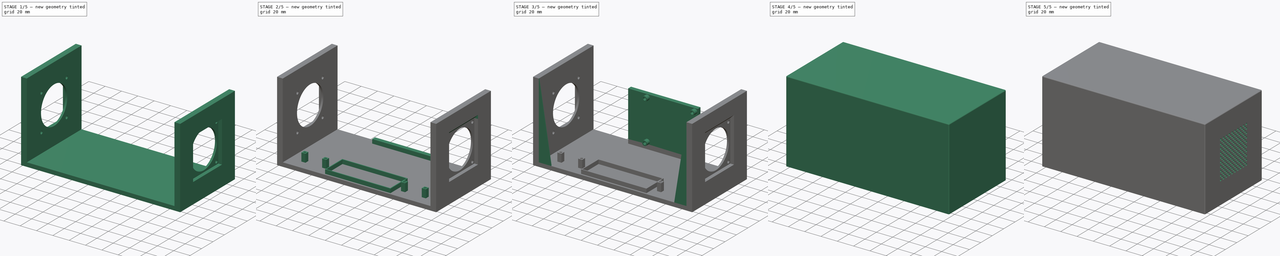
[diagram: build sequence overview — one tinted view per stage of 5, left to right]
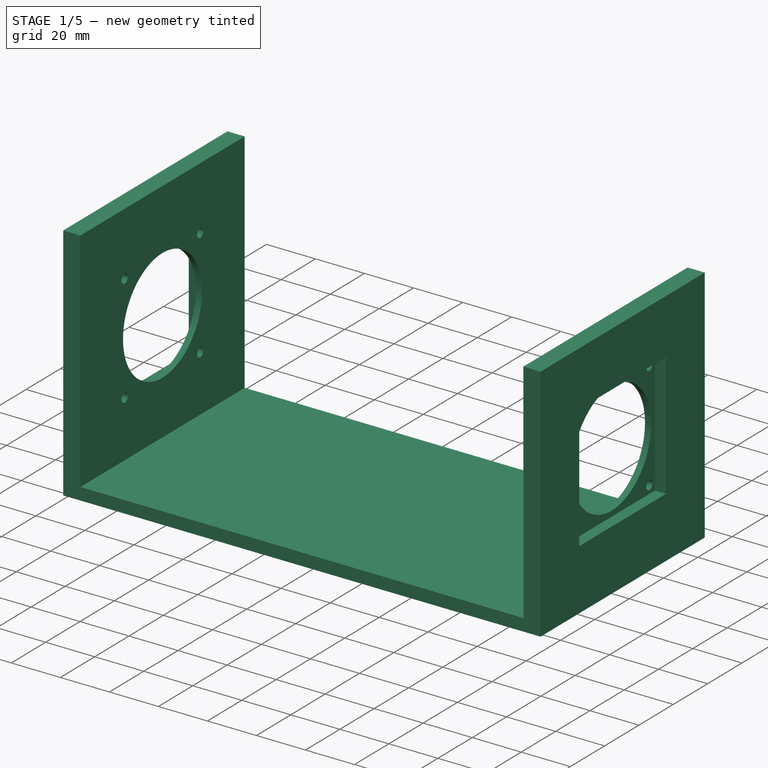
[diagram: stage 1 of 5 — iso view after this stage's code; geometry added in this stage tinted green]
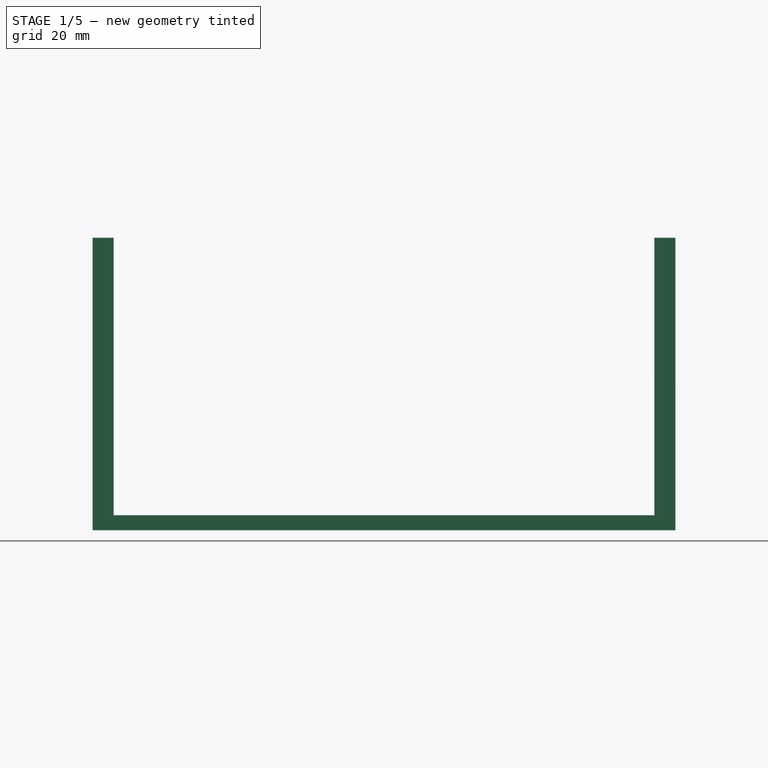
[diagram: stage 1 of 5 — front view after this stage's code; geometry added in this stage tinted green]
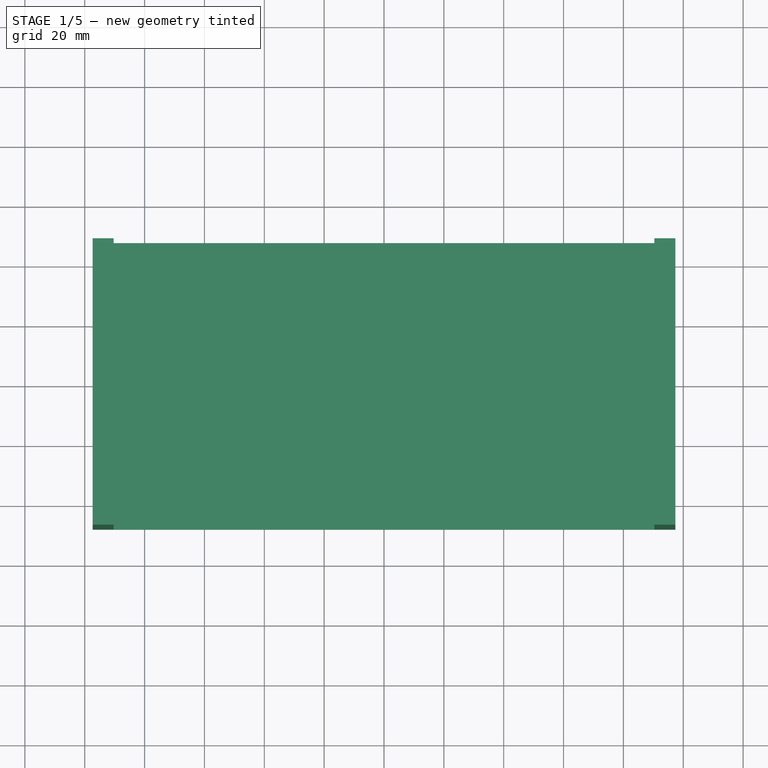
[diagram: stage 1 of 5 — top view after this stage's code; geometry added in this stage tinted green]
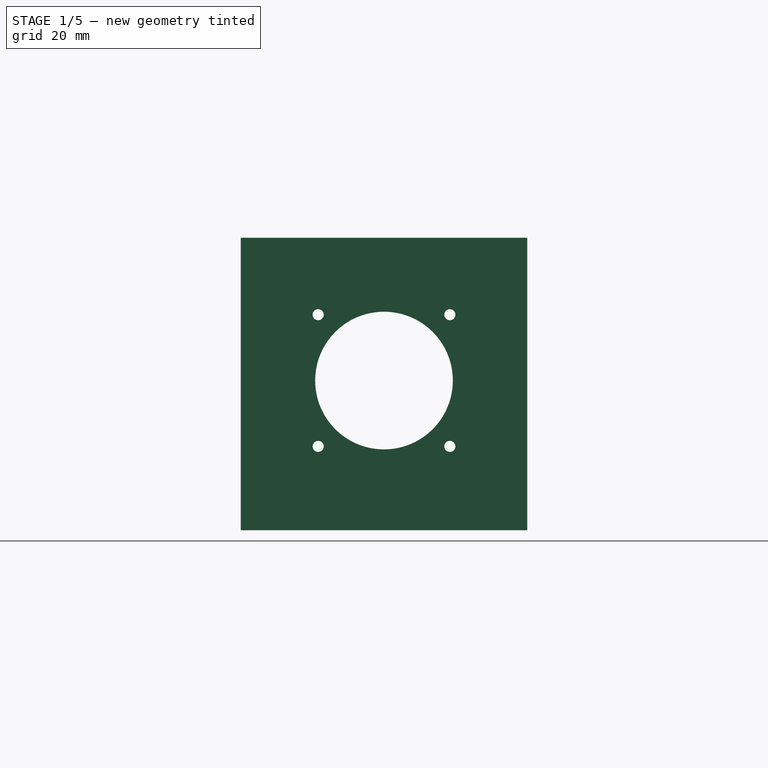
[diagram: stage 1 of 5 — right view after this stage's code; geometry added in this stage tinted green]
FCSTD DOCUMENT  (FreeCAD 0.18.4R)
Label: top-down-case
License: All rights reserved
LicenseURL: http://en.wikipedia.org/wiki/All_rights_reserved
objects: Sketcher::SketchObject×23, PartDesign::Pad×11, PartDesign::Pocket×10, PartDesign::Fillet×2, PartDesign::Chamfer×2, PartDesign::Body×2, App::Part×2, PartDesign::Hole×2
note: 75 computed .brp shape members not serialized (recipe doc carries the construction recipe); baked Part::Feature solids carry a one-line shape summary decoded from their .brp

FEATURE [Sketcher::SketchObject] Sketch002
  MapMode = 5
  Support = -> [XY_Plane003]
  sketch-geometry (4):
    g0: LineSegment StartX=-97.35 StartY=47.85 StartZ=0 EndX=97.35 EndY=47.85 EndZ=0
    g1: LineSegment StartX=97.35 StartY=47.85 StartZ=0 EndX=97.35 EndY=-47.85 EndZ=0
    g2: LineSegment StartX=97.35 StartY=-47.85 StartZ=0 EndX=-97.35 EndY=-47.85 EndZ=0
    g3: LineSegment StartX=-97.35 StartY=-47.85 StartZ=0 EndX=-97.35 EndY=47.85 EndZ=0
  constraints (11):
    c: Coincident(g0,g1)
    c: Coincident(g1,g2)
    c: Coincident(g2,g3)
    c: Coincident(g3,g0)
    c: Horizontal(g0)
    c: Horizontal(g2)
    c: Vertical(g1)
    c: Vertical(g3)
    c: Symmetric(g0,g1,g-1)
    c: DistanceX(g0,g0) = 194.7
    c: DistanceY(g1,g1) = 95.7
FEATURE [PartDesign::Pad] Pad001
  Length = 5
  Length2 = 100
  Profile = -> Sketch002
  Type = 0
FEATURE [Sketcher::SketchObject] Sketch003
  MapMode = 5
  Placement = pos=(97.35,0,0) rot=(0.57735,0.57735,0.57735;2.0944rad)
  Support = -> [Pad001]
  sketch-geometry (9):
    g0: LineSegment StartX=-47.85 StartY=97.7 StartZ=0 EndX=-47.85 EndY=0 EndZ=0
    g1: LineSegment StartX=-47.85 StartY=0 StartZ=0 EndX=47.85 EndY=0 EndZ=0
    g2: LineSegment StartX=47.85 StartY=0 StartZ=0 EndX=47.85 EndY=97.7 EndZ=0
    g3: LineSegment StartX=47.85 StartY=97.7 StartZ=0 EndX=-47.85 EndY=97.7 EndZ=0
    g4: Circle CenterX=0 CenterY=50 CenterZ=0 NormalX=0 NormalY=0 NormalZ=1 AngleXU=0 Radius=23
    g5: Circle CenterX=-22 CenterY=72 CenterZ=0 NormalX=0 NormalY=0 NormalZ=1 AngleXU=0 Radius=1.85
    g6: Circle CenterX=22 CenterY=72 CenterZ=0 NormalX=0 NormalY=0 NormalZ=1 AngleXU=0 Radius=1.85
    g7: Circle CenterX=-22 CenterY=28 CenterZ=0 NormalX=0 NormalY=0 NormalZ=1 AngleXU=0 Radius=1.85
    g8: Circle CenterX=22 CenterY=28 CenterZ=0 NormalX=0 NormalY=0 NormalZ=1 AngleXU=0 Radius=1.85
  constraints (26):
    c: Coincident(g0,g1)
    c: Coincident(g1,g2)
    c: Coincident(g2,g3)
    c: Vertical(g2)
    c: Vertical(g0)
    c: Horizontal(g3)
    c: Horizontal(g1)
    c: DistanceY(g2,g2) = 97.7
    c: DistanceX(g1,g1) = 95.7
    c: Horizontal(g1,g-1)
    c: Coincident(g0,g3)
    c: Vertical(g4,g-1)
    c: Diameter(g4) = 46
    c: DistanceY(g-1,g4) = 50
    c: DistanceX(g5,g6) = 44
    c: Equal(g6,g5)
    c: Equal(g5,g7)
    c: Equal(g7,g8)
    c: Diameter(g6) = 3.7
    c: DistanceY(g7,g5) = 44
    c: Horizontal(g7,g8)
    c: Vertical(g8,g6)
    c: Vertical(g5,g7)
    c: Horizontal(g5,g6)
    c: Symmetric(g5,g8,g4)
    c: DistanceX(g-1,g1) = 47.85
FEATURE [PartDesign::Pad] Pad002
  BaseFeature = -> Pad001
  Length = 7
  Length2 = 100
  Profile = -> Sketch003
  Reversed = true
  Type = 0
FEATURE [Sketcher::SketchObject] Sketch004
  MapMode = 5
  Placement = pos=(97.35,0,0) rot=(0.57735,0.57735,0.57735;2.0944rad)
  Support = -> [Pad002]
  sketch-geometry (4):
    g0: LineSegment StartX=-25.25 StartY=75.25 StartZ=0 EndX=25.25 EndY=75.25 EndZ=0
    g1: LineSegment StartX=25.25 StartY=75.25 StartZ=0 EndX=25.25 EndY=24.75 EndZ=0
    g2: LineSegment StartX=25.25 StartY=24.75 StartZ=0 EndX=-25.25 EndY=24.75 EndZ=0
    g3: LineSegment StartX=-25.25 StartY=24.75 StartZ=0 EndX=-25.25 EndY=75.25 EndZ=0
  constraints (12):
    c: Coincident(g0,g1)
    c: Coincident(g1,g2)
    c: Coincident(g2,g3)
    c: Coincident(g3,g0)
    c: Horizontal(g0)
    c: Horizontal(g2)
    c: Vertical(g1)
    c: Vertical(g3)
    c: DistanceX(g0,g0) = 50.5
    c: DistanceX(g-1,g1) = 25.25
    c: DistanceY(g-1,g2) = 24.75
    c: DistanceY(g3,g3) = 50.5
FEATURE [PartDesign::Pocket] Pocket001
  BaseFeature = -> Pad002
  Length = 4.5
  Length2 = 100
  Profile = -> Sketch004
  Type = 0
FEATURE [Sketcher::SketchObject] Sketch005
  MapMode = 5
  Placement = pos=(-97.35,0,0) rot=(0.57735,-0.57735,-0.57735;2.0944rad)
  Support = -> [Pocket001]
  sketch-geometry (9):
    g0: LineSegment StartX=-47.85 StartY=97.7 StartZ=0 EndX=47.85 EndY=97.7 EndZ=0
    g1: LineSegment StartX=47.85 StartY=97.7 StartZ=0 EndX=47.85 EndY=0 EndZ=0
    g2: LineSegment StartX=47.85 StartY=0 StartZ=0 EndX=-47.85 EndY=0 EndZ=0
    g3: LineSegment StartX=-47.85 StartY=0 StartZ=0 EndX=-47.85 EndY=97.7 EndZ=0
    g4: Circle CenterX=0 CenterY=50 CenterZ=0 NormalX=0 NormalY=0 NormalZ=1 AngleXU=0 Radius=23
    g5: Circle CenterX=-22 CenterY=72 CenterZ=0 NormalX=0 NormalY=0 NormalZ=1 AngleXU=0 Radius=1.85
    g6: Circle CenterX=22 CenterY=72 CenterZ=0 NormalX=0 NormalY=0 NormalZ=1 AngleXU=0 Radius=1.85
    g7: Circle CenterX=22 CenterY=28 CenterZ=0 NormalX=0 NormalY=0 NormalZ=1 AngleXU=0 Radius=1.85
    g8: Circle CenterX=-22 CenterY=28 CenterZ=0 NormalX=0 NormalY=0 NormalZ=1 AngleXU=0 Radius=1.85
  constraints (26):
    c: Coincident(g0,g1)
    c: Coincident(g1,g2)
    c: Coincident(g2,g3)
    c: Coincident(g3,g0)
    c: Horizontal(g0)
    c: Horizontal(g2)
    c: Vertical(g1)
    c: Vertical(g3)
    c: Diameter(g7) = 3.7
    c: Equal(g6,g5)
    c: Equal(g5,g8)
    c: Equal(g8,g7)
    c: Vertical(g5,g8)
    c: Vertical(g6,g7)
    c: Horizontal(g7,g8)
    c: Horizontal(g5,g6)
    c: DistanceX(g5,g6) = 44
    c: DistanceY(g8,g5) = 44
    c: Symmetric(g5,g7,g4)
    c: Diameter(g4) = 46
    c: Vertical(g4,g-1)
    c: DistanceY(g-1,g4) = 50
    c: DistanceY(g1,g1) = 97.7
    c: DistanceX(g0,g0) = 95.7
    c: DistanceX(g2,g-1) = 47.85
    c: Horizontal(g-1,g1)
FEATURE [PartDesign::Pad] Pad003
  BaseFeature = -> Pocket001
  Length = 7
  Length2 = 100
  Profile = -> Sketch005
  Reversed = true
  Type = 0
FEATURE [Sketcher::SketchObject] Sketch006
  MapMode = 5
  Placement = pos=(-97.35,0,0) rot=(0.57735,-0.57735,-0.57735;2.0944rad)
  Support = -> [Pad003]
  sketch-geometry (4):
    g0: LineSegment StartX=-25.25 StartY=75.25 StartZ=0 EndX=25.25 EndY=75.25 EndZ=0
    g1: LineSegment StartX=25.25 StartY=75.25 StartZ=0 EndX=25.25 EndY=24.75 EndZ=0
    g2: LineSegment StartX=25.25 StartY=24.75 StartZ=0 EndX=-25.25 EndY=24.75 EndZ=0
    g3: LineSegment StartX=-25.25 StartY=24.75 StartZ=0 EndX=-25.25 EndY=75.25 EndZ=0
  constraints (12):
    c: Coincident(g0,g1)
    c: Coincident(g1,g2)
    c: Coincident(g2,g3)
    c: Coincident(g3,g0)
    c: Horizontal(g0)
    c: Horizontal(g2)
    c: Vertical(g1)
    c: Vertical(g3)
    c: DistanceX(g0,g0) = 50.5
    c: DistanceY(g1,g1) = 50.5
    c: DistanceY(g-1,g1) = 24.75
    c: DistanceX(g2,g-1) = 25.25
FEATURE [PartDesign::Pocket] Pocket002
  BaseFeature = -> Pad003
  Length = 4.5
  Length2 = 100
  Profile = -> Sketch006
  Type = 0
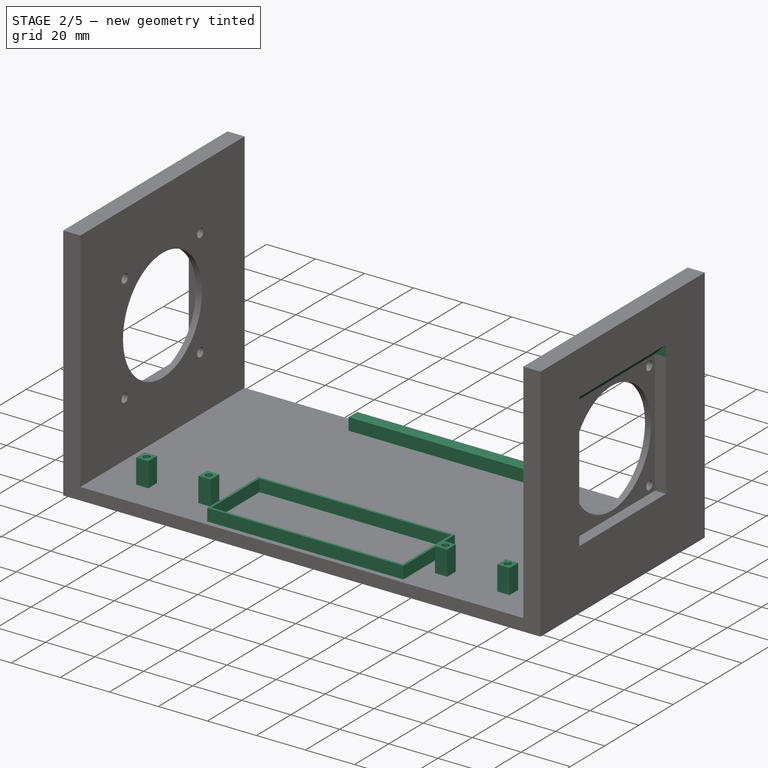
[diagram: stage 2 of 5 — iso view after this stage's code; geometry added in this stage tinted green]
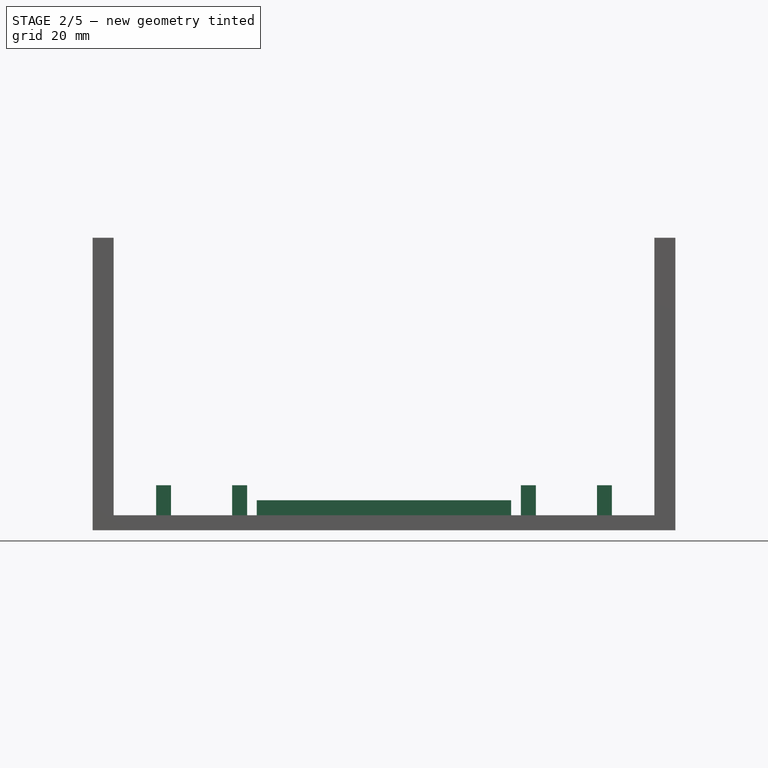
[diagram: stage 2 of 5 — front view after this stage's code; geometry added in this stage tinted green]
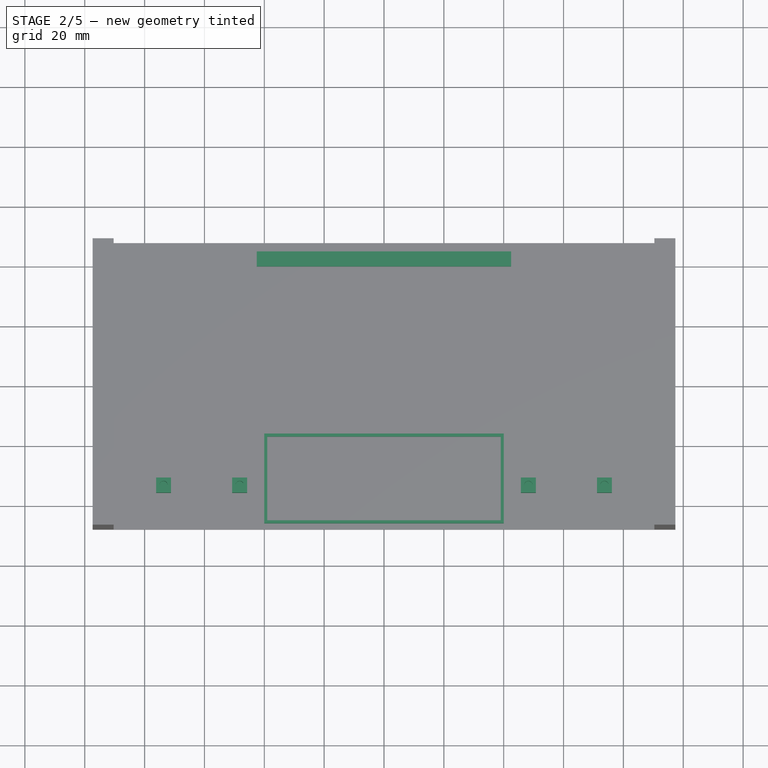
[diagram: stage 2 of 5 — top view after this stage's code; geometry added in this stage tinted green]
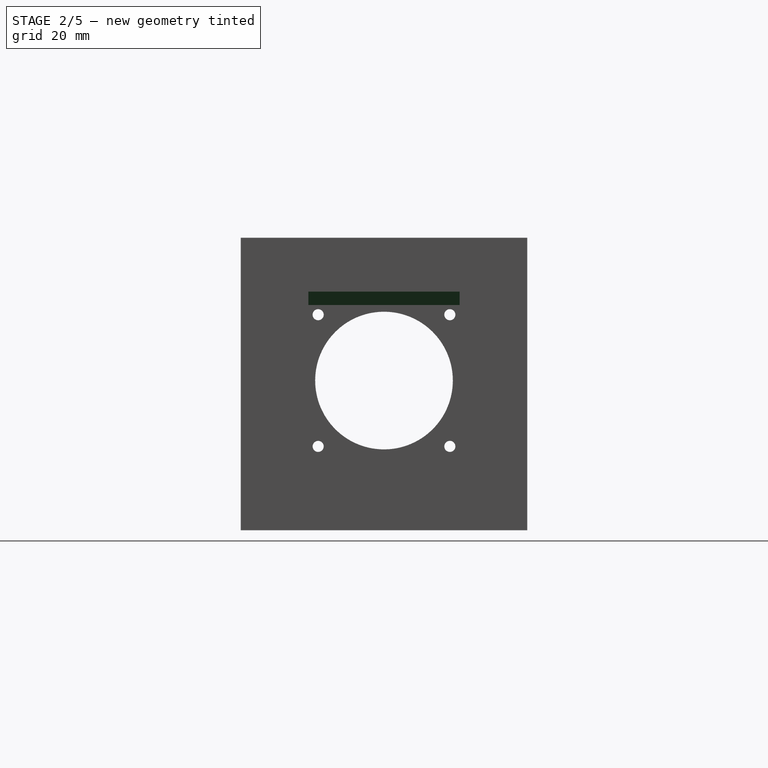
[diagram: stage 2 of 5 — right view after this stage's code; geometry added in this stage tinted green]
FEATURE [PartDesign::Chamfer] Chamfer
  Base = -> Pocket002 [Edge28]
  BaseFeature = -> Pocket002
  Size = 4.45
FEATURE [PartDesign::Chamfer] Chamfer001
  Base = -> Chamfer [Edge95]
  BaseFeature = -> Chamfer
  Size = 4.45
FEATURE [PartDesign::Body] Body
  Group = -> [Sketch,Pad,Sketch001,Pocket,Fillet,Sketch007,Pocket003,Sketch008,Pocket004,Sketch009,Pad004,Sketch010,Pocket005,Sketch011,Pocket006]
  Origin = -> Origin001
  Tip = -> Pocket006
FEATURE [App::Part] Part  label="top-cover"
  Group = -> [Body]
  Origin = -> Origin
FEATURE [Sketcher::SketchObject] Sketch012
  MapMode = 5
  Placement = pos=(0,0,5) rot=(0,0,1;0rad)
  Support = -> [Chamfer001]
  sketch-geometry (8):
    g0: LineSegment StartX=-42.5 StartY=45 StartZ=0 EndX=42.5 EndY=45 EndZ=0
    g1: LineSegment StartX=42.5 StartY=45 StartZ=0 EndX=42.5 EndY=40 EndZ=0
    g2: LineSegment StartX=42.5 StartY=40 StartZ=0 EndX=-42.5 EndY=40 EndZ=0
    g3: LineSegment StartX=-42.5 StartY=40 StartZ=0 EndX=-42.5 EndY=45 EndZ=0
    g4: LineSegment StartX=-40 StartY=-15.85 StartZ=0 EndX=40 EndY=-15.85 EndZ=0
    g5: LineSegment StartX=40 StartY=-15.85 StartZ=0 EndX=40 EndY=-45.85 EndZ=0
    g6: LineSegment StartX=40 StartY=-45.85 StartZ=0 EndX=-40 EndY=-45.85 EndZ=0
    g7: LineSegment StartX=-40 StartY=-45.85 StartZ=0 EndX=-40 EndY=-15.85 EndZ=0
  constraints (24):
    c: Coincident(g0,g1)
    c: Coincident(g1,g2)
    c: Coincident(g2,g3)
    c: Coincident(g3,g0)
    c: Horizontal(g0)
    c: Horizontal(g2)
    c: Vertical(g1)
    c: Vertical(g3)
    c: DistanceY(g1,g0) = 5
    c: DistanceX(g2,g1) = 85
    c: DistanceX(g0,g-1) = 42.5
    c: DistanceY(g-1,g0) = 45
    c: Coincident(g4,g5)
    c: Coincident(g5,g6)
    c: Coincident(g6,g7)
    c: Coincident(g7,g4)
    c: Horizontal(g4)
    c: Horizontal(g6)
    c: Vertical(g5)
    c: Vertical(g7)
    c: DistanceX(g6,g5) = 80
    c: DistanceY(g5,g4) = 30
    c: DistanceY(g6,g-1) = 45.85
    c: DistanceX(g4,g-1) = 40
FEATURE [PartDesign::Pad] Pad005
  BaseFeature = -> Chamfer001
  Length = 5
  Length2 = 100
  Profile = -> Sketch012
  Type = 0
FEATURE [Sketcher::SketchObject] Sketch013
  MapMode = 5
  Placement = pos=(0,0,10) rot=(0,0,1;0rad)
  Support = -> [Pad005]
  sketch-geometry (4):
    g0: LineSegment StartX=-39 StartY=-16.85 StartZ=0 EndX=39 EndY=-16.85 EndZ=0
    g1: LineSegment StartX=39 StartY=-16.85 StartZ=0 EndX=39 EndY=-44.85 EndZ=0
    g2: LineSegment StartX=39 StartY=-44.85 StartZ=0 EndX=-39 EndY=-44.85 EndZ=0
    g3: LineSegment StartX=-39 StartY=-44.85 StartZ=0 EndX=-39 EndY=-16.85 EndZ=0
  constraints (12):
    c: Coincident(g0,g1)
    c: Coincident(g1,g2)
    c: Coincident(g2,g3)
    c: Coincident(g3,g0)
    c: Horizontal(g0)
    c: Horizontal(g2)
    c: Vertical(g1)
    c: Vertical(g3)
    c: DistanceX(g0,g0) = 78
    c: DistanceY(g1,g0) = 28
    c: DistanceY(g1,g-1) = 44.85
    c: DistanceX(g0,g-1) = 39
FEATURE [PartDesign::Pocket] Pocket007
  BaseFeature = -> Pad005
  Length = 5
  Length2 = 100
  Profile = -> Sketch013
  Type = 0
FEATURE [Sketcher::SketchObject] Sketch014
  MapMode = 5
  Placement = pos=(0,0,5) rot=(0,0,1;0rad)
  Support = -> [Pocket007]
  sketch-geometry (26):
    g0: LineSegment [constr] StartX=-70 StartY=20 StartZ=0 EndX=-70 EndY=-20 EndZ=0
    g1: LineSegment [constr] StartX=-81.91 StartY=-20.45 StartZ=0 EndX=-40 EndY=-20.45 EndZ=0
    g2: LineSegment [constr] StartX=-40 StartY=-20.45 StartZ=0 EndX=-40 EndY=-45.85 EndZ=0
    g3: LineSegment [constr] StartX=-40 StartY=-45.85 StartZ=0 EndX=-81.91 EndY=-45.85 EndZ=0
    g4: LineSegment [constr] StartX=-81.91 StartY=-45.85 StartZ=0 EndX=-81.91 EndY=-20.45 EndZ=0
    g5: LineSegment [constr] StartX=-83 StartY=-20 StartZ=0 EndX=-70 EndY=-20 EndZ=0
    g6: LineSegment [constr] StartX=40 StartY=-20.45 StartZ=0 EndX=81.91 EndY=-20.45 EndZ=0
    g7: LineSegment [constr] StartX=81.91 StartY=-20.45 StartZ=0 EndX=81.91 EndY=-45.85 EndZ=0
    g8: LineSegment [constr] StartX=81.91 StartY=-45.85 StartZ=0 EndX=40 EndY=-45.85 EndZ=0
    g9: LineSegment [constr] StartX=40 StartY=-45.85 StartZ=0 EndX=40 EndY=-20.45 EndZ=0
    g10: LineSegment StartX=-76.16 StartY=-30.65 StartZ=0 EndX=-71.16 EndY=-30.65 EndZ=0
    g11: LineSegment StartX=-71.16 StartY=-30.65 StartZ=0 EndX=-71.16 EndY=-35.65 EndZ=0
    g12: LineSegment StartX=-71.16 StartY=-35.65 StartZ=0 EndX=-76.16 EndY=-35.65 EndZ=0
    g13: LineSegment StartX=-76.16 StartY=-35.65 StartZ=0 EndX=-76.16 EndY=-30.65 EndZ=0
    g14: LineSegment StartX=-50.75 StartY=-30.65 StartZ=0 EndX=-45.75 EndY=-30.65 EndZ=0
    g15: LineSegment StartX=-45.75 StartY=-30.65 StartZ=0 EndX=-45.75 EndY=-35.65 EndZ=0
    g16: LineSegment StartX=-45.75 StartY=-35.65 StartZ=0 EndX=-50.75 EndY=-35.65 EndZ=0
    g17: LineSegment StartX=-50.75 StartY=-35.65 StartZ=0 EndX=-50.75 EndY=-30.65 EndZ=0
    g18: LineSegment StartX=45.75 StartY=-30.65 StartZ=0 EndX=50.75 EndY=-30.65 EndZ=0
    g19: LineSegment StartX=50.75 StartY=-30.65 StartZ=0 EndX=50.75 EndY=-35.65 EndZ=0
    g20: LineSegment StartX=50.75 StartY=-35.65 StartZ=0 EndX=45.75 EndY=-35.65 EndZ=0
    g21: LineSegment StartX=45.75 StartY=-35.65 StartZ=0 EndX=45.75 EndY=-30.65 EndZ=0
    g22: LineSegment StartX=71.16 StartY=-30.65 StartZ=0 EndX=76.16 EndY=-30.65 EndZ=0
    g23: LineSegment StartX=76.16 StartY=-30.65 StartZ=0 EndX=76.16 EndY=-35.65 EndZ=0
    g24: LineSegment StartX=76.16 StartY=-35.65 StartZ=0 EndX=71.16 EndY=-35.65 EndZ=0
    g25: LineSegment StartX=71.16 StartY=-35.65 StartZ=0 EndX=71.16 EndY=-30.65 EndZ=0
  constraints (79):
    c: Vertical(g0)
    c: DistanceX(g0,g-1) = 70
    c: Coincident(g1,g2)
    c: Coincident(g2,g3)
    c: Coincident(g3,g4)
    c: Coincident(g4,g1)
    c: Horizontal(g1)
    c: Horizontal(g3)
    c: Vertical(g2)
    c: Vertical(g4)
    c: DistanceX(g3,g3) = 41.91
    c: DistanceY(g2,g2) = 25.4
    c: Horizontal(g5)
    c: DistanceY(g5,g-1) = 20
    c: Coincident(g5,g0)
    c: DistanceX(g1,g-1) = 40
    c: DistanceY(g2,g-1) = 45.85
    c: DistanceY(g0,g0) = 40
    c: DistanceX(g5,g5) = 13
    c: Coincident(g6,g7)
    c: Coincident(g7,g8)
    c: Coincident(g8,g9)
    c: Coincident(g9,g6)
    c: Horizontal(g6)
    c: Horizontal(g8)
    c: Vertical(g7)
    c: Vertical(g9)
    c: DistanceX(g6,g6) = 41.91
    c: DistanceY(g7,g7) = 25.4
    c: DistanceX(g-1,g6) = 40
    c: Coincident(g10,g11)
    c: Coincident(g11,g12)
    c: Coincident(g12,g13)
    c: Coincident(g13,g10)
    c: Horizontal(g10)
    c: Horizontal(g12)
    c: Vertical(g11)
    c: Vertical(g13)
    c: DistanceY(g11,g11) = 5
    c: DistanceX(g12,g12) = 5
    c: DistanceX(g3,g12) = 5.75
    c: Coincident(g14,g15)
    c: Coincident(g15,g16)
    c: Coincident(g16,g17)
    c: Coincident(g17,g14)
    c: Horizontal(g14)
    c: Horizontal(g16)
    c: Vertical(g15)
    c: Vertical(g17)
    c: DistanceX(g14,g1) = 5.75
    c: DistanceX(g14,g14) = 5
    c: DistanceY(g15,g15) = 5
    c: DistanceY(g2,g15) = 10.2
    c: DistanceY(g3,g12) = 10.2
    c: Coincident(g18,g19)
    c: Coincident(g19,g20)
    c: Coincident(g20,g21)
    c: Coincident(g21,g18)
    c: Horizontal(g18)
    c: Horizontal(g20)
    c: Vertical(g19)
    c: Vertical(g21)
    c: Coincident(g22,g23)
    c: Coincident(g23,g24)
    c: Coincident(g24,g25)
    c: Coincident(g25,g22)
    c: Horizontal(g22)
    c: Horizontal(g24)
    c: Vertical(g23)
    c: Vertical(g25)
    c: DistanceX(g20,g20) = 5
    c: DistanceX(g24,g24) = 5
    c: DistanceY(g23,g23) = 5
    c: DistanceY(g19,g19) = 5
    c: DistanceY(g7,g23) = 10.2
    c: DistanceY(g7,g19) = 10.2
    c: DistanceX(g8,g18) = 5.75
    c: DistanceX(g22,g6) = 5.75
    c: Horizontal(g8,g2)
FEATURE [PartDesign::Pad] Pad006
  BaseFeature = -> Pocket007
  Length = 10
  Length2 = 100
  Profile = -> Sketch014
  Type = 0
FEATURE [Sketcher::SketchObject] Sketch015
  MapMode = 5
  Placement = pos=(0,0,15) rot=(0,0,1;0rad)
  Support = -> [Pad006]
  sketch-geometry (4):
    g0: Circle CenterX=-73.66 CenterY=-33.15 CenterZ=0 NormalX=0 NormalY=0 NormalZ=1 AngleXU=0 Radius=1.375
    g1: Circle CenterX=-48.25 CenterY=-33.15 CenterZ=0 NormalX=0 NormalY=0 NormalZ=1 AngleXU=0 Radius=1.375
    g2: Circle CenterX=48.25 CenterY=-33.15 CenterZ=0 NormalX=0 NormalY=0 NormalZ=1 AngleXU=0 Radius=1.375
    g3: Circle CenterX=73.66 CenterY=-33.15 CenterZ=0 NormalX=0 NormalY=0 NormalZ=1 AngleXU=0 Radius=1.375
  constraints (12):
    c: Diameter(g0) = 2.75
    c: Diameter(g1) = 2.75
    c: Diameter(g2) = 2.75
    c: Diameter(g3) = 2.75
    c: DistanceX(g0,g-1) = 73.66
    c: DistanceX(g1,g-1) = 48.25
    c: DistanceX(g-1,g2) = 48.25
    c: DistanceX(g-1,g3) = 73.66
    c: DistanceY(g1,g-1) = 33.15
    c: Horizontal(g0,g1)
    c: Horizontal(g1,g2)
    c: Horizontal(g2,g3)
FEATURE [PartDesign::Pocket] Pocket008
  BaseFeature = -> Pad006
  Length = 6
  Length2 = 100
  Profile = -> Sketch015
  Type = 0
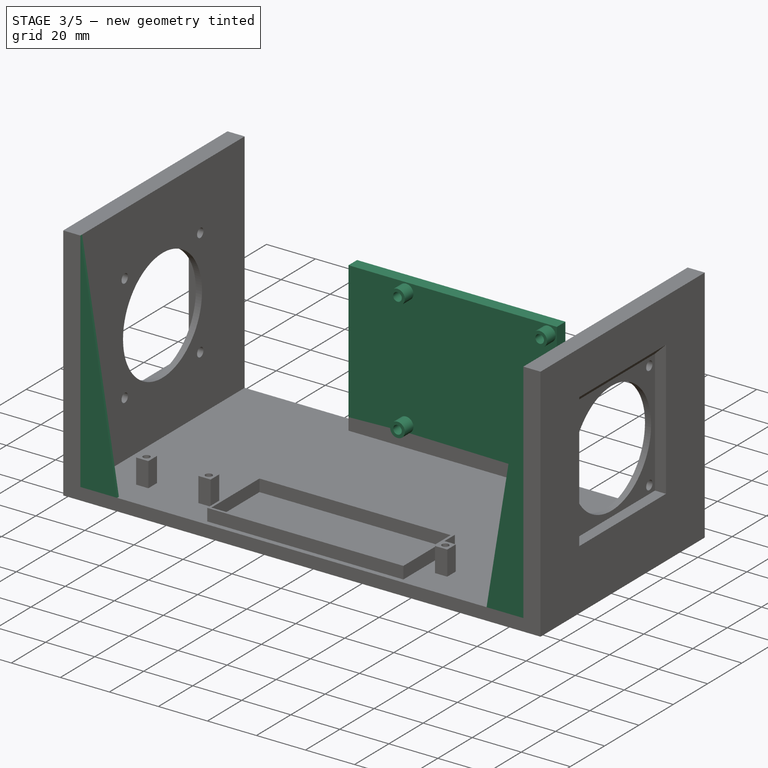
[diagram: stage 3 of 5 — iso view after this stage's code; geometry added in this stage tinted green]
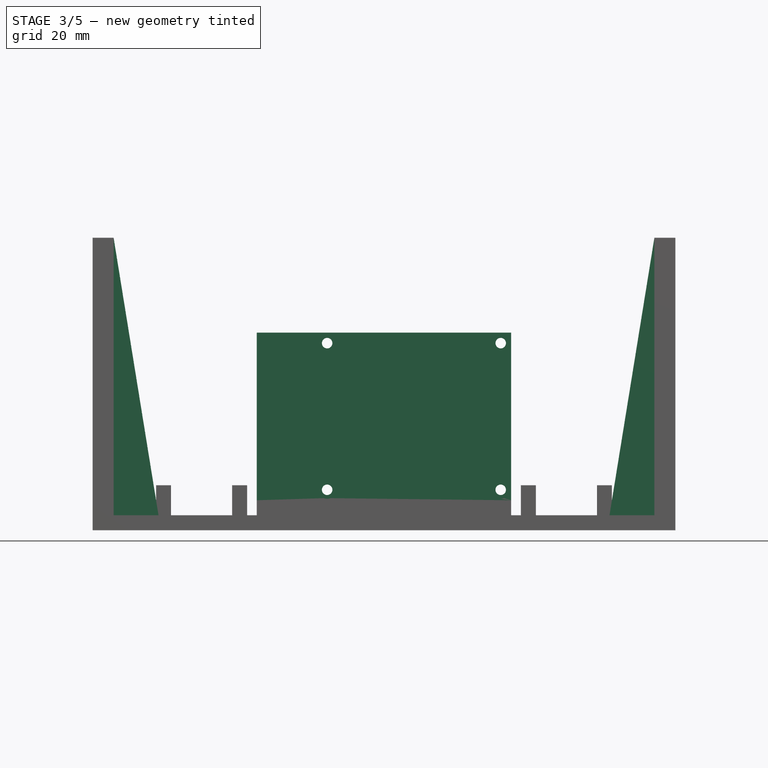
[diagram: stage 3 of 5 — front view after this stage's code; geometry added in this stage tinted green]
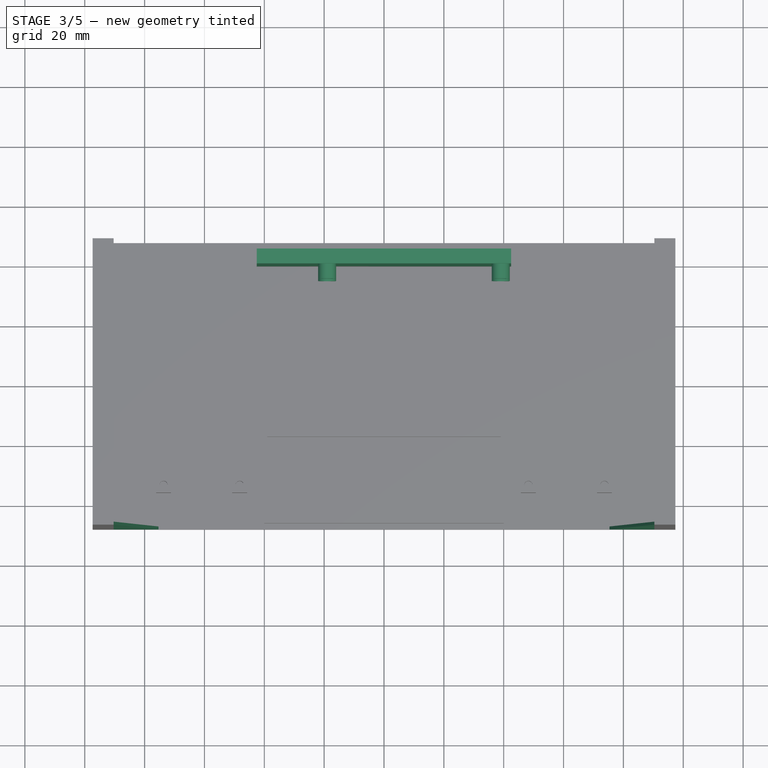
[diagram: stage 3 of 5 — top view after this stage's code; geometry added in this stage tinted green]
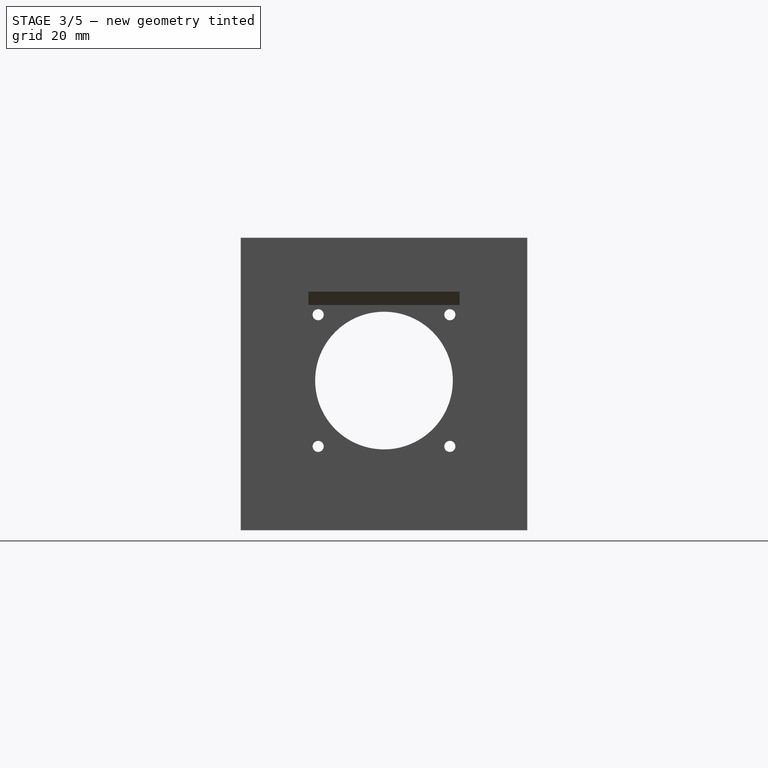
[diagram: stage 3 of 5 — right view after this stage's code; geometry added in this stage tinted green]
FEATURE [Sketcher::SketchObject] Sketch017
  MapMode = 5
  Placement = pos=(0,0,10) rot=(0,0,1;0rad)
  Support = -> [Pocket008]
  sketch-geometry (4):
    g0: LineSegment StartX=-42.5 StartY=45 StartZ=0 EndX=42.5 EndY=45 EndZ=0
    g1: LineSegment StartX=42.5 StartY=45 StartZ=0 EndX=42.5 EndY=40 EndZ=0
    g2: LineSegment StartX=42.5 StartY=40 StartZ=0 EndX=-42.5 EndY=40 EndZ=0
    g3: LineSegment StartX=-42.5 StartY=40 StartZ=0 EndX=-42.5 EndY=45 EndZ=0
  constraints (12):
    c: Coincident(g0,g1)
    c: Coincident(g1,g2)
    c: Coincident(g2,g3)
    c: Coincident(g3,g0)
    c: Horizontal(g0)
    c: Horizontal(g2)
    c: Vertical(g1)
    c: Vertical(g3)
    c: DistanceX(g2,g2) = 85
    c: DistanceX(g2,g-1) = 42.5
    c: DistanceY(g1,g1) = 5
    c: DistanceY(g-1,g0) = 45
FEATURE [PartDesign::Pad] Pad007
  BaseFeature = -> Pocket008
  Length = 56
  Length2 = 100
  Profile = -> Sketch017
  Type = 0
FEATURE [Sketcher::SketchObject] Sketch018
  MapMode = 5
  Placement = pos=(0,40,0) rot=(1,0,0;1.5708rad)
  Support = -> [Pad007]
  sketch-geometry (4):
    g0: Circle CenterX=-19 CenterY=13.5 CenterZ=0 NormalX=0 NormalY=0 NormalZ=1 AngleXU=0 Radius=3
    g1: Circle CenterX=39 CenterY=13.5 CenterZ=0 NormalX=0 NormalY=0 NormalZ=1 AngleXU=0 Radius=3
    g2: Circle CenterX=-19 CenterY=62.5 CenterZ=0 NormalX=0 NormalY=0 NormalZ=1 AngleXU=0 Radius=3
    g3: Circle CenterX=39 CenterY=62.5 CenterZ=0 NormalX=0 NormalY=0 NormalZ=1 AngleXU=0 Radius=3
  constraints (12):
    c: Diameter(g0) = 6
    c: DistanceY(g-1,g0) = 13.5
    c: Diameter(g1) = 6
    c: DistanceX(g-1,g1) = 39
    c: DistanceY(g-1,g1) = 13.5
    c: DistanceX(g0,g1) = 58
    c: Diameter(g2) = 6
    c: Diameter(g3) = 6
    c: DistanceY(g0,g2) = 49
    c: DistanceY(g1,g3) = 49
    c: DistanceX(g-1,g3) = 39
    c: DistanceX(g2,g3) = 58
FEATURE [PartDesign::Pad] Pad008
  BaseFeature = -> Pad007
  Length = 5
  Length2 = 100
  Profile = -> Sketch018
  Type = 0
FEATURE [Sketcher::SketchObject] Sketch019
  MapMode = 5
  Placement = pos=(2.76e-14,35,-4.79e-14) rot=(1,0,0;1.5708rad)
  Support = -> [Pad008]
  sketch-geometry (4):
    g0: Circle CenterX=-19 CenterY=62.5 CenterZ=0 NormalX=0 NormalY=0 NormalZ=1 AngleXU=0 Radius=1.75
    g1: Circle CenterX=39 CenterY=62.5 CenterZ=0 NormalX=0 NormalY=0 NormalZ=1 AngleXU=0 Radius=1.75
    g2: Circle CenterX=39 CenterY=13.5 CenterZ=0 NormalX=0 NormalY=0 NormalZ=1 AngleXU=0 Radius=1.75
    g3: Circle CenterX=-19 CenterY=13.5 CenterZ=0 NormalX=0 NormalY=0 NormalZ=1 AngleXU=0 Radius=1.75
  constraints (12):
    c: Diameter(g0) = 3.5
    c: Diameter(g3) = 3.5
    c: Diameter(g1) = 3.5
    c: Diameter(g2) = 3.5
    c: DistanceX(g-1,g2) = 39
    c: DistanceX(g-1,g1) = 39
    c: DistanceX(g0,g1) = 58
    c: DistanceX(g3,g2) = 58
    c: DistanceY(g-1,g3) = 13.5
    c: DistanceY(g-1,g2) = 13.5
    c: DistanceY(g3,g0) = 49
    c: DistanceY(g2,g1) = 49
FEATURE [Sketcher::SketchObject] Sketch020
  MapMode = 5
  Placement = pos=(0,-47.85,0) rot=(1,0,0;1.5708rad)
  Support = -> [Pad008]
  sketch-geometry (8):
    g0: LineSegment StartX=-90.35 StartY=97.7 StartZ=0 EndX=-75.35 EndY=5 EndZ=0
    g1: LineSegment StartX=-75.35 StartY=5 StartZ=0 EndX=-91.35 EndY=5 EndZ=0
    g2: LineSegment StartX=-91.35 StartY=5 StartZ=0 EndX=-91.35 EndY=97.7 EndZ=0
    g3: LineSegment StartX=91.35 StartY=97.7 StartZ=0 EndX=91.35 EndY=5 EndZ=0
    g4: LineSegment StartX=91.35 StartY=5 StartZ=0 EndX=75.35 EndY=5 EndZ=0
    g5: LineSegment StartX=75.35 StartY=5 StartZ=0 EndX=90.35 EndY=97.7 EndZ=0
    g6: LineSegment StartX=-91.35 StartY=97.7 StartZ=0 EndX=-90.35 EndY=97.7 EndZ=0
    g7: LineSegment StartX=90.35 StartY=97.7 StartZ=0 EndX=91.35 EndY=97.7 EndZ=0
  constraints (24):
    c: Coincident(g0,g1)
    c: Coincident(g1,g2)
    c: Vertical(g2)
    c: Horizontal(g1)
    c: DistanceX(g1,g1) = 16
    c: DistanceY(g2,g2) = 92.7
    c: DistanceX(g1,g-1) = 91.35
    c: DistanceY(g-1,g1) = 5
    c: Coincident(g3,g4)
    c: Coincident(g4,g5)
    c: Vertical(g3)
    c: Horizontal(g4)
    c: DistanceY(g-1,g4) = 5
    c: DistanceX(g-1,g3) = 91.35
    c: DistanceX(g4,g4) = 16
    c: DistanceY(g3,g3) = 92.7
    c: Coincident(g0,g6)
    c: Coincident(g2,g6)
    c: Horizontal(g6)
    c: DistanceX(g6,g6) = 1
    c: Horizontal(g7)
    c: Coincident(g3,g7)
    c: Coincident(g5,g7)
    c: DistanceX(g7,g7) = 1
FEATURE [PartDesign::Hole] Hole
  BaseFeature = -> Pad008
  Depth = 25
  DepthType = 0
  Diameter = 3.5
  DrillPoint = 1
  DrillPointAngle = 118
  HoleCutCountersinkAngle = 90
  HoleCutDepth = 0
  HoleCutDiameter = 0
  HoleCutType = 0
  ModelActualThread = false
  Profile = -> Sketch019
  Tapered = false
  TaperedAngle = 90
  ThreadAngle = 0
  ThreadClass = 0
  ThreadCutOffInner = 0
  ThreadCutOffOuter = 0
  ThreadDirection = 0
  ThreadFit = 0
  ThreadPitch = 0
  ThreadSize = 0
  ThreadType = 0
  Threaded = false
FEATURE [Sketcher::SketchObject] Sketch021
  MapMode = 5
  Placement = pos=(0,45,0) rot=(0,0.707107,0.707107;3.14159rad)
  Support = -> [Hole]
  sketch-geometry (28):
    g0: LineSegment StartX=-37.625 StartY=60.1184 StartZ=0 EndX=-36.25 EndY=62.5 EndZ=0
    g1: LineSegment StartX=-36.25 StartY=62.5 StartZ=0 EndX=-37.625 EndY=64.8816 EndZ=0
    g2: LineSegment StartX=-37.625 StartY=64.8816 StartZ=0 EndX=-40.375 EndY=64.8816 EndZ=0
    g3: LineSegment StartX=-40.375 StartY=64.8816 StartZ=0 EndX=-41.75 EndY=62.5 EndZ=0
    g4: LineSegment StartX=-41.75 StartY=62.5 StartZ=0 EndX=-40.375 EndY=60.1184 EndZ=0
    g5: LineSegment StartX=-40.375 StartY=60.1184 StartZ=0 EndX=-37.625 EndY=60.1184 EndZ=0
    g6: Circle [constr] CenterX=-39 CenterY=62.5 CenterZ=0 NormalX=0 NormalY=0 NormalZ=1 AngleXU=0 Radius=2.75
    g7: LineSegment StartX=21.75 StartY=62.5 StartZ=0 EndX=20.375 EndY=64.8816 EndZ=0
    g8: LineSegment StartX=20.375 StartY=64.8816 StartZ=0 EndX=17.625 EndY=64.8816 EndZ=0
    g9: LineSegment StartX=17.625 StartY=64.8816 StartZ=0 EndX=16.25 EndY=62.5 EndZ=0
    g10: LineSegment StartX=16.25 StartY=62.5 StartZ=0 EndX=17.625 EndY=60.1184 EndZ=0
    g11: LineSegment StartX=17.625 StartY=60.1184 StartZ=0 EndX=20.375 EndY=60.1184 EndZ=0
    g12: LineSegment StartX=20.375 StartY=60.1184 StartZ=0 EndX=21.75 EndY=62.5 EndZ=0
    g13: Circle [constr] CenterX=19 CenterY=62.5 CenterZ=0 NormalX=0 NormalY=0 NormalZ=1 AngleXU=0 Radius=2.75
    g14: LineSegment StartX=-37.625 StartY=11.1184 StartZ=0 EndX=-36.25 EndY=13.5 EndZ=0
    g15: LineSegment StartX=-36.25 StartY=13.5 StartZ=0 EndX=-37.625 EndY=15.8816 EndZ=0
    g16: LineSegment StartX=-37.625 StartY=15.8816 StartZ=0 EndX=-40.375 EndY=15.8816 EndZ=0
    g17: LineSegment StartX=-40.375 StartY=15.8816 StartZ=0 EndX=-41.75 EndY=13.5 EndZ=0
    g18: LineSegment StartX=-41.75 StartY=13.5 StartZ=0 EndX=-40.375 EndY=11.1184 EndZ=0
    g19: LineSegment StartX=-40.375 StartY=11.1184 StartZ=0 EndX=-37.625 EndY=11.1184 EndZ=0
    g20: Circle [constr] CenterX=-39 CenterY=13.5 CenterZ=0 NormalX=0 NormalY=0 NormalZ=1 AngleXU=0 Radius=2.75
    g21: LineSegment StartX=21.75 StartY=13.5 StartZ=0 EndX=20.375 EndY=15.8816 EndZ=0
    g22: LineSegment StartX=20.375 StartY=15.8816 StartZ=0 EndX=17.625 EndY=15.8816 EndZ=0
    g23: LineSegment StartX=17.625 StartY=15.8816 StartZ=0 EndX=16.25 EndY=13.5 EndZ=0
    g24: LineSegment StartX=16.25 StartY=13.5 StartZ=0 EndX=17.625 EndY=11.1184 EndZ=0
    g25: LineSegment StartX=17.625 StartY=11.1184 StartZ=0 EndX=20.375 EndY=11.1184 EndZ=0
    g26: LineSegment StartX=20.375 StartY=11.1184 StartZ=0 EndX=21.75 EndY=13.5 EndZ=0
    g27: Circle [constr] CenterX=19 CenterY=13.5 CenterZ=0 NormalX=0 NormalY=0 NormalZ=1 AngleXU=0 Radius=2.75
  constraints (68):
    c: Coincident(g0,g1)
    c: Coincident(g1,g2)
    c: Coincident(g2,g3)
    c: Coincident(g3,g4)
    c: Coincident(g4,g5)
    c: Coincident(g5,g0)
    c: Equal(g0, g1-g5) x5
    c: PointOnObject(g0,g6)
    c: PointOnObject(g1,g6)
    c: PointOnObject(g2,g6)
    c: PointOnObject(g3,g6)
    c: PointOnObject(g4,g6)
    c: PointOnObject(g5,g6)
    c: Diameter(g6) = 5.5
    c: DistanceY(g-1,g6) = 62.5
    c: Horizontal(g5)
    c: DistanceX(g6,g-1) = 39
    c: Coincident(g7,g8)
    c: Coincident(g8,g9)
    c: Coincident(g9,g10)
    c: Coincident(g10,g11)
    c: Coincident(g11,g12)
    c: Coincident(g12,g7)
    c: Equal(g7, g8-g12) x5
    c: PointOnObject(g7,g13)
    c: PointOnObject(g8,g13)
    c: PointOnObject(g9,g13)
    c: PointOnObject(g10,g13)
    c: PointOnObject(g11,g13)
    c: PointOnObject(g12,g13)
    c: Diameter(g13) = 5.5
    c: Horizontal(g11)
    c: DistanceX(g6,g13) = 58
    c: DistanceY(g-1,g13) = 62.5
    c: Coincident(g14,g15)
    c: Coincident(g15,g16)
    c: Coincident(g16,g17)
    c: Coincident(g17,g18)
    c: Coincident(g18,g19)
    c: Coincident(g19,g14)
    c: Equal(g14, g15-g19) x5
    c: PointOnObject(g14,g20)
    c: PointOnObject(g15,g20)
    c: PointOnObject(g16,g20)
    c: PointOnObject(g17,g20)
    c: PointOnObject(g18,g20)
    c: PointOnObject(g19,g20)
    c: DistanceY(g-1,g20) = 13.5
    c: Diameter(g20) = 5.5
    c: Horizontal(g19)
    c: DistanceX(g20,g-1) = 39
    c: Coincident(g21,g22)
    c: Coincident(g22,g23)
    c: Coincident(g23,g24)
    c: Coincident(g24,g25)
    c: Coincident(g25,g26)
    c: Coincident(g26,g21)
    c: Equal(g21, g22-g26) x5
    c: PointOnObject(g21,g27)
    c: PointOnObject(g22,g27)
    c: PointOnObject(g23,g27)
    c: PointOnObject(g24,g27)
    c: PointOnObject(g25,g27)
    c: PointOnObject(g26,g27)
    c: Horizontal(g25)
    c: Diameter(g27) = 5.5
    c: DistanceX(g20,g27) = 58
    c: DistanceY(g-1,g27) = 13.5
FEATURE [PartDesign::Pocket] Pocket009
  BaseFeature = -> Hole
  Length = 2
  Length2 = 100
  Profile = -> Sketch021
  Type = 0
FEATURE [PartDesign::Pad] Pad009
  BaseFeature = -> Pocket009
  Length = 1
  Length2 = 100
  Profile = -> Sketch020
  Reversed = true
  Type = 0
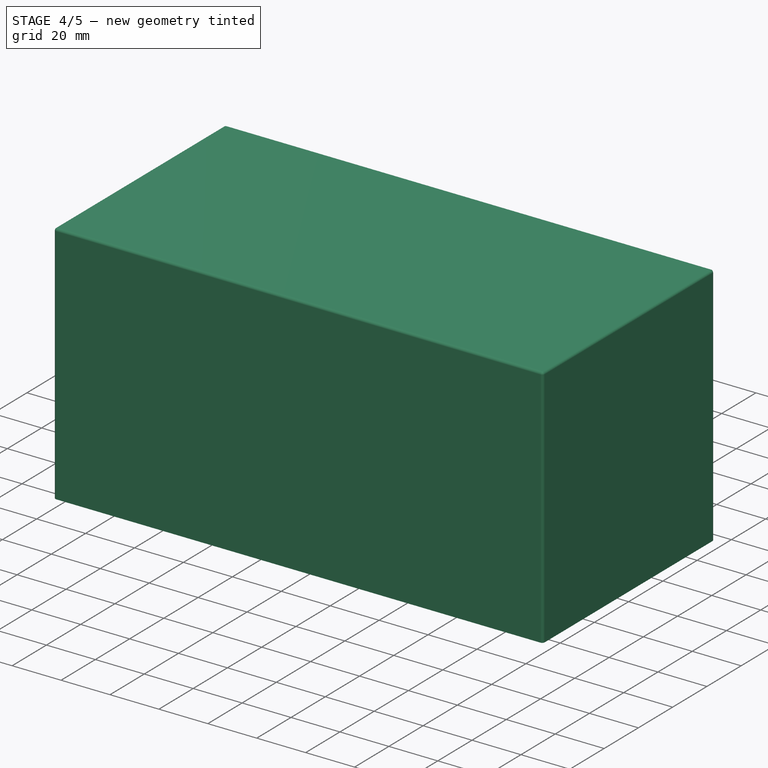
[diagram: stage 4 of 5 — iso view after this stage's code; geometry added in this stage tinted green]
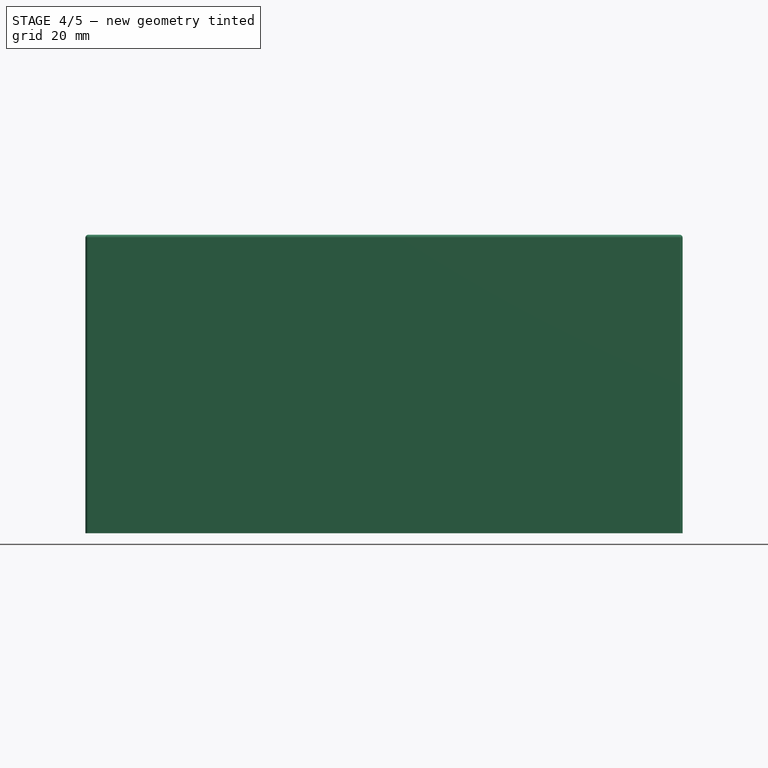
[diagram: stage 4 of 5 — front view after this stage's code; geometry added in this stage tinted green]
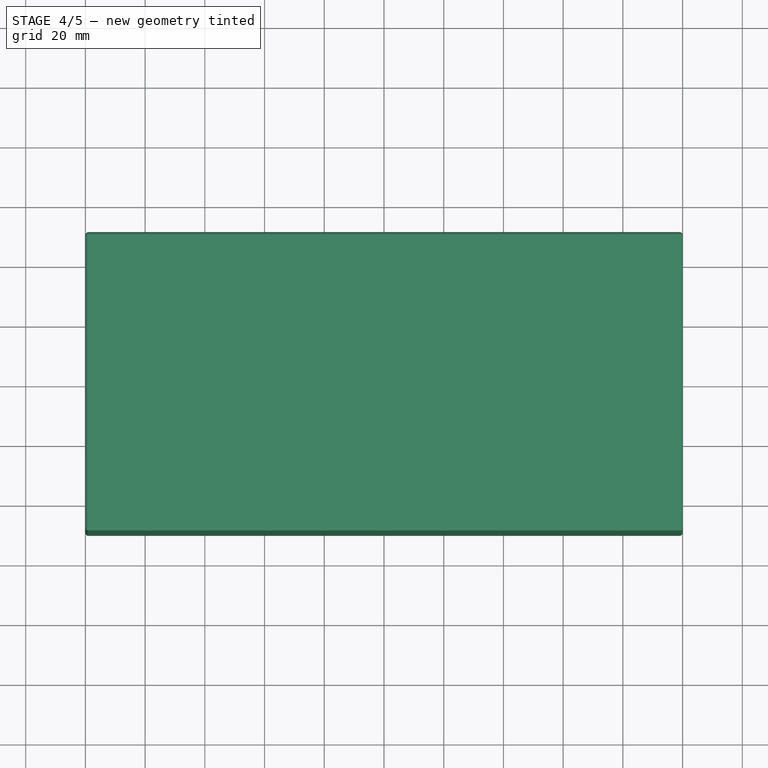
[diagram: stage 4 of 5 — top view after this stage's code; geometry added in this stage tinted green]
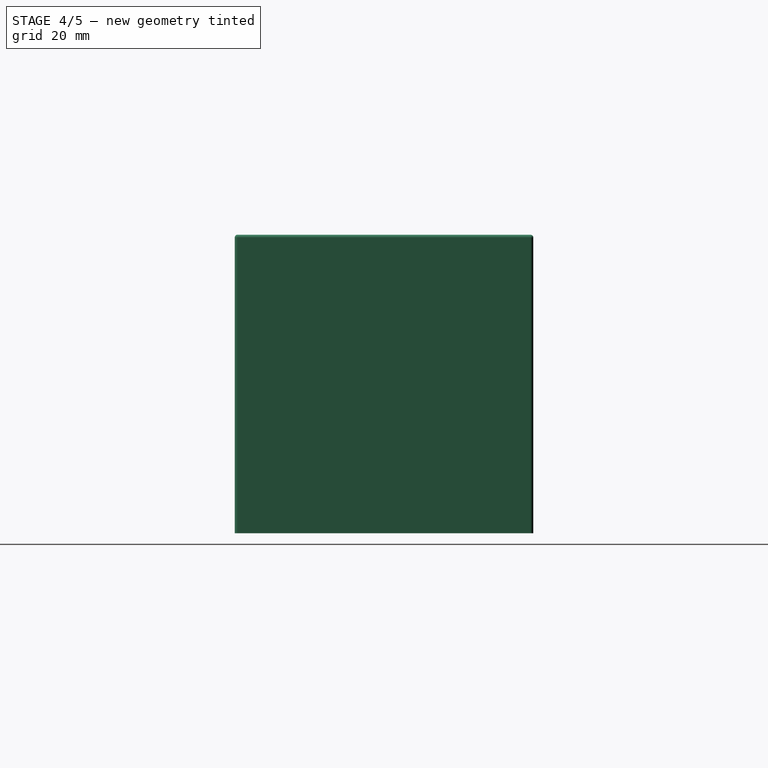
[diagram: stage 4 of 5 — right view after this stage's code; geometry added in this stage tinted green]
FEATURE [Sketcher::SketchObject] Sketch
  MapMode = 5
  Support = -> [XY_Plane001]
  sketch-geometry (4):
    g0: LineSegment StartX=-100 StartY=50 StartZ=0 EndX=100 EndY=50 EndZ=0
    g1: LineSegment StartX=100 StartY=50 StartZ=0 EndX=100 EndY=-50 EndZ=0
    g2: LineSegment StartX=100 StartY=-50 StartZ=0 EndX=-100 EndY=-50 EndZ=0
    g3: LineSegment StartX=-100 StartY=-50 StartZ=0 EndX=-100 EndY=50 EndZ=0
  constraints (11):
    c: Coincident(g0,g1)
    c: Coincident(g1,g2)
    c: Coincident(g2,g3)
    c: Coincident(g3,g0)
    c: Horizontal(g0)
    c: Horizontal(g2)
    c: Vertical(g1)
    c: Vertical(g3)
    c: Symmetric(g0,g1,g-1)
    c: DistanceX(g0,g0) = 200
    c: DistanceY(g3,g3) = 100
FEATURE [PartDesign::Pad] Pad
  Length = 100
  Length2 = 100
  Profile = -> Sketch
  Type = 0
FEATURE [Sketcher::SketchObject] Sketch001
  MapMode = 5
  Placement = pos=(0,0,0) rot=(1,0,0;3.14159rad)
  Support = -> [Pad]
  sketch-geometry (4):
    g0: LineSegment StartX=-98 StartY=48 StartZ=0 EndX=98 EndY=48 EndZ=0
    g1: LineSegment StartX=98 StartY=48 StartZ=0 EndX=98 EndY=-48 EndZ=0
    g2: LineSegment StartX=98 StartY=-48 StartZ=0 EndX=-98 EndY=-48 EndZ=0
    g3: LineSegment StartX=-98 StartY=-48 StartZ=0 EndX=-98 EndY=48 EndZ=0
  constraints (11):
    c: Coincident(g0,g1)
    c: Coincident(g1,g2)
    c: Coincident(g2,g3)
    c: Coincident(g3,g0)
    c: Horizontal(g0)
    c: Horizontal(g2)
    c: Vertical(g1)
    c: Vertical(g3)
    c: Symmetric(g0,g2,g-1)
    c: DistanceY(g1,g1) = 96
    c: DistanceX(g0,g0) = 196
FEATURE [PartDesign::Pocket] Pocket
  BaseFeature = -> Pad
  Length = 98
  Length2 = 100
  Profile = -> Sketch001
  Type = 0
FEATURE [PartDesign::Fillet] Fillet
  Base = -> Pocket [Edge10,Edge16,Edge7,Edge4,Edge5,Edge1,Edge8,Edge2]
  BaseFeature = -> Pocket
  Radius = 1
FEATURE [Sketcher::SketchObject] Sketch022
  MapMode = 5
  Placement = pos=(0,47.85,0) rot=(0,0.707107,0.707107;3.14159rad)
  Support = -> [Pad009]
  sketch-geometry (8):
    g0: LineSegment StartX=-91.35 StartY=97.7 StartZ=0 EndX=-90.35 EndY=97.7 EndZ=0
    g1: LineSegment StartX=-90.35 StartY=97.7 StartZ=0 EndX=-75.35 EndY=5 EndZ=0
    g2: LineSegment StartX=-75.35 StartY=5 StartZ=0 EndX=-91.35 EndY=5 EndZ=0
    g3: LineSegment StartX=-91.35 StartY=5 StartZ=0 EndX=-91.35 EndY=97.7 EndZ=0
    g4: LineSegment StartX=90.35 StartY=97.7 StartZ=0 EndX=75.35 EndY=5 EndZ=0
    g5: LineSegment StartX=75.35 StartY=5 StartZ=0 EndX=91.35 EndY=5 EndZ=0
    g6: LineSegment StartX=91.35 StartY=5 StartZ=0 EndX=91.35 EndY=97.7 EndZ=0
    g7: LineSegment StartX=91.35 StartY=97.7 StartZ=0 EndX=90.35 EndY=97.7 EndZ=0
  constraints (24):
    c: Coincident(g0,g1)
    c: Coincident(g1,g2)
    c: Coincident(g2,g3)
    c: Coincident(g0,g3)
    c: DistanceX(g0,g0) = 1
    c: DistanceX(g2,g2) = 16
    c: Horizontal(g2)
    c: Horizontal(g0)
    c: Vertical(g3)
    c: Coincident(g4,g5)
    c: Coincident(g5,g6)
    c: Coincident(g6,g7)
    c: Coincident(g7,g4)
    c: Horizontal(g7)
    c: Vertical(g6)
    c: Horizontal(g5)
    c: DistanceX(g5,g5) = 16
    c: DistanceX(g7,g7) = 1
    c: DistanceY(g3,g3) = 92.7
    c: DistanceY(g6,g6) = 92.7
    c: DistanceY(g-1,g4) = 5
    c: DistanceY(g-1,g1) = 5
    c: DistanceX(g2,g-1) = 91.35
    c: DistanceX(g-1,g5) = 91.35
FEATURE [PartDesign::Pad] Pad010
  BaseFeature = -> Pad009
  Length = 1
  Length2 = 100
  Profile = -> Sketch022
  Reversed = true
  Type = 0
FEATURE [PartDesign::Fillet] Fillet001
  Base = -> Pad010 [Edge9,Edge7,Edge8,Edge255,Edge191,Edge252]
  BaseFeature = -> Pad010
  Radius = 2
FEATURE [Sketcher::SketchObject] Sketch023
  MapMode = 5
  Placement = pos=(0,0,5) rot=(0,0,1;0rad)
  Support = -> [Fillet001]
  sketch-geometry (2):
    g0: Circle CenterX=-65 CenterY=25 CenterZ=0 NormalX=0 NormalY=0 NormalZ=1 AngleXU=0 Radius=10
    g1: Circle CenterX=65 CenterY=25 CenterZ=0 NormalX=0 NormalY=0 NormalZ=1 AngleXU=0 Radius=10
  constraints (6):
    c: Diameter(g0) = 20
    c: Diameter(g1) = 20
    c: DistanceY(g-1,g0) = 25
    c: DistanceY(g-1,g1) = 25
    c: DistanceX(g0,g-1) = 65
    c: DistanceX(g-1,g1) = 65
FEATURE [PartDesign::Hole] Hole001
  BaseFeature = -> Fillet001
  Depth = 25
  DepthType = 0
  Diameter = 20
  DrillPoint = 1
  DrillPointAngle = 118
  HoleCutCountersinkAngle = 90
  HoleCutDepth = 0
  HoleCutDiameter = 0
  HoleCutType = 0
  ModelActualThread = false
  Profile = -> Sketch023
  Tapered = false
  TaperedAngle = 90
  ThreadAngle = 0
  ThreadClass = 0
  ThreadCutOffInner = 0
  ThreadCutOffOuter = 0
  ThreadDirection = 0
  ThreadFit = 0
  ThreadPitch = 0
  ThreadSize = 0
  ThreadType = 0
  Threaded = false
FEATURE [PartDesign::Body] Body001
  Group = -> [Sketch002,Pad001,Sketch003,Pad002,Sketch004,Pocket001,Sketch005,Pad003,Sketch006,Pocket002,Chamfer,Chamfer001,Sketch012,Pad005,Sketch013,Pocket007,Sketch014,Pad006,Sketch015,Pocket008,Sketch017,Pad007,Sketch018,Pad008,Sketch019,Sketch020,Hole,Sketch021,Pocket009,Pad009,Sketch022,Pad010,Fillet001,Sketch023,Hole001]
  Origin = -> Origin003
  Tip = -> Hole001
FEATURE [App::Part] Part001
  Group = -> [Body001]
  Origin = -> Origin002
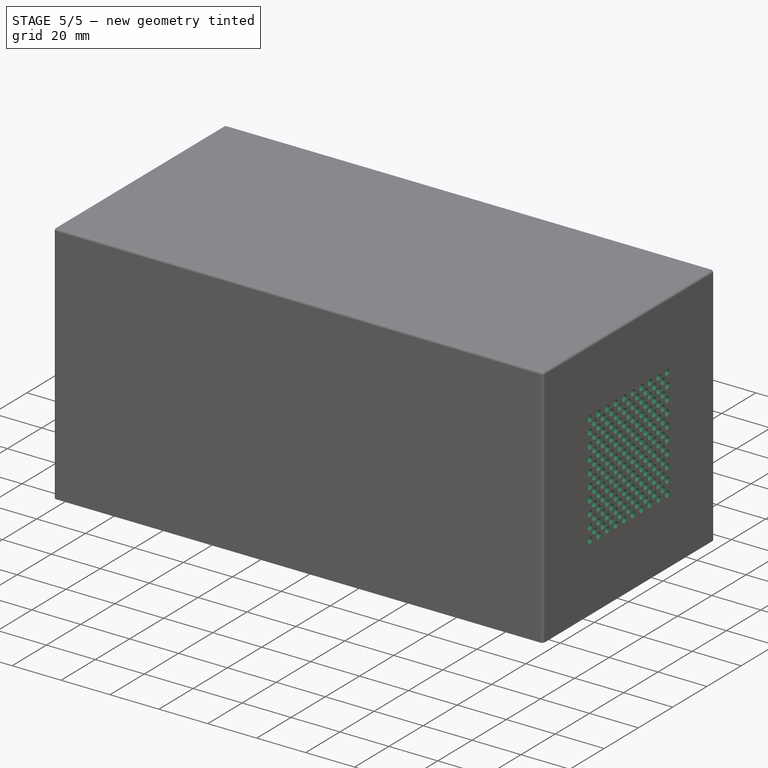
[diagram: stage 5 of 5 — iso view after this stage's code; geometry added in this stage tinted green]
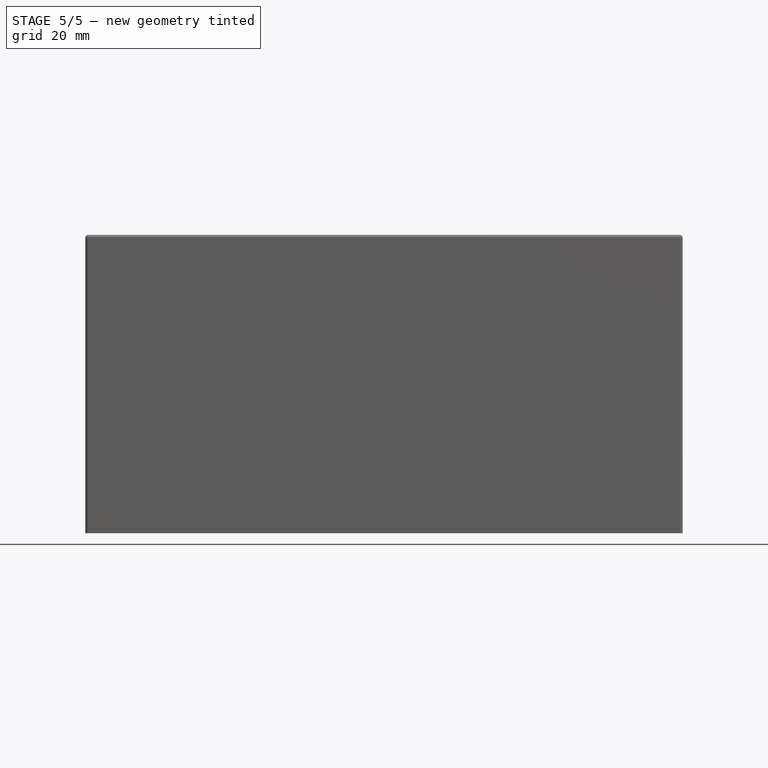
[diagram: stage 5 of 5 — front view after this stage's code; geometry added in this stage tinted green]
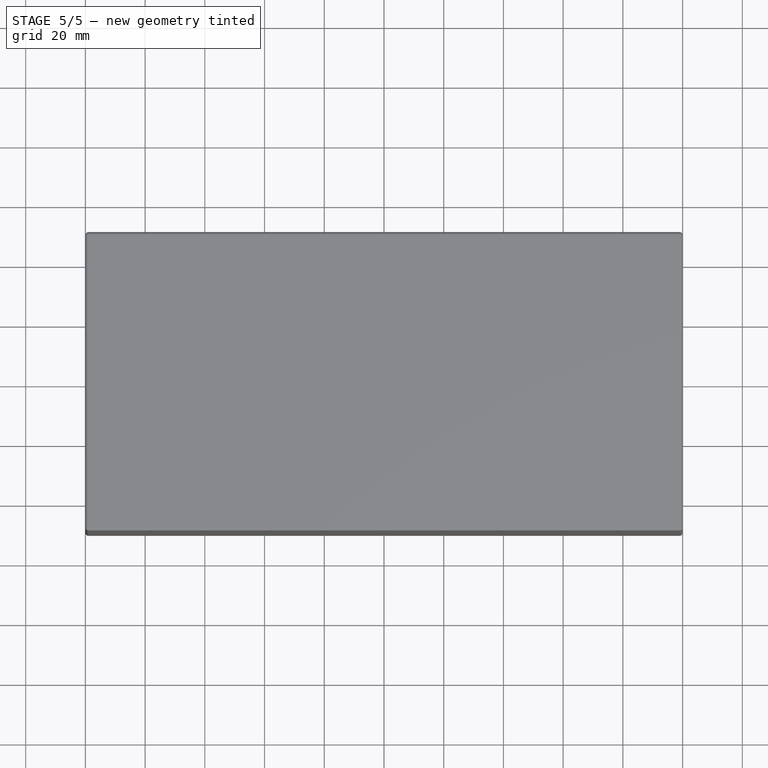
[diagram: stage 5 of 5 — top view after this stage's code; geometry added in this stage tinted green]
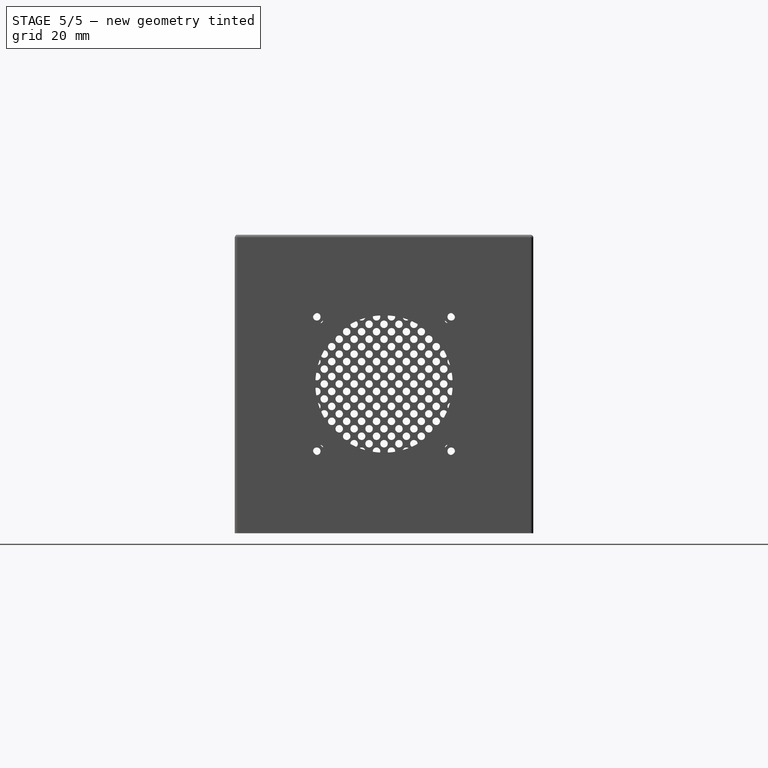
[diagram: stage 5 of 5 — right view after this stage's code; geometry added in this stage tinted green]
FEATURE [Sketcher::SketchObject] Sketch007
  MapMode = 5
  Placement = pos=(100,0,0) rot=(0.57735,0.57735,0.57735;2.0944rad)
  Support = -> [Fillet]
  sketch-geometry (362):
    g0: Circle [constr] CenterX=0 CenterY=50 CenterZ=0 NormalX=0 NormalY=0 NormalZ=1 AngleXU=0 Radius=23
    g1: Circle CenterX=-22.5 CenterY=72.5 CenterZ=0 NormalX=0 NormalY=0 NormalZ=1 AngleXU=0 Radius=1.25
    g2: Circle CenterX=-20 CenterY=70 CenterZ=0 NormalX=0 NormalY=0 NormalZ=1 AngleXU=0 Radius=1.25
    g3: LineSegment [constr] StartX=-22.5 StartY=72.5 StartZ=0 EndX=-17.5 EndY=72.5 EndZ=0
    g4: Circle CenterX=-17.5 CenterY=72.5 CenterZ=0 NormalX=0 NormalY=0 NormalZ=1 AngleXU=0 Radius=1.25
    g5: LineSegment [constr] StartX=-22.5 StartY=72.5 StartZ=0 EndX=-17.5 EndY=72.5 EndZ=0
    g6: Circle CenterX=-12.5 CenterY=72.5 CenterZ=0 NormalX=0 NormalY=0 NormalZ=1 AngleXU=0 Radius=1.25
    g7: LineSegment [constr] StartX=-17.5 StartY=72.5 StartZ=0 EndX=-12.5 EndY=72.5 EndZ=0
    g8: Circle CenterX=-7.5 CenterY=72.5 CenterZ=0 NormalX=0 NormalY=0 NormalZ=1 AngleXU=0 Radius=1.25
    g9: LineSegment [constr] StartX=-12.5 StartY=72.5 StartZ=0 EndX=-7.5 EndY=72.5 EndZ=0
    g10: Circle CenterX=-2.5 CenterY=72.5 CenterZ=0 NormalX=0 NormalY=0 NormalZ=1 AngleXU=0 Radius=1.25
    g11: LineSegment [constr] StartX=-7.5 StartY=72.5 StartZ=0 EndX=-2.5 EndY=72.5 EndZ=0
    g12: Circle CenterX=2.5 CenterY=72.5 CenterZ=0 NormalX=0 NormalY=0 NormalZ=1 AngleXU=0 Radius=1.25
    g13: LineSegment [constr] StartX=-2.5 StartY=72.5 StartZ=0 EndX=2.5 EndY=72.5 EndZ=0
    g14: Circle CenterX=7.5 CenterY=72.5 CenterZ=0 NormalX=0 NormalY=0 NormalZ=1 AngleXU=0 Radius=1.25
    g15: LineSegment [constr] StartX=2.5 StartY=72.5 StartZ=0 EndX=7.5 EndY=72.5 EndZ=0
    g16: Circle CenterX=12.5 CenterY=72.5 CenterZ=0 NormalX=0 NormalY=0 NormalZ=1 AngleXU=0 Radius=1.25
    g17: LineSegment [constr] StartX=7.5 StartY=72.5 StartZ=0 EndX=12.5 EndY=72.5 EndZ=0
    g18: Circle CenterX=17.5 CenterY=72.5 CenterZ=0 NormalX=0 NormalY=0 NormalZ=1 AngleXU=0 Radius=1.25
    g19: LineSegment [constr] StartX=12.5 StartY=72.5 StartZ=0 EndX=17.5 EndY=72.5 EndZ=0
    g20: Circle CenterX=22.5 CenterY=72.5 CenterZ=0 NormalX=0 NormalY=0 NormalZ=1 AngleXU=0 Radius=1.25
    g21: LineSegment [constr] StartX=17.5 StartY=72.5 StartZ=0 EndX=22.5 EndY=72.5 EndZ=0
    g22: Circle CenterX=-22.5 CenterY=67.5 CenterZ=0 NormalX=0 NormalY=0 NormalZ=1 AngleXU=0 Radius=1.25
    g23: LineSegment [constr] StartX=-22.5 StartY=72.5 StartZ=0 EndX=-22.5 EndY=67.5 EndZ=0
    g24: Circle CenterX=-17.5 CenterY=67.5 CenterZ=0 NormalX=0 NormalY=0 NormalZ=1 AngleXU=0 Radius=1.25
    g25: LineSegment [constr] StartX=-22.5 StartY=67.5 StartZ=0 EndX=-17.5 EndY=67.5 EndZ=0
    g26: Circle CenterX=-12.5 CenterY=67.5 CenterZ=0 NormalX=0 NormalY=0 NormalZ=1 AngleXU=0 Radius=1.25
    g27: LineSegment [constr] StartX=-17.5 StartY=67.5 StartZ=0 EndX=-12.5 EndY=67.5 EndZ=0
    g28: Circle CenterX=-7.5 CenterY=67.5 CenterZ=0 NormalX=0 NormalY=0 NormalZ=1 AngleXU=0 Radius=1.25
    g29: LineSegment [constr] StartX=-12.5 StartY=67.5 StartZ=0 EndX=-7.5 EndY=67.5 EndZ=0
    g30: Circle CenterX=-2.5 CenterY=67.5 CenterZ=0 NormalX=0 NormalY=0 NormalZ=1 AngleXU=0 Radius=1.25
    g31: LineSegment [constr] StartX=-7.5 StartY=67.5 StartZ=0 EndX=-2.5 EndY=67.5 EndZ=0
    g32: Circle CenterX=2.5 CenterY=67.5 CenterZ=0 NormalX=0 NormalY=0 NormalZ=1 AngleXU=0 Radius=1.25
    g33: LineSegment [constr] StartX=-2.5 StartY=67.5 StartZ=0 EndX=2.5 EndY=67.5 EndZ=0
    g34: Circle CenterX=7.5 CenterY=67.5 CenterZ=0 NormalX=0 NormalY=0 NormalZ=1 AngleXU=0 Radius=1.25
    g35: LineSegment [constr] StartX=2.5 StartY=67.5 StartZ=0 EndX=7.5 EndY=67.5 EndZ=0
    g36: Circle CenterX=12.5 CenterY=67.5 CenterZ=0 NormalX=0 NormalY=0 NormalZ=1 AngleXU=0 Radius=1.25
    g37: LineSegment [constr] StartX=7.5 StartY=67.5 StartZ=0 EndX=12.5 EndY=67.5 EndZ=0
    g38: Circle CenterX=17.5 CenterY=67.5 CenterZ=0 NormalX=0 NormalY=0 NormalZ=1 AngleXU=0 Radius=1.25
    g39: LineSegment [constr] StartX=12.5 StartY=67.5 StartZ=0 EndX=17.5 EndY=67.5 EndZ=0
    g40: Circle CenterX=22.5 CenterY=67.5 CenterZ=0 NormalX=0 NormalY=0 NormalZ=1 AngleXU=0 Radius=1.25
    g41: LineSegment [constr] StartX=17.5 StartY=67.5 StartZ=0 EndX=22.5 EndY=67.5 EndZ=0
    g42: Circle CenterX=-22.5 CenterY=62.5 CenterZ=0 NormalX=0 NormalY=0 NormalZ=1 AngleXU=0 Radius=1.25
    g43: LineSegment [constr] StartX=-22.5 StartY=67.5 StartZ=0 EndX=-22.5 EndY=62.5 EndZ=0
    g44: Circle CenterX=-17.5 CenterY=62.5 CenterZ=0 NormalX=0 NormalY=0 NormalZ=1 AngleXU=0 Radius=1.25
    g45: LineSegment [constr] StartX=-22.5 StartY=62.5 StartZ=0 EndX=-17.5 EndY=62.5 EndZ=0
    g46: Circle CenterX=-12.5 CenterY=62.5 CenterZ=0 NormalX=0 NormalY=0 NormalZ=1 AngleXU=0 Radius=1.25
    g47: LineSegment [constr] StartX=-17.5 StartY=62.5 StartZ=0 EndX=-12.5 EndY=62.5 EndZ=0
    g48: Circle CenterX=-7.5 CenterY=62.5 CenterZ=0 NormalX=0 NormalY=0 NormalZ=1 AngleXU=0 Radius=1.25
    g49: LineSegment [constr] StartX=-12.5 StartY=62.5 StartZ=0 EndX=-7.5 EndY=62.5 EndZ=0
    g50: Circle CenterX=-2.5 CenterY=62.5 CenterZ=0 NormalX=0 NormalY=0 NormalZ=1 AngleXU=0 Radius=1.25
    g51: LineSegment [constr] StartX=-7.5 StartY=62.5 StartZ=0 EndX=-2.5 EndY=62.5 EndZ=0
    g52: Circle CenterX=2.5 CenterY=62.5 CenterZ=0 NormalX=0 NormalY=0 NormalZ=1 AngleXU=0 Radius=1.25
    g53: LineSegment [constr] StartX=-2.5 StartY=62.5 StartZ=0 EndX=2.5 EndY=62.5 EndZ=0
    g54: Circle CenterX=7.5 CenterY=62.5 CenterZ=0 NormalX=0 NormalY=0 NormalZ=1 AngleXU=0 Radius=1.25
    g55: LineSegment [constr] StartX=2.5 StartY=62.5 StartZ=0 EndX=7.5 EndY=62.5 EndZ=0
    g56: Circle CenterX=12.5 CenterY=62.5 CenterZ=0 NormalX=0 NormalY=0 NormalZ=1 AngleXU=0 Radius=1.25
    g57: LineSegment [constr] StartX=7.5 StartY=62.5 StartZ=0 EndX=12.5 EndY=62.5 EndZ=0
    g58: Circle CenterX=17.5 CenterY=62.5 CenterZ=0 NormalX=0 NormalY=0 NormalZ=1 AngleXU=0 Radius=1.25
    g59: LineSegment [constr] StartX=12.5 StartY=62.5 StartZ=0 EndX=17.5 EndY=62.5 EndZ=0
    g60: Circle CenterX=22.5 CenterY=62.5 CenterZ=0 NormalX=0 NormalY=0 NormalZ=1 AngleXU=0 Radius=1.25
    g61: LineSegment [constr] StartX=17.5 StartY=62.5 StartZ=0 EndX=22.5 EndY=62.5 EndZ=0
    g62: Circle CenterX=-22.5 CenterY=57.5 CenterZ=0 NormalX=0 NormalY=0 NormalZ=1 AngleXU=0 Radius=1.25
    g63: LineSegment [constr] StartX=-22.5 StartY=62.5 StartZ=0 EndX=-22.5 EndY=57.5 EndZ=0
    g64: Circle CenterX=-17.5 CenterY=57.5 CenterZ=0 NormalX=0 NormalY=0 NormalZ=1 AngleXU=0 Radius=1.25
    g65: LineSegment [constr] StartX=-22.5 StartY=57.5 StartZ=0 EndX=-17.5 EndY=57.5 EndZ=0
    g66: Circle CenterX=-12.5 CenterY=57.5 CenterZ=0 NormalX=0 NormalY=0 NormalZ=1 AngleXU=0 Radius=1.25
    g67: LineSegment [constr] StartX=-17.5 StartY=57.5 StartZ=0 EndX=-12.5 EndY=57.5 EndZ=0
    g68: Circle CenterX=-7.5 CenterY=57.5 CenterZ=0 NormalX=0 NormalY=0 NormalZ=1 AngleXU=0 Radius=1.25
    g69: LineSegment [constr] StartX=-12.5 StartY=57.5 StartZ=0 EndX=-7.5 EndY=57.5 EndZ=0
    g70: Circle CenterX=-2.5 CenterY=57.5 CenterZ=0 NormalX=0 NormalY=0 NormalZ=1 AngleXU=0 Radius=1.25
    g71: LineSegment [constr] StartX=-7.5 StartY=57.5 StartZ=0 EndX=-2.5 EndY=57.5 EndZ=0
    g72: Circle CenterX=2.5 CenterY=57.5 CenterZ=0 NormalX=0 NormalY=0 NormalZ=1 AngleXU=0 Radius=1.25
    g73: LineSegment [constr] StartX=-2.5 StartY=57.5 StartZ=0 EndX=2.5 EndY=57.5 EndZ=0
    g74: Circle CenterX=7.5 CenterY=57.5 CenterZ=0 NormalX=0 NormalY=0 NormalZ=1 AngleXU=0 Radius=1.25
    g75: LineSegment [constr] StartX=2.5 StartY=57.5 StartZ=0 EndX=7.5 EndY=57.5 EndZ=0
    g76: Circle CenterX=12.5 CenterY=57.5 CenterZ=0 NormalX=0 NormalY=0 NormalZ=1 AngleXU=0 Radius=1.25
    g77: LineSegment [constr] StartX=7.5 StartY=57.5 StartZ=0 EndX=12.5 EndY=57.5 EndZ=0
    g78: Circle CenterX=17.5 CenterY=57.5 CenterZ=0 NormalX=0 NormalY=0 NormalZ=1 AngleXU=0 Radius=1.25
    g79: LineSegment [constr] StartX=12.5 StartY=57.5 StartZ=0 EndX=17.5 EndY=57.5 EndZ=0
    g80: Circle CenterX=22.5 CenterY=57.5 CenterZ=0 NormalX=0 NormalY=0 NormalZ=1 AngleXU=0 Radius=1.25
    g81: LineSegment [constr] StartX=17.5 StartY=57.5 StartZ=0 EndX=22.5 EndY=57.5 EndZ=0
    g82: Circle CenterX=-22.5 CenterY=52.5 CenterZ=0 NormalX=0 NormalY=0 NormalZ=1 AngleXU=0 Radius=1.25
    g83: LineSegment [constr] StartX=-22.5 StartY=57.5 StartZ=0 EndX=-22.5 EndY=52.5 EndZ=0
    g84: Circle CenterX=-17.5 CenterY=52.5 CenterZ=0 NormalX=0 NormalY=0 NormalZ=1 AngleXU=0 Radius=1.25
    g85: LineSegment [constr] StartX=-22.5 StartY=52.5 StartZ=0 EndX=-17.5 EndY=52.5 EndZ=0
    g86: Circle CenterX=-12.5 CenterY=52.5 CenterZ=0 NormalX=0 NormalY=0 NormalZ=1 AngleXU=0 Radius=1.25
    g87: LineSegment [constr] StartX=-17.5 StartY=52.5 StartZ=0 EndX=-12.5 EndY=52.5 EndZ=0
    g88: Circle CenterX=-7.5 CenterY=52.5 CenterZ=0 NormalX=0 NormalY=0 NormalZ=1 AngleXU=0 Radius=1.25
    g89: LineSegment [constr] StartX=-12.5 StartY=52.5 StartZ=0 EndX=-7.5 EndY=52.5 EndZ=0
    g90: Circle CenterX=-2.5 CenterY=52.5 CenterZ=0 NormalX=0 NormalY=0 NormalZ=1 AngleXU=0 Radius=1.25
    g91: LineSegment [constr] StartX=-7.5 StartY=52.5 StartZ=0 EndX=-2.5 EndY=52.5 EndZ=0
    g92: Circle CenterX=2.5 CenterY=52.5 CenterZ=0 NormalX=0 NormalY=0 NormalZ=1 AngleXU=0 Radius=1.25
    g93: LineSegment [constr] StartX=-2.5 StartY=52.5 StartZ=0 EndX=2.5 EndY=52.5 EndZ=0
    g94: Circle CenterX=7.5 CenterY=52.5 CenterZ=0 NormalX=0 NormalY=0 NormalZ=1 AngleXU=0 Radius=1.25
    g95: LineSegment [constr] StartX=2.5 StartY=52.5 StartZ=0 EndX=7.5 EndY=52.5 EndZ=0
    g96: Circle CenterX=12.5 CenterY=52.5 CenterZ=0 NormalX=0 NormalY=0 NormalZ=1 AngleXU=0 Radius=1.25
    g97: LineSegment [constr] StartX=7.5 StartY=52.5 StartZ=0 EndX=12.5 EndY=52.5 EndZ=0
    g98: Circle CenterX=17.5 CenterY=52.5 CenterZ=0 NormalX=0 NormalY=0 NormalZ=1 AngleXU=0 Radius=1.25
    g99: LineSegment [constr] StartX=12.5 StartY=52.5 StartZ=0 EndX=17.5 EndY=52.5 EndZ=0
    g100: Circle CenterX=22.5 CenterY=52.5 CenterZ=0 NormalX=0 NormalY=0 NormalZ=1 AngleXU=0 Radius=1.25
    g101: LineSegment [constr] StartX=17.5 StartY=52.5 StartZ=0 EndX=22.5 EndY=52.5 EndZ=0
    g102: Circle CenterX=-22.5 CenterY=47.5 CenterZ=0 NormalX=0 NormalY=0 NormalZ=1 AngleXU=0 Radius=1.25
    g103: LineSegment [constr] StartX=-22.5 StartY=52.5 StartZ=0 EndX=-22.5 EndY=47.5 EndZ=0
    g104: Circle CenterX=-17.5 CenterY=47.5 CenterZ=0 NormalX=0 NormalY=0 NormalZ=1 AngleXU=0 Radius=1.25
    g105: LineSegment [constr] StartX=-22.5 StartY=47.5 StartZ=0 EndX=-17.5 EndY=47.5 EndZ=0
    g106: Circle CenterX=-12.5 CenterY=47.5 CenterZ=0 NormalX=0 NormalY=0 NormalZ=1 AngleXU=0 Radius=1.25
    g107: LineSegment [constr] StartX=-17.5 StartY=47.5 StartZ=0 EndX=-12.5 EndY=47.5 EndZ=0
    g108: Circle CenterX=-7.5 CenterY=47.5 CenterZ=0 NormalX=0 NormalY=0 NormalZ=1 AngleXU=0 Radius=1.25
    g109: LineSegment [constr] StartX=-12.5 StartY=47.5 StartZ=0 EndX=-7.5 EndY=47.5 EndZ=0
    g110: Circle CenterX=-2.5 CenterY=47.5 CenterZ=0 NormalX=0 NormalY=0 NormalZ=1 AngleXU=0 Radius=1.25
    g111: LineSegment [constr] StartX=-7.5 StartY=47.5 StartZ=0 EndX=-2.5 EndY=47.5 EndZ=0
    g112: Circle CenterX=2.5 CenterY=47.5 CenterZ=0 NormalX=0 NormalY=0 NormalZ=1 AngleXU=0 Radius=1.25
    g113: LineSegment [constr] StartX=-2.5 StartY=47.5 StartZ=0 EndX=2.5 EndY=47.5 EndZ=0
    g114: Circle CenterX=7.5 CenterY=47.5 CenterZ=0 NormalX=0 NormalY=0 NormalZ=1 AngleXU=0 Radius=1.25
    g115: LineSegment [constr] StartX=2.5 StartY=47.5 StartZ=0 EndX=7.5 EndY=47.5 EndZ=0
    g116: Circle CenterX=12.5 CenterY=47.5 CenterZ=0 NormalX=0 NormalY=0 NormalZ=1 AngleXU=0 Radius=1.25
    g117: LineSegment [constr] StartX=7.5 StartY=47.5 StartZ=0 EndX=12.5 EndY=47.5 EndZ=0
    g118: Circle CenterX=17.5 CenterY=47.5 CenterZ=0 NormalX=0 NormalY=0 NormalZ=1 AngleXU=0 Radius=1.25
    g119: LineSegment [constr] StartX=12.5 StartY=47.5 StartZ=0 EndX=17.5 EndY=47.5 EndZ=0
    g120: Circle CenterX=22.5 CenterY=47.5 CenterZ=0 NormalX=0 NormalY=0 NormalZ=1 AngleXU=0 Radius=1.25
    g121: LineSegment [constr] StartX=17.5 StartY=47.5 StartZ=0 EndX=22.5 EndY=47.5 EndZ=0
    g122: Circle CenterX=-22.5 CenterY=42.5 CenterZ=0 NormalX=0 NormalY=0 NormalZ=1 AngleXU=0 Radius=1.25
    g123: LineSegment [constr] StartX=-22.5 StartY=47.5 StartZ=0 EndX=-22.5 EndY=42.5 EndZ=0
    g124: Circle CenterX=-17.5 CenterY=42.5 CenterZ=0 NormalX=0 NormalY=0 NormalZ=1 AngleXU=0 Radius=1.25
    g125: LineSegment [constr] StartX=-22.5 StartY=42.5 StartZ=0 EndX=-17.5 EndY=42.5 EndZ=0
    g126: Circle CenterX=-12.5 CenterY=42.5 CenterZ=0 NormalX=0 NormalY=0 NormalZ=1 AngleXU=0 Radius=1.25
    g127: LineSegment [constr] StartX=-17.5 StartY=42.5 StartZ=0 EndX=-12.5 EndY=42.5 EndZ=0
    g128: Circle CenterX=-7.5 CenterY=42.5 CenterZ=0 NormalX=0 NormalY=0 NormalZ=1 AngleXU=0 Radius=1.25
    g129: LineSegment [constr] StartX=-12.5 StartY=42.5 StartZ=0 EndX=-7.5 EndY=42.5 EndZ=0
    g130: Circle CenterX=-2.5 CenterY=42.5 CenterZ=0 NormalX=0 NormalY=0 NormalZ=1 AngleXU=0 Radius=1.25
    g131: LineSegment [constr] StartX=-7.5 StartY=42.5 StartZ=0 EndX=-2.5 EndY=42.5 EndZ=0
    g132: Circle CenterX=2.5 CenterY=42.5 CenterZ=0 NormalX=0 NormalY=0 NormalZ=1 AngleXU=0 Radius=1.25
    g133: LineSegment [constr] StartX=-2.5 StartY=42.5 StartZ=0 EndX=2.5 EndY=42.5 EndZ=0
    g134: Circle CenterX=7.5 CenterY=42.5 CenterZ=0 NormalX=0 NormalY=0 NormalZ=1 AngleXU=0 Radius=1.25
    g135: LineSegment [constr] StartX=2.5 StartY=42.5 StartZ=0 EndX=7.5 EndY=42.5 EndZ=0
    g136: Circle CenterX=12.5 CenterY=42.5 CenterZ=0 NormalX=0 NormalY=0 NormalZ=1 AngleXU=0 Radius=1.25
    g137: LineSegment [constr] StartX=7.5 StartY=42.5 StartZ=0 EndX=12.5 EndY=42.5 EndZ=0
    g138: Circle CenterX=17.5 CenterY=42.5 CenterZ=0 NormalX=0 NormalY=0 NormalZ=1 AngleXU=0 Radius=1.25
    g139: LineSegment [constr] StartX=12.5 StartY=42.5 StartZ=0 EndX=17.5 EndY=42.5 EndZ=0
    g140: Circle CenterX=22.5 CenterY=42.5 CenterZ=0 NormalX=0 NormalY=0 NormalZ=1 AngleXU=0 Radius=1.25
    g141: LineSegment [constr] StartX=17.5 StartY=42.5 StartZ=0 EndX=22.5 EndY=42.5 EndZ=0
    g142: Circle CenterX=-22.5 CenterY=37.5 CenterZ=0 NormalX=0 NormalY=0 NormalZ=1 AngleXU=0 Radius=1.25
    g143: LineSegment [constr] StartX=-22.5 StartY=42.5 StartZ=0 EndX=-22.5 EndY=37.5 EndZ=0
    g144: Circle CenterX=-17.5 CenterY=37.5 CenterZ=0 NormalX=0 NormalY=0 NormalZ=1 AngleXU=0 Radius=1.25
    g145: LineSegment [constr] StartX=-22.5 StartY=37.5 StartZ=0 EndX=-17.5 EndY=37.5 EndZ=0
    g146: Circle CenterX=-12.5 CenterY=37.5 CenterZ=0 NormalX=0 NormalY=0 NormalZ=1 AngleXU=0 Radius=1.25
    g147: LineSegment [constr] StartX=-17.5 StartY=37.5 StartZ=0 EndX=-12.5 EndY=37.5 EndZ=0
    g148: Circle CenterX=-7.5 CenterY=37.5 CenterZ=0 NormalX=0 NormalY=0 NormalZ=1 AngleXU=0 Radius=1.25
    g149: LineSegment [constr] StartX=-12.5 StartY=37.5 StartZ=0 EndX=-7.5 EndY=37.5 EndZ=0
    g150: Circle CenterX=-2.5 CenterY=37.5 CenterZ=0 NormalX=0 NormalY=0 NormalZ=1 AngleXU=0 Radius=1.25
    g151: LineSegment [constr] StartX=-7.5 StartY=37.5 StartZ=0 EndX=-2.5 EndY=37.5 EndZ=0
    g152: Circle CenterX=2.5 CenterY=37.5 CenterZ=0 NormalX=0 NormalY=0 NormalZ=1 AngleXU=0 Radius=1.25
    g153: LineSegment [constr] StartX=-2.5 StartY=37.5 StartZ=0 EndX=2.5 EndY=37.5 EndZ=0
    g154: Circle CenterX=7.5 CenterY=37.5 CenterZ=0 NormalX=0 NormalY=0 NormalZ=1 AngleXU=0 Radius=1.25
    g155: LineSegment [constr] StartX=2.5 StartY=37.5 StartZ=0 EndX=7.5 EndY=37.5 EndZ=0
    g156: Circle CenterX=12.5 CenterY=37.5 CenterZ=0 NormalX=0 NormalY=0 NormalZ=1 AngleXU=0 Radius=1.25
    g157: LineSegment [constr] StartX=7.5 StartY=37.5 StartZ=0 EndX=12.5 EndY=37.5 EndZ=0
    g158: Circle CenterX=17.5 CenterY=37.5 CenterZ=0 NormalX=0 NormalY=0 NormalZ=1 AngleXU=0 Radius=1.25
    g159: LineSegment [constr] StartX=12.5 StartY=37.5 StartZ=0 EndX=17.5 EndY=37.5 EndZ=0
    g160: Circle CenterX=22.5 CenterY=37.5 CenterZ=0 NormalX=0 NormalY=0 NormalZ=1 AngleXU=0 Radius=1.25
    g161: LineSegment [constr] StartX=17.5 StartY=37.5 StartZ=0 EndX=22.5 EndY=37.5 EndZ=0
    g162: Circle CenterX=-22.5 CenterY=32.5 CenterZ=0 NormalX=0 NormalY=0 NormalZ=1 AngleXU=0 Radius=1.25
    g163: LineSegment [constr] StartX=-22.5 StartY=37.5 StartZ=0 EndX=-22.5 EndY=32.5 EndZ=0
    g164: Circle CenterX=-17.5 CenterY=32.5 CenterZ=0 NormalX=0 NormalY=0 NormalZ=1 AngleXU=0 Radius=1.25
    g165: LineSegment [constr] StartX=-22.5 StartY=32.5 StartZ=0 EndX=-17.5 EndY=32.5 EndZ=0
    g166: Circle CenterX=-12.5 CenterY=32.5 CenterZ=0 NormalX=0 NormalY=0 NormalZ=1 AngleXU=0 Radius=1.25
    g167: LineSegment [constr] StartX=-17.5 StartY=32.5 StartZ=0 EndX=-12.5 EndY=32.5 EndZ=0
    g168: Circle CenterX=-7.5 CenterY=32.5 CenterZ=0 NormalX=0 NormalY=0 NormalZ=1 AngleXU=0 Radius=1.25
    g169: LineSegment [constr] StartX=-12.5 StartY=32.5 StartZ=0 EndX=-7.5 EndY=32.5 EndZ=0
    g170: Circle CenterX=-2.5 CenterY=32.5 CenterZ=0 NormalX=0 NormalY=0 NormalZ=1 AngleXU=0 Radius=1.25
    g171: LineSegment [constr] StartX=-7.5 StartY=32.5 StartZ=0 EndX=-2.5 EndY=32.5 EndZ=0
    g172: Circle CenterX=2.5 CenterY=32.5 CenterZ=0 NormalX=0 NormalY=0 NormalZ=1 AngleXU=0 Radius=1.25
    g173: LineSegment [constr] StartX=-2.5 StartY=32.5 StartZ=0 EndX=2.5 EndY=32.5 EndZ=0
    g174: Circle CenterX=7.5 CenterY=32.5 CenterZ=0 NormalX=0 NormalY=0 NormalZ=1 AngleXU=0 Radius=1.25
    g175: LineSegment [constr] StartX=2.5 StartY=32.5 StartZ=0 EndX=7.5 EndY=32.5 EndZ=0
    g176: Circle CenterX=12.5 CenterY=32.5 CenterZ=0 NormalX=0 NormalY=0 NormalZ=1 AngleXU=0 Radius=1.25
    g177: LineSegment [constr] StartX=7.5 StartY=32.5 StartZ=0 EndX=12.5 EndY=32.5 EndZ=0
    g178: Circle CenterX=17.5 CenterY=32.5 CenterZ=0 NormalX=0 NormalY=0 NormalZ=1 AngleXU=0 Radius=1.25
    g179: LineSegment [constr] StartX=12.5 StartY=32.5 StartZ=0 EndX=17.5 EndY=32.5 EndZ=0
    g180: Circle CenterX=22.5 CenterY=32.5 CenterZ=0 NormalX=0 NormalY=0 NormalZ=1 AngleXU=0 Radius=1.25
    g181: LineSegment [constr] StartX=17.5 StartY=32.5 StartZ=0 EndX=22.5 EndY=32.5 EndZ=0
    g182: Circle CenterX=-22.5 CenterY=27.5 CenterZ=0 NormalX=0 NormalY=0 NormalZ=1 AngleXU=0 Radius=1.25
    g183: LineSegment [constr] StartX=-22.5 StartY=32.5 StartZ=0 EndX=-22.5 EndY=27.5 EndZ=0
    g184: Circle CenterX=-17.5 CenterY=27.5 CenterZ=0 NormalX=0 NormalY=0 NormalZ=1 AngleXU=0 Radius=1.25
    g185: LineSegment [constr] StartX=-22.5 StartY=27.5 StartZ=0 EndX=-17.5 EndY=27.5 EndZ=0
    g186: Circle CenterX=-12.5 CenterY=27.5 CenterZ=0 NormalX=0 NormalY=0 NormalZ=1 AngleXU=0 Radius=1.25
    g187: LineSegment [constr] StartX=-17.5 StartY=27.5 StartZ=0 EndX=-12.5 EndY=27.5 EndZ=0
    g188: Circle CenterX=-7.5 CenterY=27.5 CenterZ=0 NormalX=0 NormalY=0 NormalZ=1 AngleXU=0 Radius=1.25
    g189: LineSegment [constr] StartX=-12.5 StartY=27.5 StartZ=0 EndX=-7.5 EndY=27.5 EndZ=0
    g190: Circle CenterX=-2.5 CenterY=27.5 CenterZ=0 NormalX=0 NormalY=0 NormalZ=1 AngleXU=0 Radius=1.25
    g191: LineSegment [constr] StartX=-7.5 StartY=27.5 StartZ=0 EndX=-2.5 EndY=27.5 EndZ=0
    g192: Circle CenterX=2.5 CenterY=27.5 CenterZ=0 NormalX=0 NormalY=0 NormalZ=1 AngleXU=0 Radius=1.25
    g193: LineSegment [constr] StartX=-2.5 StartY=27.5 StartZ=0 EndX=2.5 EndY=27.5 EndZ=0
    g194: Circle CenterX=7.5 CenterY=27.5 CenterZ=0 NormalX=0 NormalY=0 NormalZ=1 AngleXU=0 Radius=1.25
    g195: LineSegment [constr] StartX=2.5 StartY=27.5 StartZ=0 EndX=7.5 EndY=27.5 EndZ=0
    g196: Circle CenterX=12.5 CenterY=27.5 CenterZ=0 NormalX=0 NormalY=0 NormalZ=1 AngleXU=0 Radius=1.25
    g197: LineSegment [constr] StartX=7.5 StartY=27.5 StartZ=0 EndX=12.5 EndY=27.5 EndZ=0
    g198: Circle CenterX=17.5 CenterY=27.5 CenterZ=0 NormalX=0 NormalY=0 NormalZ=1 AngleXU=0 Radius=1.25
    g199: LineSegment [constr] StartX=12.5 StartY=27.5 StartZ=0 EndX=17.5 EndY=27.5 EndZ=0
    g200: Circle CenterX=22.5 CenterY=27.5 CenterZ=0 NormalX=0 NormalY=0 NormalZ=1 AngleXU=0 Radius=1.25
    g201: LineSegment [constr] StartX=17.5 StartY=27.5 StartZ=0 EndX=22.5 EndY=27.5 EndZ=0
    g202: Circle CenterX=-15 CenterY=70 CenterZ=0 NormalX=0 NormalY=0 NormalZ=1 AngleXU=0 Radius=1.25
    g203: LineSegment [constr] StartX=-20 StartY=70 StartZ=0 EndX=-15 EndY=70 EndZ=0
    g204: Circle CenterX=-10 CenterY=70 CenterZ=0 NormalX=0 NormalY=0 NormalZ=1 AngleXU=0 Radius=1.25
    g205: LineSegment [constr] StartX=-15 StartY=70 StartZ=0 EndX=-10 EndY=70 EndZ=0
    g206: Circle CenterX=-5 CenterY=70 CenterZ=0 NormalX=0 NormalY=0 NormalZ=1 AngleXU=0 Radius=1.25
    g207: LineSegment [constr] StartX=-10 StartY=70 StartZ=0 EndX=-5 EndY=70 EndZ=0
    g208: Circle CenterX=2e-16 CenterY=70 CenterZ=0 NormalX=0 NormalY=0 NormalZ=1 AngleXU=0 Radius=1.25
    g209: LineSegment [constr] StartX=-5 StartY=70 StartZ=0 EndX=0 EndY=70 EndZ=0
    g210: Circle CenterX=5 CenterY=70 CenterZ=0 NormalX=0 NormalY=0 NormalZ=1 AngleXU=0 Radius=1.25
    g211: LineSegment [constr] StartX=2e-16 StartY=70 StartZ=0 EndX=5 EndY=70 EndZ=0
    g212: Circle CenterX=10 CenterY=70 CenterZ=0 NormalX=0 NormalY=0 NormalZ=1 AngleXU=0 Radius=1.25
    g213: LineSegment [constr] StartX=5 StartY=70 StartZ=0 EndX=10 EndY=70 EndZ=0
    g214: Circle CenterX=15 CenterY=70 CenterZ=0 NormalX=0 NormalY=0 NormalZ=1 AngleXU=0 Radius=1.25
    g215: LineSegment [constr] StartX=10 StartY=70 StartZ=0 EndX=15 EndY=70 EndZ=0
    g216: Circle CenterX=20 CenterY=70 CenterZ=0 NormalX=0 NormalY=0 NormalZ=1 AngleXU=0 Radius=1.25
    g217: LineSegment [constr] StartX=15 StartY=70 StartZ=0 EndX=20 EndY=70 EndZ=0
    g218: Circle CenterX=-20 CenterY=65 CenterZ=0 NormalX=0 NormalY=0 NormalZ=1 AngleXU=0 Radius=1.25
    g219: LineSegment [constr] StartX=-20 StartY=70 StartZ=0 EndX=-20 EndY=65 EndZ=0
    g220: Circle CenterX=-15 CenterY=65 CenterZ=0 NormalX=0 NormalY=0 NormalZ=1 AngleXU=0 Radius=1.25
    g221: LineSegment [constr] StartX=-20 StartY=65 StartZ=0 EndX=-15 EndY=65 EndZ=0
    g222: Circle CenterX=-10 CenterY=65 CenterZ=0 NormalX=0 NormalY=0 NormalZ=1 AngleXU=0 Radius=1.25
    g223: LineSegment [constr] StartX=-15 StartY=65 StartZ=0 EndX=-10 EndY=65 EndZ=0
    g224: Circle CenterX=-5 CenterY=65 CenterZ=0 NormalX=0 NormalY=0 NormalZ=1 AngleXU=0 Radius=1.25
    g225: LineSegment [constr] StartX=-10 StartY=65 StartZ=0 EndX=-5 EndY=65 EndZ=0
    g226: Circle CenterX=0 CenterY=65 CenterZ=0 NormalX=0 NormalY=0 NormalZ=1 AngleXU=0 Radius=1.25
    g227: LineSegment [constr] StartX=-5 StartY=65 StartZ=0 EndX=0 EndY=65 EndZ=0
    g228: Circle CenterX=5 CenterY=65 CenterZ=0 NormalX=0 NormalY=0 NormalZ=1 AngleXU=0 Radius=1.25
    g229: LineSegment [constr] StartX=0 StartY=65 StartZ=0 EndX=5 EndY=65 EndZ=0
    g230: Circle CenterX=10 CenterY=65 CenterZ=0 NormalX=0 NormalY=0 NormalZ=1 AngleXU=0 Radius=1.25
    g231: LineSegment [constr] StartX=5 StartY=65 StartZ=0 EndX=10 EndY=65 EndZ=0
    g232: Circle CenterX=15 CenterY=65 CenterZ=0 NormalX=0 NormalY=0 NormalZ=1 AngleXU=0 Radius=1.25
    g233: LineSegment [constr] StartX=10 StartY=65 StartZ=0 EndX=15 EndY=65 EndZ=0
    g234: Circle CenterX=20 CenterY=65 CenterZ=0 NormalX=0 NormalY=0 NormalZ=1 AngleXU=0 Radius=1.25
    g235: LineSegment [constr] StartX=15 StartY=65 StartZ=0 EndX=20 EndY=65 EndZ=0
    g236: Circle CenterX=-20 CenterY=60 CenterZ=0 NormalX=0 NormalY=0 NormalZ=1 AngleXU=0 Radius=1.25
    g237: LineSegment [constr] StartX=-20 StartY=65 StartZ=0 EndX=-20 EndY=60 EndZ=0
    g238: Circle CenterX=-15 CenterY=60 CenterZ=0 NormalX=0 NormalY=0 NormalZ=1 AngleXU=0 Radius=1.25
    g239: LineSegment [constr] StartX=-20 StartY=60 StartZ=0 EndX=-15 EndY=60 EndZ=0
    g240: Circle CenterX=-10 CenterY=60 CenterZ=0 NormalX=0 NormalY=0 NormalZ=1 AngleXU=0 Radius=1.25
    g241: LineSegment [constr] StartX=-15 StartY=60 StartZ=0 EndX=-10 EndY=60 EndZ=0
    g242: Circle CenterX=-5 CenterY=60 CenterZ=0 NormalX=0 NormalY=0 NormalZ=1 AngleXU=0 Radius=1.25
    g243: LineSegment [constr] StartX=-10 StartY=60 StartZ=0 EndX=-5 EndY=60 EndZ=0
    g244: Circle CenterX=0 CenterY=60 CenterZ=0 NormalX=0 NormalY=0 NormalZ=1 AngleXU=0 Radius=1.25
    g245: LineSegment [constr] StartX=-5 StartY=60 StartZ=0 EndX=0 EndY=60 EndZ=0
    g246: Circle CenterX=5 CenterY=60 CenterZ=0 NormalX=0 NormalY=0 NormalZ=1 AngleXU=0 Radius=1.25
    g247: LineSegment [constr] StartX=0 StartY=60 StartZ=0 EndX=5 EndY=60 EndZ=0
    g248: Circle CenterX=10 CenterY=60 CenterZ=0 NormalX=0 NormalY=0 NormalZ=1 AngleXU=0 Radius=1.25
    g249: LineSegment [constr] StartX=5 StartY=60 StartZ=0 EndX=10 EndY=60 EndZ=0
    g250: Circle CenterX=15 CenterY=60 CenterZ=0 NormalX=0 NormalY=0 NormalZ=1 AngleXU=0 Radius=1.25
    g251: LineSegment [constr] StartX=10 StartY=60 StartZ=0 EndX=15 EndY=60 EndZ=0
    g252: Circle CenterX=20 CenterY=60 CenterZ=0 NormalX=0 NormalY=0 NormalZ=1 AngleXU=0 Radius=1.25
    g253: LineSegment [constr] StartX=15 StartY=60 StartZ=0 EndX=20 EndY=60 EndZ=0
    g254: Circle CenterX=-20 CenterY=55 CenterZ=0 NormalX=0 NormalY=0 NormalZ=1 AngleXU=0 Radius=1.25
    g255: LineSegment [constr] StartX=-20 StartY=60 StartZ=0 EndX=-20 EndY=55 EndZ=0
    g256: Circle CenterX=-15 CenterY=55 CenterZ=0 NormalX=0 NormalY=0 NormalZ=1 AngleXU=0 Radius=1.25
    g257: LineSegment [constr] StartX=-20 StartY=55 StartZ=0 EndX=-15 EndY=55 EndZ=0
    g258: Circle CenterX=-10 CenterY=55 CenterZ=0 NormalX=0 NormalY=0 NormalZ=1 AngleXU=0 Radius=1.25
    g259: LineSegment [constr] StartX=-15 StartY=55 StartZ=0 EndX=-10 EndY=55 EndZ=0
    g260: Circle CenterX=-5 CenterY=55 CenterZ=0 NormalX=0 NormalY=0 NormalZ=1 AngleXU=0 Radius=1.25
    g261: LineSegment [constr] StartX=-10 StartY=55 StartZ=0 EndX=-5 EndY=55 EndZ=0
    g262: Circle CenterX=-1e-16 CenterY=55 CenterZ=0 NormalX=0 NormalY=0 NormalZ=1 AngleXU=0 Radius=1.25
    g263: LineSegment [constr] StartX=-5 StartY=55 StartZ=0 EndX=0 EndY=55 EndZ=0
    g264: Circle CenterX=5 CenterY=55 CenterZ=0 NormalX=0 NormalY=0 NormalZ=1 AngleXU=0 Radius=1.25
    g265: LineSegment [constr] StartX=-1e-16 StartY=55 StartZ=0 EndX=5 EndY=55 EndZ=0
    g266: Circle CenterX=10 CenterY=55 CenterZ=0 NormalX=0 NormalY=0 NormalZ=1 AngleXU=0 Radius=1.25
    g267: LineSegment [constr] StartX=5 StartY=55 StartZ=0 EndX=10 EndY=55 EndZ=0
    g268: Circle CenterX=15 CenterY=55 CenterZ=0 NormalX=0 NormalY=0 NormalZ=1 AngleXU=0 Radius=1.25
    g269: LineSegment [constr] StartX=10 StartY=55 StartZ=0 EndX=15 EndY=55 EndZ=0
    g270: Circle CenterX=20 CenterY=55 CenterZ=0 NormalX=0 NormalY=0 NormalZ=1 AngleXU=0 Radius=1.25
    g271: LineSegment [constr] StartX=15 StartY=55 StartZ=0 EndX=20 EndY=55 EndZ=0
    g272: Circle CenterX=-20 CenterY=50 CenterZ=0 NormalX=0 NormalY=0 NormalZ=1 AngleXU=0 Radius=1.25
    g273: LineSegment [constr] StartX=-20 StartY=55 StartZ=0 EndX=-20 EndY=50 EndZ=0
    g274: Circle CenterX=-15 CenterY=50 CenterZ=0 NormalX=0 NormalY=0 NormalZ=1 AngleXU=0 Radius=1.25
    g275: LineSegment [constr] StartX=-20 StartY=50 StartZ=0 EndX=-15 EndY=50 EndZ=0
    g276: Circle CenterX=-10 CenterY=50 CenterZ=0 NormalX=0 NormalY=0 NormalZ=1 AngleXU=0 Radius=1.25
    g277: LineSegment [constr] StartX=-15 StartY=50 StartZ=0 EndX=-10 EndY=50 EndZ=0
    g278: Circle CenterX=-5 CenterY=50 CenterZ=0 NormalX=0 NormalY=0 NormalZ=1 AngleXU=0 Radius=1.25
    g279: LineSegment [constr] StartX=-10 StartY=50 StartZ=0 EndX=-5 EndY=50 EndZ=0
    g280: Circle CenterX=-3e-16 CenterY=50 CenterZ=0 NormalX=0 NormalY=0 NormalZ=1 AngleXU=0 Radius=1.25
    g281: LineSegment [constr] StartX=-5 StartY=50 StartZ=0 EndX=0 EndY=50 EndZ=0
    g282: Circle CenterX=5 CenterY=50 CenterZ=0 NormalX=0 NormalY=0 NormalZ=1 AngleXU=0 Radius=1.25
    g283: LineSegment [constr] StartX=-3e-16 StartY=50 StartZ=0 EndX=5 EndY=50 EndZ=0
    g284: Circle CenterX=10 CenterY=50 CenterZ=0 NormalX=0 NormalY=0 NormalZ=1 AngleXU=0 Radius=1.25
    g285: LineSegment [constr] StartX=5 StartY=50 StartZ=0 EndX=10 EndY=50 EndZ=0
    g286: Circle CenterX=15 CenterY=50 CenterZ=0 NormalX=0 NormalY=0 NormalZ=1 AngleXU=0 Radius=1.25
    g287: LineSegment [constr] StartX=10 StartY=50 StartZ=0 EndX=15 EndY=50 EndZ=0
    g288: Circle CenterX=20 CenterY=50 CenterZ=0 NormalX=0 NormalY=0 NormalZ=1 AngleXU=0 Radius=1.25
    g289: LineSegment [constr] StartX=15 StartY=50 StartZ=0 EndX=20 EndY=50 EndZ=0
    g290: Circle CenterX=-20 CenterY=45 CenterZ=0 NormalX=0 NormalY=0 NormalZ=1 AngleXU=0 Radius=1.25
    g291: LineSegment [constr] StartX=-20 StartY=50 StartZ=0 EndX=-20 EndY=45 EndZ=0
    g292: Circle CenterX=-15 CenterY=45 CenterZ=0 NormalX=0 NormalY=0 NormalZ=1 AngleXU=0 Radius=1.25
    g293: LineSegment [constr] StartX=-20 StartY=45 StartZ=0 EndX=-15 EndY=45 EndZ=0
    g294: Circle CenterX=-10 CenterY=45 CenterZ=0 NormalX=0 NormalY=0 NormalZ=1 AngleXU=0 Radius=1.25
    g295: LineSegment [constr] StartX=-15 StartY=45 StartZ=0 EndX=-10 EndY=45 EndZ=0
    g296: Circle CenterX=-5 CenterY=45 CenterZ=0 NormalX=0 NormalY=0 NormalZ=1 AngleXU=0 Radius=1.25
    g297: LineSegment [constr] StartX=-10 StartY=45 StartZ=0 EndX=-5 EndY=45 EndZ=0
    g298: Circle CenterX=4e-16 CenterY=45 CenterZ=0 NormalX=0 NormalY=0 NormalZ=1 AngleXU=0 Radius=1.25
    g299: LineSegment [constr] StartX=-5 StartY=45 StartZ=0 EndX=0 EndY=45 EndZ=0
    g300: Circle CenterX=5 CenterY=45 CenterZ=0 NormalX=0 NormalY=0 NormalZ=1 AngleXU=0 Radius=1.25
    g301: LineSegment [constr] StartX=4e-16 StartY=45 StartZ=0 EndX=5 EndY=45 EndZ=0
    g302: Circle CenterX=10 CenterY=45 CenterZ=0 NormalX=0 NormalY=0 NormalZ=1 AngleXU=0 Radius=1.25
    g303: LineSegment [constr] StartX=5 StartY=45 StartZ=0 EndX=10 EndY=45 EndZ=0
    g304: Circle CenterX=15 CenterY=45 CenterZ=0 NormalX=0 NormalY=0 NormalZ=1 AngleXU=0 Radius=1.25
    g305: LineSegment [constr] StartX=10 StartY=45 StartZ=0 EndX=15 EndY=45 EndZ=0
    g306: Circle CenterX=20 CenterY=45 CenterZ=0 NormalX=0 NormalY=0 NormalZ=1 AngleXU=0 Radius=1.25
    g307: LineSegment [constr] StartX=15 StartY=45 StartZ=0 EndX=20 EndY=45 EndZ=0
    g308: Circle CenterX=-20 CenterY=40 CenterZ=0 NormalX=0 NormalY=0 NormalZ=1 AngleXU=0 Radius=1.25
    g309: LineSegment [constr] StartX=-20 StartY=45 StartZ=0 EndX=-20 EndY=40 EndZ=0
    g310: Circle CenterX=-15 CenterY=40 CenterZ=0 NormalX=0 NormalY=0 NormalZ=1 AngleXU=0 Radius=1.25
    g311: LineSegment [constr] StartX=-20 StartY=40 StartZ=0 EndX=-15 EndY=40 EndZ=0
    g312: Circle CenterX=-10 CenterY=40 CenterZ=0 NormalX=0 NormalY=0 NormalZ=1 AngleXU=0 Radius=1.25
    g313: LineSegment [constr] StartX=-15 StartY=40 StartZ=0 EndX=-10 EndY=40 EndZ=0
    g314: Circle CenterX=-5 CenterY=40 CenterZ=0 NormalX=0 NormalY=0 NormalZ=1 AngleXU=0 Radius=1.25
    g315: LineSegment [constr] StartX=-10 StartY=40 StartZ=0 EndX=-5 EndY=40 EndZ=0
    g316: Circle CenterX=-2e-16 CenterY=40 CenterZ=0 NormalX=0 NormalY=0 NormalZ=1 AngleXU=0 Radius=1.25
    g317: LineSegment [constr] StartX=-5 StartY=40 StartZ=0 EndX=0 EndY=40 EndZ=0
    g318: Circle CenterX=5 CenterY=40 CenterZ=0 NormalX=0 NormalY=0 NormalZ=1 AngleXU=0 Radius=1.25
    g319: LineSegment [constr] StartX=-2e-16 StartY=40 StartZ=0 EndX=5 EndY=40 EndZ=0
    g320: Circle CenterX=10 CenterY=40 CenterZ=0 NormalX=0 NormalY=0 NormalZ=1 AngleXU=0 Radius=1.25
    g321: LineSegment [constr] StartX=5 StartY=40 StartZ=0 EndX=10 EndY=40 EndZ=0
    g322: Circle CenterX=15 CenterY=40 CenterZ=0 NormalX=0 NormalY=0 NormalZ=1 AngleXU=0 Radius=1.25
    g323: LineSegment [constr] StartX=10 StartY=40 StartZ=0 EndX=15 EndY=40 EndZ=0
    g324: Circle CenterX=20 CenterY=40 CenterZ=0 NormalX=0 NormalY=0 NormalZ=1 AngleXU=0 Radius=1.25
    g325: LineSegment [constr] StartX=15 StartY=40 StartZ=0 EndX=20 EndY=40 EndZ=0
    g326: Circle CenterX=-20 CenterY=35 CenterZ=0 NormalX=0 NormalY=0 NormalZ=1 AngleXU=0 Radius=1.25
    g327: LineSegment [constr] StartX=-20 StartY=40 StartZ=0 EndX=-20 EndY=35 EndZ=0
    g328: Circle CenterX=-15 CenterY=35 CenterZ=0 NormalX=0 NormalY=0 NormalZ=1 AngleXU=0 Radius=1.25
    g329: LineSegment [constr] StartX=-20 StartY=35 StartZ=0 EndX=-15 EndY=35 EndZ=0
    g330: Circle CenterX=-10 CenterY=35 CenterZ=0 NormalX=0 NormalY=0 NormalZ=1 AngleXU=0 Radius=1.25
    g331: LineSegment [constr] StartX=-15 StartY=35 StartZ=0 EndX=-10 EndY=35 EndZ=0
    g332: Circle CenterX=-5 CenterY=35 CenterZ=0 NormalX=0 NormalY=0 NormalZ=1 AngleXU=0 Radius=1.25
    g333: LineSegment [constr] StartX=-10 StartY=35 StartZ=0 EndX=-5 EndY=35 EndZ=0
    g334: Circle CenterX=-2e-16 CenterY=35 CenterZ=0 NormalX=0 NormalY=0 NormalZ=1 AngleXU=0 Radius=1.25
    g335: LineSegment [constr] StartX=-5 StartY=35 StartZ=0 EndX=0 EndY=35 EndZ=0
    g336: Circle CenterX=5 CenterY=35 CenterZ=0 NormalX=0 NormalY=0 NormalZ=1 AngleXU=0 Radius=1.25
    g337: LineSegment [constr] StartX=-2e-16 StartY=35 StartZ=0 EndX=5 EndY=35 EndZ=0
    g338: Circle CenterX=10 CenterY=35 CenterZ=0 NormalX=0 NormalY=0 NormalZ=1 AngleXU=0 Radius=1.25
    g339: LineSegment [constr] StartX=5 StartY=35 StartZ=0 EndX=10 EndY=35 EndZ=0
    g340: Circle CenterX=15 CenterY=35 CenterZ=0 NormalX=0 NormalY=0 NormalZ=1 AngleXU=0 Radius=1.25
    g341: LineSegment [constr] StartX=10 StartY=35 StartZ=0 EndX=15 EndY=35 EndZ=0
    g342: Circle CenterX=20 CenterY=35 CenterZ=0 NormalX=0 NormalY=0 NormalZ=1 AngleXU=0 Radius=1.25
    g343: LineSegment [constr] StartX=15 StartY=35 StartZ=0 EndX=20 EndY=35 EndZ=0
    g344: Circle CenterX=-20 CenterY=30 CenterZ=0 NormalX=0 NormalY=0 NormalZ=1 AngleXU=0 Radius=1.25
    g345: LineSegment [constr] StartX=-20 StartY=35 StartZ=0 EndX=-20 EndY=30 EndZ=0
    g346: Circle CenterX=-15 CenterY=30 CenterZ=0 NormalX=0 NormalY=0 NormalZ=1 AngleXU=0 Radius=1.25
    g347: LineSegment [constr] StartX=-20 StartY=30 StartZ=0 EndX=-15 EndY=30 EndZ=0
    g348: Circle CenterX=-10 CenterY=30 CenterZ=0 NormalX=0 NormalY=0 NormalZ=1 AngleXU=0 Radius=1.25
    g349: LineSegment [constr] StartX=-15 StartY=30 StartZ=0 EndX=-10 EndY=30 EndZ=0
    g350: Circle CenterX=-5 CenterY=30 CenterZ=0 NormalX=0 NormalY=0 NormalZ=1 AngleXU=0 Radius=1.25
    g351: LineSegment [constr] StartX=-10 StartY=30 StartZ=0 EndX=-5 EndY=30 EndZ=0
    g352: Circle CenterX=0 CenterY=30 CenterZ=0 NormalX=0 NormalY=0 NormalZ=1 AngleXU=0 Radius=1.25
    g353: LineSegment [constr] StartX=-5 StartY=30 StartZ=0 EndX=0 EndY=30 EndZ=0
    g354: Circle CenterX=5 CenterY=30 CenterZ=0 NormalX=0 NormalY=0 NormalZ=1 AngleXU=0 Radius=1.25
    g355: LineSegment [constr] StartX=0 StartY=30 StartZ=0 EndX=5 EndY=30 EndZ=0
    g356: Circle CenterX=10 CenterY=30 CenterZ=0 NormalX=0 NormalY=0 NormalZ=1 AngleXU=0 Radius=1.25
    g357: LineSegment [constr] StartX=5 StartY=30 StartZ=0 EndX=10 EndY=30 EndZ=0
    g358: Circle CenterX=15 CenterY=30 CenterZ=0 NormalX=0 NormalY=0 NormalZ=1 AngleXU=0 Radius=1.25
    g359: LineSegment [constr] StartX=10 StartY=30 StartZ=0 EndX=15 EndY=30 EndZ=0
    g360: Circle CenterX=20 CenterY=30 CenterZ=0 NormalX=0 NormalY=0 NormalZ=1 AngleXU=0 Radius=1.25
    g361: LineSegment [constr] StartX=15 StartY=30 StartZ=0 EndX=20 EndY=30 EndZ=0
  constraints (907):
    c: Diameter(g0) = 46
    c: Diameter(g1) = 2.5
    c: DistanceX(g1,g0) = 22.5
    c: DistanceY(g0,g1) = 22.5
    c: Diameter(g2) = 2.5
    c: DistanceY(g2,g1) = 2.5
    c: DistanceX(g1,g2) = 2.5
    c: Coincident(g3,g1)
    c: Horizontal(g3)
    c: DistanceX(g3,g3) = 5
    c: DistanceY(g-1,g0) = 50
    c: DistanceX(g-1,g0) = 0
    c: Equal(g1,g4) = 2.5
    c: Coincident(g1,g5)
    c: Coincident(g4,g5)
    c: Distance(g5) = 5
    c: Angle(g5) = 0
    c: Equal(g1,g6) = 2.5
    c: Coincident(g4,g7)
    c: Coincident(g6,g7)
    c: Equal(g5,g7)
    c: Parallel(g7,g5)
    c: Equal(g1,g8) = 2.5
    c: Coincident(g6,g9)
    c: Coincident(g8,g9)
    c: Equal(g5,g9)
    c: Parallel(g9,g5)
    c: Equal(g1,g10) = 2.5
    c: Coincident(g8,g11)
    c: Coincident(g10,g11)
    c: Equal(g5,g11)
    c: Parallel(g11,g5)
    c: Equal(g1,g12) = 2.5
    c: Coincident(g10,g13)
    c: Coincident(g12,g13)
    c: Equal(g5,g13)
    c: Parallel(g13,g5)
    c: Equal(g1,g14) = 2.5
    c: Coincident(g12,g15)
    c: Coincident(g14,g15)
    c: Equal(g5,g15)
    c: Parallel(g15,g5)
    c: Equal(g1,g16) = 2.5
    c: Coincident(g14,g17)
    c: Coincident(g16,g17)
    c: Equal(g5,g17)
    c: Parallel(g17,g5)
    c: Equal(g1,g18) = 2.5
    c: Coincident(g16,g19)
    c: Coincident(g18,g19)
    c: Equal(g5,g19)
    c: Parallel(g19,g5)
    c: Equal(g1,g20) = 2.5
    c: Coincident(g18,g21)
    c: Coincident(g20,g21)
    c: Equal(g5,g21)
    c: Parallel(g21,g5)
    c: Equal(g1,g22) = 2.5
    c: Coincident(g1,g23)
    c: Coincident(g22,g23)
    c: Equal(g23,g5)
    c: Perpendicular(g23,g5)
    c: Equal(g1,g24) = 2.5
    c: Coincident(g22,g25)
    c: Coincident(g24,g25)
    c: Equal(g5,g25)
    c: Parallel(g25,g5)
    c: Equal(g1,g26) = 2.5
    c: Coincident(g24,g27)
    c: Coincident(g26,g27)
    c: Equal(g5,g27)
    c: Parallel(g27,g5)
    c: Equal(g1,g28) = 2.5
    c: Coincident(g26,g29)
    c: Coincident(g28,g29)
    c: Equal(g5,g29)
    c: Parallel(g29,g5)
    c: Equal(g1,g30) = 2.5
    c: Coincident(g28,g31)
    c: Coincident(g30,g31)
    c: Equal(g5,g31)
    c: Parallel(g31,g5)
    c: Equal(g1,g32) = 2.5
    c: Coincident(g30,g33)
    c: Coincident(g32,g33)
    c: Equal(g5,g33)
    c: Parallel(g33,g5)
    c: Equal(g1,g34) = 2.5
    c: Coincident(g32,g35)
    c: Coincident(g34,g35)
    c: Equal(g5,g35)
    c: Parallel(g35,g5)
    c: Equal(g1,g36) = 2.5
    c: Coincident(g34,g37)
    c: Coincident(g36,g37)
    c: Equal(g5,g37)
    c: Parallel(g37,g5)
    c: Equal(g1,g38) = 2.5
    c: Coincident(g36,g39)
    c: Coincident(g38,g39)
    c: Equal(g5,g39)
    c: Parallel(g39,g5)
    c: Equal(g1,g40) = 2.5
    c: Coincident(g38,g41)
    c: Coincident(g40,g41)
    c: Equal(g5,g41)
    c: Parallel(g41,g5)
    c: Equal(g1,g42) = 2.5
    c: Coincident(g22,g43)
    c: Coincident(g42,g43)
    c: Equal(g23,g43)
    c: Perpendicular(g43,g5)
    c: Equal(g1,g44) = 2.5
    c: Coincident(g42,g45)
    c: Coincident(g44,g45)
    c: Equal(g5,g45)
    c: Parallel(g45,g5)
    c: Equal(g1,g46) = 2.5
    c: Coincident(g44,g47)
    c: Coincident(g46,g47)
    c: Equal(g5,g47)
    c: Parallel(g47,g5)
    c: Equal(g1,g48) = 2.5
    c: Coincident(g46,g49)
    c: Coincident(g48,g49)
    c: Equal(g5,g49)
    c: Parallel(g49,g5)
    c: Equal(g1,g50) = 2.5
    c: Coincident(g48,g51)
    c: Coincident(g50,g51)
    c: Equal(g5,g51)
    c: Parallel(g51,g5)
    c: Equal(g1,g52) = 2.5
    c: Coincident(g50,g53)
    c: Coincident(g52,g53)
    c: Equal(g5,g53)
    c: Parallel(g53,g5)
    c: Equal(g1,g54) = 2.5
    c: Coincident(g52,g55)
    c: Coincident(g54,g55)
    c: Equal(g5,g55)
    c: Parallel(g55,g5)
    c: Equal(g1,g56) = 2.5
    c: Coincident(g54,g57)
    c: Coincident(g56,g57)
    c: Equal(g5,g57)
    c: Parallel(g57,g5)
    c: Equal(g1,g58) = 2.5
    c: Coincident(g56,g59)
    c: Coincident(g58,g59)
    c: Equal(g5,g59)
    c: Parallel(g59,g5)
    c: Equal(g1,g60) = 2.5
    c: Coincident(g58,g61)
    c: Coincident(g60,g61)
    c: Equal(g5,g61)
    c: Parallel(g61,g5)
    c: Equal(g1,g62) = 2.5
    c: Coincident(g42,g63)
    c: Coincident(g62,g63)
    c: Equal(g23,g63)
    c: Perpendicular(g63,g5)
    c: Equal(g1,g64) = 2.5
    c: Coincident(g62,g65)
    c: Coincident(g64,g65)
    c: Equal(g5,g65)
    c: Parallel(g65,g5)
    c: Equal(g1,g66) = 2.5
    c: Coincident(g64,g67)
    c: Coincident(g66,g67)
    c: Equal(g5,g67)
    c: Parallel(g67,g5)
    c: Equal(g1,g68) = 2.5
    c: Coincident(g66,g69)
    c: Coincident(g68,g69)
    c: Equal(g5,g69)
    c: Parallel(g69,g5)
    c: Equal(g1,g70) = 2.5
    c: Coincident(g68,g71)
    c: Coincident(g70,g71)
    c: Equal(g5,g71)
    c: Parallel(g71,g5)
    c: Equal(g1,g72) = 2.5
    c: Coincident(g70,g73)
    c: Coincident(g72,g73)
    c: Equal(g5,g73)
    c: Parallel(g73,g5)
    c: Equal(g1,g74) = 2.5
    c: Coincident(g72,g75)
    c: Coincident(g74,g75)
    c: Equal(g5,g75)
    c: Parallel(g75,g5)
    c: Equal(g1,g76) = 2.5
    c: Coincident(g74,g77)
    c: Coincident(g76,g77)
    c: Equal(g5,g77)
    c: Parallel(g77,g5)
    c: Equal(g1,g78) = 2.5
    c: Coincident(g76,g79)
    c: Coincident(g78,g79)
    c: Equal(g5,g79)
    c: Parallel(g79,g5)
    c: Equal(g1,g80) = 2.5
    c: Coincident(g78,g81)
    c: Coincident(g80,g81)
    c: Equal(g5,g81)
    c: Parallel(g81,g5)
    c: Equal(g1,g82) = 2.5
    c: Coincident(g62,g83)
    c: Coincident(g82,g83)
    c: Equal(g23,g83)
    c: Perpendicular(g83,g5)
    c: Equal(g1,g84) = 2.5
    c: Coincident(g82,g85)
    c: Coincident(g84,g85)
    c: Equal(g5,g85)
    c: Parallel(g85,g5)
    c: Equal(g1,g86) = 2.5
    c: Coincident(g84,g87)
    c: Coincident(g86,g87)
    c: Equal(g5,g87)
    c: Parallel(g87,g5)
    c: Equal(g1,g88) = 2.5
    c: Coincident(g86,g89)
    c: Coincident(g88,g89)
    c: Equal(g5,g89)
    c: Parallel(g89,g5)
    c: Equal(g1,g90) = 2.5
    c: Coincident(g88,g91)
    c: Coincident(g90,g91)
    c: Equal(g5,g91)
    c: Parallel(g91,g5)
    c: Equal(g1,g92) = 2.5
    c: Coincident(g90,g93)
    c: Coincident(g92,g93)
    c: Equal(g5,g93)
    c: Parallel(g93,g5)
    c: Equal(g1,g94) = 2.5
    c: Coincident(g92,g95)
    c: Coincident(g94,g95)
    c: Equal(g5,g95)
    c: Parallel(g95,g5)
    c: Equal(g1,g96) = 2.5
    c: Coincident(g94,g97)
    c: Coincident(g96,g97)
    c: Equal(g5,g97)
    c: Parallel(g97,g5)
    c: Equal(g1,g98) = 2.5
    c: Coincident(g96,g99)
    c: Coincident(g98,g99)
    c: Equal(g5,g99)
    c: Parallel(g99,g5)
    c: Equal(g1,g100) = 2.5
    c: Coincident(g98,g101)
    c: Coincident(g100,g101)
    c: Equal(g5,g101)
    c: Parallel(g101,g5)
    c: Equal(g1,g102) = 2.5
    c: Coincident(g82,g103)
    c: Coincident(g102,g103)
    c: Equal(g23,g103)
    c: Perpendicular(g103,g5)
    c: Equal(g1,g104) = 2.5
    c: Coincident(g102,g105)
    c: Coincident(g104,g105)
    c: Equal(g5,g105)
    c: Parallel(g105,g5)
    c: Equal(g1,g106) = 2.5
    c: Coincident(g104,g107)
    c: Coincident(g106,g107)
    c: Equal(g5,g107)
    c: Parallel(g107,g5)
    c: Equal(g1,g108) = 2.5
    c: Coincident(g106,g109)
    c: Coincident(g108,g109)
    c: Equal(g5,g109)
    c: Parallel(g109,g5)
    c: Equal(g1,g110) = 2.5
    c: Coincident(g108,g111)
    c: Coincident(g110,g111)
    c: Equal(g5,g111)
    c: Parallel(g111,g5)
    c: Equal(g1,g112) = 2.5
    c: Coincident(g110,g113)
    c: Coincident(g112,g113)
    c: Equal(g5,g113)
    c: Parallel(g113,g5)
    c: Equal(g1,g114) = 2.5
    c: Coincident(g112,g115)
    c: Coincident(g114,g115)
    c: Equal(g5,g115)
    c: Parallel(g115,g5)
    c: Equal(g1,g116) = 2.5
    c: Coincident(g114,g117)
    c: Coincident(g116,g117)
    c: Equal(g5,g117)
    c: Parallel(g117,g5)
    c: Equal(g1,g118) = 2.5
    c: Coincident(g116,g119)
    c: Coincident(g118,g119)
    c: Equal(g5,g119)
    c: Parallel(g119,g5)
    c: Equal(g1,g120) = 2.5
    c: Coincident(g118,g121)
    c: Coincident(g120,g121)
    c: Equal(g5,g121)
    c: Parallel(g121,g5)
    c: Equal(g1,g122) = 2.5
    c: Coincident(g102,g123)
    c: Coincident(g122,g123)
    c: Equal(g23,g123)
    c: Perpendicular(g123,g5)
    c: Equal(g1,g124) = 2.5
    c: Coincident(g122,g125)
    c: Coincident(g124,g125)
    c: Equal(g5,g125)
    c: Parallel(g125,g5)
    c: Equal(g1,g126) = 2.5
    c: Coincident(g124,g127)
    c: Coincident(g126,g127)
    c: Equal(g5,g127)
    c: Parallel(g127,g5)
    c: Equal(g1,g128) = 2.5
    c: Coincident(g126,g129)
    c: Coincident(g128,g129)
    c: Equal(g5,g129)
    c: Parallel(g129,g5)
    c: Equal(g1,g130) = 2.5
    c: Coincident(g128,g131)
    c: Coincident(g130,g131)
    c: Equal(g5,g131)
    c: Parallel(g131,g5)
    c: Equal(g1,g132) = 2.5
    c: Coincident(g130,g133)
    c: Coincident(g132,g133)
    c: Equal(g5,g133)
    c: Parallel(g133,g5)
    c: Equal(g1,g134) = 2.5
    c: Coincident(g132,g135)
    c: Coincident(g134,g135)
    c: Equal(g5,g135)
    c: Parallel(g135,g5)
    c: Equal(g1,g136) = 2.5
    c: Coincident(g134,g137)
    c: Coincident(g136,g137)
    c: Equal(g5,g137)
    c: Parallel(g137,g5)
    c: Equal(g1,g138) = 2.5
    c: Coincident(g136,g139)
    c: Coincident(g138,g139)
    c: Equal(g5,g139)
    c: Parallel(g139,g5)
    c: Equal(g1,g140) = 2.5
    c: Coincident(g138,g141)
    c: Coincident(g140,g141)
    c: Equal(g5,g141)
    c: Parallel(g141,g5)
    c: Equal(g1,g142) = 2.5
    c: Coincident(g122,g143)
    c: Coincident(g142,g143)
    c: Equal(g23,g143)
    c: Perpendicular(g143,g5)
    c: Equal(g1,g144) = 2.5
    c: Coincident(g142,g145)
    c: Coincident(g144,g145)
    c: Equal(g5,g145)
    c: Parallel(g145,g5)
    c: Equal(g1,g146) = 2.5
    c: Coincident(g144,g147)
    c: Coincident(g146,g147)
    c: Equal(g5,g147)
    c: Parallel(g147,g5)
    c: Equal(g1,g148) = 2.5
    c: Coincident(g146,g149)
    c: Coincident(g148,g149)
    c: Equal(g5,g149)
    c: Parallel(g149,g5)
    c: Equal(g1,g150) = 2.5
    c: Coincident(g148,g151)
    c: Coincident(g150,g151)
    c: Equal(g5,g151)
    c: Parallel(g151,g5)
    c: Equal(g1,g152) = 2.5
    c: Coincident(g150,g153)
    c: Coincident(g152,g153)
    c: Equal(g5,g153)
    c: Parallel(g153,g5)
    c: Equal(g1,g154) = 2.5
    c: Coincident(g152,g155)
    c: Coincident(g154,g155)
    c: Equal(g5,g155)
    c: Parallel(g155,g5)
    c: Equal(g1,g156) = 2.5
    c: Coincident(g154,g157)
    c: Coincident(g156,g157)
    c: Equal(g5,g157)
    c: Parallel(g157,g5)
    c: Equal(g1,g158) = 2.5
    c: Coincident(g156,g159)
    c: Coincident(g158,g159)
    c: Equal(g5,g159)
    c: Parallel(g159,g5)
    c: Equal(g1,g160) = 2.5
    c: Coincident(g158,g161)
    c: Coincident(g160,g161)
    c: Equal(g5,g161)
    c: Parallel(g161,g5)
    c: Equal(g1,g162) = 2.5
    c: Coincident(g142,g163)
    c: Coincident(g162,g163)
    c: Equal(g23,g163)
    c: Perpendicular(g163,g5)
    c: Equal(g1,g164) = 2.5
    c: Coincident(g162,g165)
    c: Coincident(g164,g165)
    c: Equal(g5,g165)
    c: Parallel(g165,g5)
    c: Equal(g1,g166) = 2.5
    c: Coincident(g164,g167)
    c: Coincident(g166,g167)
    c: Equal(g5,g167)
    c: Parallel(g167,g5)
    c: Equal(g1,g168) = 2.5
    c: Coincident(g166,g169)
    c: Coincident(g168,g169)
    c: Equal(g5,g169)
    c: Parallel(g169,g5)
    c: Equal(g1,g170) = 2.5
    c: Coincident(g168,g171)
    c: Coincident(g170,g171)
    c: Equal(g5,g171)
    c: Parallel(g171,g5)
    c: Equal(g1,g172) = 2.5
    c: Coincident(g170,g173)
    c: Coincident(g172,g173)
    c: Equal(g5,g173)
    c: Parallel(g173,g5)
    c: Equal(g1,g174) = 2.5
    c: Coincident(g172,g175)
    c: Coincident(g174,g175)
    c: Equal(g5,g175)
    c: Parallel(g175,g5)
    c: Equal(g1,g176) = 2.5
    c: Coincident(g174,g177)
    c: Coincident(g176,g177)
    c: Equal(g5,g177)
    c: Parallel(g177,g5)
    c: Equal(g1,g178) = 2.5
    c: Coincident(g176,g179)
    c: Coincident(g178,g179)
    c: Equal(g5,g179)
    c: Parallel(g179,g5)
    c: Equal(g1,g180) = 2.5
    c: Coincident(g178,g181)
    c: Coincident(g180,g181)
    c: Equal(g5,g181)
    c: Parallel(g181,g5)
    c: Equal(g1,g182) = 2.5
    c: Coincident(g162,g183)
    c: Coincident(g182,g183)
    c: Equal(g23,g183)
    c: Perpendicular(g183,g5)
    c: Equal(g1,g184) = 2.5
    c: Coincident(g182,g185)
    c: Coincident(g184,g185)
    c: Equal(g5,g185)
    c: Parallel(g185,g5)
    c: Equal(g1,g186) = 2.5
    c: Coincident(g184,g187)
    c: Coincident(g186,g187)
    c: Equal(g5,g187)
    c: Parallel(g187,g5)
    c: Equal(g1,g188) = 2.5
    c: Coincident(g186,g189)
    c: Coincident(g188,g189)
    c: Equal(g5,g189)
    c: Parallel(g189,g5)
    c: Equal(g1,g190) = 2.5
    c: Coincident(g188,g191)
    c: Coincident(g190,g191)
    c: Equal(g5,g191)
    c: Parallel(g191,g5)
    c: Equal(g1,g192) = 2.5
    c: Coincident(g190,g193)
    c: Coincident(g192,g193)
    c: Equal(g5,g193)
    c: Parallel(g193,g5)
    c: Equal(g1,g194) = 2.5
    c: Coincident(g192,g195)
    c: Coincident(g194,g195)
    c: Equal(g5,g195)
    c: Parallel(g195,g5)
    c: Equal(g1,g196) = 2.5
    c: Coincident(g194,g197)
    c: Coincident(g196,g197)
    c: Equal(g5,g197)
    c: Parallel(g197,g5)
    c: Equal(g1,g198) = 2.5
    c: Coincident(g196,g199)
    c: Coincident(g198,g199)
    c: Equal(g5,g199)
    c: Parallel(g199,g5)
    c: Equal(g1,g200) = 2.5
    c: Coincident(g198,g201)
    c: Coincident(g200,g201)
    c: Equal(g5,g201)
    c: Parallel(g201,g5)
    c: Equal(g2,g202) = 2.5
    c: Coincident(g2,g203)
    c: Coincident(g202,g203)
    c: Distance(g203) = 5
    c: Angle(g203) = 0
    c: Equal(g2,g204) = 2.5
    c: Coincident(g202,g205)
    c: Coincident(g204,g205)
    c: Equal(g203,g205)
    c: Parallel(g205,g203)
    c: Equal(g2,g206) = 2.5
    c: Coincident(g204,g207)
    c: Coincident(g206,g207)
    c: Equal(g203,g207)
    c: Parallel(g207,g203)
    c: Equal(g2,g208) = 2.5
    c: Coincident(g206,g209)
    c: Coincident(g208,g209)
    c: Equal(g203,g209)
    c: Parallel(g209,g203)
    c: Equal(g2,g210) = 2.5
    c: Coincident(g208,g211)
    c: Coincident(g210,g211)
    c: Equal(g203,g211)
    c: Parallel(g211,g203)
    c: Equal(g2,g212) = 2.5
    c: Coincident(g210,g213)
    c: Coincident(g212,g213)
    c: Equal(g203,g213)
    c: Parallel(g213,g203)
    c: Equal(g2,g214) = 2.5
    c: Coincident(g212,g215)
    c: Coincident(g214,g215)
    c: Equal(g203,g215)
    c: Parallel(g215,g203)
    c: Equal(g2,g216) = 2.5
    c: Coincident(g214,g217)
    c: Coincident(g216,g217)
    c: Equal(g203,g217)
    c: Parallel(g217,g203)
    c: Equal(g2,g218) = 2.5
    c: Coincident(g2,g219)
    c: Coincident(g218,g219)
    c: Equal(g219,g203)
    c: Perpendicular(g219,g203)
    c: Equal(g2,g220) = 2.5
    c: Coincident(g218,g221)
    c: Coincident(g220,g221)
    c: Equal(g203,g221)
    c: Parallel(g221,g203)
    c: Equal(g2,g222) = 2.5
    c: Coincident(g220,g223)
    c: Coincident(g222,g223)
    c: Equal(g203,g223)
    c: Parallel(g223,g203)
    c: Equal(g2,g224) = 2.5
    c: Coincident(g222,g225)
    c: Coincident(g224,g225)
    c: Equal(g203,g225)
    c: Parallel(g225,g203)
    c: Equal(g2,g226) = 2.5
    c: Coincident(g224,g227)
    c: Coincident(g226,g227)
    c: Equal(g203,g227)
    c: Parallel(g227,g203)
    c: Equal(g2,g228) = 2.5
    c: Coincident(g226,g229)
    c: Coincident(g228,g229)
    c: Equal(g203,g229)
    c: Parallel(g229,g203)
    c: Equal(g2,g230) = 2.5
    c: Coincident(g228,g231)
    c: Coincident(g230,g231)
    c: Equal(g203,g231)
    c: Parallel(g231,g203)
    c: Equal(g2,g232) = 2.5
    c: Coincident(g230,g233)
    c: Coincident(g232,g233)
    c: Equal(g203,g233)
    c: Parallel(g233,g203)
    c: Equal(g2,g234) = 2.5
    c: Coincident(g232,g235)
    c: Coincident(g234,g235)
    c: Equal(g203,g235)
    c: Parallel(g235,g203)
    c: Equal(g2,g236) = 2.5
    c: Coincident(g218,g237)
    c: Coincident(g236,g237)
    c: Equal(g219,g237)
    c: Perpendicular(g237,g203)
    c: Equal(g2,g238) = 2.5
    c: Coincident(g236,g239)
    c: Coincident(g238,g239)
    c: Equal(g203,g239)
    c: Parallel(g239,g203)
    c: Equal(g2,g240) = 2.5
    c: Coincident(g238,g241)
    c: Coincident(g240,g241)
    c: Equal(g203,g241)
    c: Parallel(g241,g203)
    c: Equal(g2,g242) = 2.5
    c: Coincident(g240,g243)
    c: Coincident(g242,g243)
    c: Equal(g203,g243)
    c: Parallel(g243,g203)
    c: Equal(g2,g244) = 2.5
    c: Coincident(g242,g245)
    c: Coincident(g244,g245)
    c: Equal(g203,g245)
    c: Parallel(g245,g203)
    c: Equal(g2,g246) = 2.5
    c: Coincident(g244,g247)
    c: Coincident(g246,g247)
    c: Equal(g203,g247)
    c: Parallel(g247,g203)
    c: Equal(g2,g248) = 2.5
    c: Coincident(g246,g249)
    c: Coincident(g248,g249)
    c: Equal(g203,g249)
    c: Parallel(g249,g203)
    c: Equal(g2,g250) = 2.5
    c: Coincident(g248,g251)
    c: Coincident(g250,g251)
    c: Equal(g203,g251)
    c: Parallel(g251,g203)
    c: Equal(g2,g252) = 2.5
    c: Coincident(g250,g253)
    c: Coincident(g252,g253)
    c: Equal(g203,g253)
    c: Parallel(g253,g203)
    c: Equal(g2,g254) = 2.5
    c: Coincident(g236,g255)
    c: Coincident(g254,g255)
    c: Equal(g219,g255)
    c: Perpendicular(g255,g203)
    c: Equal(g2,g256) = 2.5
    c: Coincident(g254,g257)
    c: Coincident(g256,g257)
    c: Equal(g203,g257)
    c: Parallel(g257,g203)
    c: Equal(g2,g258) = 2.5
    c: Coincident(g256,g259)
    c: Coincident(g258,g259)
    c: Equal(g203,g259)
    c: Parallel(g259,g203)
    c: Equal(g2,g260) = 2.5
    c: Coincident(g258,g261)
    c: Coincident(g260,g261)
    c: Equal(g203,g261)
    c: Parallel(g261,g203)
    c: Equal(g2,g262) = 2.5
    c: Coincident(g260,g263)
    c: Coincident(g262,g263)
    c: Equal(g203,g263)
    c: Parallel(g263,g203)
    c: Equal(g2,g264) = 2.5
    c: Coincident(g262,g265)
    c: Coincident(g264,g265)
    c: Equal(g203,g265)
    c: Parallel(g265,g203)
    c: Equal(g2,g266) = 2.5
    c: Coincident(g264,g267)
    c: Coincident(g266,g267)
    c: Equal(g203,g267)
    c: Parallel(g267,g203)
    c: Equal(g2,g268) = 2.5
    c: Coincident(g266,g269)
    c: Coincident(g268,g269)
    c: Equal(g203,g269)
    c: Parallel(g269,g203)
    c: Equal(g2,g270) = 2.5
    c: Coincident(g268,g271)
    c: Coincident(g270,g271)
    c: Equal(g203,g271)
    c: Parallel(g271,g203)
    c: Equal(g2,g272) = 2.5
    c: Coincident(g254,g273)
    c: Coincident(g272,g273)
    c: Equal(g219,g273)
    c: Perpendicular(g273,g203)
    c: Equal(g2,g274) = 2.5
    c: Coincident(g272,g275)
    c: Coincident(g274,g275)
    c: Equal(g203,g275)
    c: Parallel(g275,g203)
    c: Equal(g2,g276) = 2.5
    c: Coincident(g274,g277)
    c: Coincident(g276,g277)
    c: Equal(g203,g277)
    c: Parallel(g277,g203)
    c: Equal(g2,g278) = 2.5
    c: Coincident(g276,g279)
    c: Coincident(g278,g279)
    c: Equal(g203,g279)
    c: Parallel(g279,g203)
    c: Equal(g2,g280) = 2.5
    c: Coincident(g278,g281)
    c: Coincident(g280,g281)
    c: Equal(g203,g281)
    c: Parallel(g281,g203)
    c: Equal(g2,g282) = 2.5
    c: Coincident(g280,g283)
    c: Coincident(g282,g283)
    c: Equal(g203,g283)
    c: Parallel(g283,g203)
    c: Equal(g2,g284) = 2.5
    c: Coincident(g282,g285)
    c: Coincident(g284,g285)
    c: Equal(g203,g285)
    c: Parallel(g285,g203)
    c: Equal(g2,g286) = 2.5
    c: Coincident(g284,g287)
    c: Coincident(g286,g287)
    c: Equal(g203,g287)
    c: Parallel(g287,g203)
    c: Equal(g2,g288) = 2.5
    c: Coincident(g286,g289)
    c: Coincident(g288,g289)
    c: Equal(g203,g289)
    c: Parallel(g289,g203)
    c: Equal(g2,g290) = 2.5
    c: Coincident(g272,g291)
    c: Coincident(g290,g291)
    c: Equal(g219,g291)
    c: Perpendicular(g291,g203)
    c: Equal(g2,g292) = 2.5
    c: Coincident(g290,g293)
    c: Coincident(g292,g293)
    c: Equal(g203,g293)
    c: Parallel(g293,g203)
    c: Equal(g2,g294) = 2.5
    c: Coincident(g292,g295)
    c: Coincident(g294,g295)
    c: Equal(g203,g295)
    c: Parallel(g295,g203)
    c: Equal(g2,g296) = 2.5
    c: Coincident(g294,g297)
    c: Coincident(g296,g297)
    c: Equal(g203,g297)
    c: Parallel(g297,g203)
    c: Equal(g2,g298) = 2.5
    c: Coincident(g296,g299)
    c: Coincident(g298,g299)
    c: Equal(g203,g299)
    c: Parallel(g299,g203)
    c: Equal(g2,g300) = 2.5
    c: Coincident(g298,g301)
    c: Coincident(g300,g301)
    c: Equal(g203,g301)
    c: Parallel(g301,g203)
    c: Equal(g2,g302) = 2.5
    c: Coincident(g300,g303)
    c: Coincident(g302,g303)
    c: Equal(g203,g303)
    c: Parallel(g303,g203)
    c: Equal(g2,g304) = 2.5
    c: Coincident(g302,g305)
    c: Coincident(g304,g305)
    c: Equal(g203,g305)
    c: Parallel(g305,g203)
    c: Equal(g2,g306) = 2.5
    c: Coincident(g304,g307)
    c: Coincident(g306,g307)
    c: Equal(g203,g307)
    c: Parallel(g307,g203)
    c: Equal(g2,g308) = 2.5
    c: Coincident(g290,g309)
    c: Coincident(g308,g309)
    c: Equal(g219,g309)
    c: Perpendicular(g309,g203)
    c: Equal(g2,g310) = 2.5
    c: Coincident(g308,g311)
    c: Coincident(g310,g311)
    c: Equal(g203,g311)
    c: Parallel(g311,g203)
    c: Equal(g2,g312) = 2.5
    c: Coincident(g310,g313)
    c: Coincident(g312,g313)
    c: Equal(g203,g313)
    c: Parallel(g313,g203)
    c: Equal(g2,g314) = 2.5
    c: Coincident(g312,g315)
    c: Coincident(g314,g315)
    c: Equal(g203,g315)
    c: Parallel(g315,g203)
    c: Equal(g2,g316) = 2.5
    c: Coincident(g314,g317)
    c: Coincident(g316,g317)
    c: Equal(g203,g317)
    c: Parallel(g317,g203)
    c: Equal(g2,g318) = 2.5
    c: Coincident(g316,g319)
    c: Coincident(g318,g319)
    c: Equal(g203,g319)
    c: Parallel(g319,g203)
    c: Equal(g2,g320) = 2.5
    c: Coincident(g318,g321)
    c: Coincident(g320,g321)
    c: Equal(g203,g321)
    c: Parallel(g321,g203)
    c: Equal(g2,g322) = 2.5
    c: Coincident(g320,g323)
    c: Coincident(g322,g323)
    c: Equal(g203,g323)
    c: Parallel(g323,g203)
    c: Equal(g2,g324) = 2.5
    c: Coincident(g322,g325)
    c: Coincident(g324,g325)
    c: Equal(g203,g325)
    c: Parallel(g325,g203)
    c: Equal(g2,g326) = 2.5
    c: Coincident(g308,g327)
    c: Coincident(g326,g327)
    c: Equal(g219,g327)
    c: Perpendicular(g327,g203)
    c: Equal(g2,g328) = 2.5
    c: Coincident(g326,g329)
    c: Coincident(g328,g329)
    c: Equal(g203,g329)
    c: Parallel(g329,g203)
    c: Equal(g2,g330) = 2.5
    c: Coincident(g328,g331)
    c: Coincident(g330,g331)
    c: Equal(g203,g331)
    c: Parallel(g331,g203)
    c: Equal(g2,g332) = 2.5
    c: Coincident(g330,g333)
    c: Coincident(g332,g333)
    c: Equal(g203,g333)
    c: Parallel(g333,g203)
    c: Equal(g2,g334) = 2.5
    c: Coincident(g332,g335)
    c: Coincident(g334,g335)
    c: Equal(g203,g335)
    c: Parallel(g335,g203)
    c: Equal(g2,g336) = 2.5
    c: Coincident(g334,g337)
    c: Coincident(g336,g337)
    c: Equal(g203,g337)
    c: Parallel(g337,g203)
    c: Equal(g2,g338) = 2.5
    c: Coincident(g336,g339)
    c: Coincident(g338,g339)
    c: Equal(g203,g339)
    c: Parallel(g339,g203)
    c: Equal(g2,g340) = 2.5
    c: Coincident(g338,g341)
    c: Coincident(g340,g341)
    c: Equal(g203,g341)
    c: Parallel(g341,g203)
    c: Equal(g2,g342) = 2.5
    c: Coincident(g340,g343)
    c: Coincident(g342,g343)
    c: Equal(g203,g343)
    c: Parallel(g343,g203)
    c: Equal(g2,g344) = 2.5
    c: Coincident(g326,g345)
    c: Coincident(g344,g345)
    c: Equal(g219,g345)
    c: Perpendicular(g345,g203)
    c: Equal(g2,g346) = 2.5
    c: Coincident(g344,g347)
    c: Coincident(g346,g347)
    c: Equal(g203,g347)
    c: Parallel(g347,g203)
    c: Equal(g2,g348) = 2.5
    c: Coincident(g346,g349)
    c: Coincident(g348,g349)
    c: Equal(g203,g349)
    c: Parallel(g349,g203)
    c: Equal(g2,g350) = 2.5
    c: Coincident(g348,g351)
    c: Coincident(g350,g351)
    c: Equal(g203,g351)
    c: Parallel(g351,g203)
    c: Equal(g2,g352) = 2.5
    c: Coincident(g350,g353)
    c: Coincident(g352,g353)
    c: Equal(g203,g353)
    c: Parallel(g353,g203)
    c: Equal(g2,g354) = 2.5
    c: Coincident(g352,g355)
    c: Coincident(g354,g355)
    c: Equal(g203,g355)
    c: Parallel(g355,g203)
    c: Equal(g2,g356) = 2.5
    c: Coincident(g354,g357)
    c: Coincident(g356,g357)
    c: Equal(g203,g357)
    c: Parallel(g357,g203)
    c: Equal(g2,g358) = 2.5
    c: Coincident(g356,g359)
    c: Coincident(g358,g359)
    c: Equal(g203,g359)
    c: Parallel(g359,g203)
    c: Equal(g2,g360) = 2.5
    c: Coincident(g358,g361)
    c: Coincident(g360,g361)
    c: Equal(g203,g361)
    c: Parallel(g361,g203)
FEATURE [PartDesign::Pocket] Pocket003
  BaseFeature = -> Fillet
  Length = 2
  Length2 = 100
  Profile = -> Sketch007
  Type = 0
FEATURE [Sketcher::SketchObject] Sketch008
  MapMode = 5
  Placement = pos=(-100,0,0) rot=(0.57735,-0.57735,-0.57735;2.0944rad)
  Support = -> [Pocket003]
  sketch-geometry (360):
    g0: Circle CenterX=-22.5 CenterY=72.5 CenterZ=0 NormalX=0 NormalY=0 NormalZ=1 AngleXU=0 Radius=1.25
    g1: Circle CenterX=-20 CenterY=70 CenterZ=0 NormalX=0 NormalY=0 NormalZ=1 AngleXU=0 Radius=1.25
    g2: Circle CenterX=-17.5 CenterY=72.5 CenterZ=0 NormalX=0 NormalY=0 NormalZ=1 AngleXU=0 Radius=1.25
    g3: LineSegment [constr] StartX=-22.5 StartY=72.5 StartZ=0 EndX=-17.5 EndY=72.5 EndZ=0
    g4: Circle CenterX=-12.5 CenterY=72.5 CenterZ=0 NormalX=0 NormalY=0 NormalZ=1 AngleXU=0 Radius=1.25
    g5: LineSegment [constr] StartX=-17.5 StartY=72.5 StartZ=0 EndX=-12.5 EndY=72.5 EndZ=0
    g6: Circle CenterX=-7.5 CenterY=72.5 CenterZ=0 NormalX=0 NormalY=0 NormalZ=1 AngleXU=0 Radius=1.25
    g7: LineSegment [constr] StartX=-12.5 StartY=72.5 StartZ=0 EndX=-7.5 EndY=72.5 EndZ=0
    g8: Circle CenterX=-2.5 CenterY=72.5 CenterZ=0 NormalX=0 NormalY=0 NormalZ=1 AngleXU=0 Radius=1.25
    g9: LineSegment [constr] StartX=-7.5 StartY=72.5 StartZ=0 EndX=-2.5 EndY=72.5 EndZ=0
    g10: Circle CenterX=2.5 CenterY=72.5 CenterZ=0 NormalX=0 NormalY=0 NormalZ=1 AngleXU=0 Radius=1.25
    g11: LineSegment [constr] StartX=-2.5 StartY=72.5 StartZ=0 EndX=2.5 EndY=72.5 EndZ=0
    g12: Circle CenterX=7.5 CenterY=72.5 CenterZ=0 NormalX=0 NormalY=0 NormalZ=1 AngleXU=0 Radius=1.25
    g13: LineSegment [constr] StartX=2.5 StartY=72.5 StartZ=0 EndX=7.5 EndY=72.5 EndZ=0
    g14: Circle CenterX=12.5 CenterY=72.5 CenterZ=0 NormalX=0 NormalY=0 NormalZ=1 AngleXU=0 Radius=1.25
    g15: LineSegment [constr] StartX=7.5 StartY=72.5 StartZ=0 EndX=12.5 EndY=72.5 EndZ=0
    g16: Circle CenterX=17.5 CenterY=72.5 CenterZ=0 NormalX=0 NormalY=0 NormalZ=1 AngleXU=0 Radius=1.25
    g17: LineSegment [constr] StartX=12.5 StartY=72.5 StartZ=0 EndX=17.5 EndY=72.5 EndZ=0
    g18: Circle CenterX=22.5 CenterY=72.5 CenterZ=0 NormalX=0 NormalY=0 NormalZ=1 AngleXU=0 Radius=1.25
    g19: LineSegment [constr] StartX=17.5 StartY=72.5 StartZ=0 EndX=22.5 EndY=72.5 EndZ=0
    g20: Circle CenterX=-22.5 CenterY=67.5 CenterZ=0 NormalX=0 NormalY=0 NormalZ=1 AngleXU=0 Radius=1.25
    g21: LineSegment [constr] StartX=-22.5 StartY=72.5 StartZ=0 EndX=-22.5 EndY=67.5 EndZ=0
    g22: Circle CenterX=-17.5 CenterY=67.5 CenterZ=0 NormalX=0 NormalY=0 NormalZ=1 AngleXU=0 Radius=1.25
    g23: LineSegment [constr] StartX=-22.5 StartY=67.5 StartZ=0 EndX=-17.5 EndY=67.5 EndZ=0
    g24: Circle CenterX=-12.5 CenterY=67.5 CenterZ=0 NormalX=0 NormalY=0 NormalZ=1 AngleXU=0 Radius=1.25
    g25: LineSegment [constr] StartX=-17.5 StartY=67.5 StartZ=0 EndX=-12.5 EndY=67.5 EndZ=0
    g26: Circle CenterX=-7.5 CenterY=67.5 CenterZ=0 NormalX=0 NormalY=0 NormalZ=1 AngleXU=0 Radius=1.25
    g27: LineSegment [constr] StartX=-12.5 StartY=67.5 StartZ=0 EndX=-7.5 EndY=67.5 EndZ=0
    g28: Circle CenterX=-2.5 CenterY=67.5 CenterZ=0 NormalX=0 NormalY=0 NormalZ=1 AngleXU=0 Radius=1.25
    g29: LineSegment [constr] StartX=-7.5 StartY=67.5 StartZ=0 EndX=-2.5 EndY=67.5 EndZ=0
    g30: Circle CenterX=2.5 CenterY=67.5 CenterZ=0 NormalX=0 NormalY=0 NormalZ=1 AngleXU=0 Radius=1.25
    g31: LineSegment [constr] StartX=-2.5 StartY=67.5 StartZ=0 EndX=2.5 EndY=67.5 EndZ=0
    g32: Circle CenterX=7.5 CenterY=67.5 CenterZ=0 NormalX=0 NormalY=0 NormalZ=1 AngleXU=0 Radius=1.25
    g33: LineSegment [constr] StartX=2.5 StartY=67.5 StartZ=0 EndX=7.5 EndY=67.5 EndZ=0
    g34: Circle CenterX=12.5 CenterY=67.5 CenterZ=0 NormalX=0 NormalY=0 NormalZ=1 AngleXU=0 Radius=1.25
    g35: LineSegment [constr] StartX=7.5 StartY=67.5 StartZ=0 EndX=12.5 EndY=67.5 EndZ=0
    g36: Circle CenterX=17.5 CenterY=67.5 CenterZ=0 NormalX=0 NormalY=0 NormalZ=1 AngleXU=0 Radius=1.25
    g37: LineSegment [constr] StartX=12.5 StartY=67.5 StartZ=0 EndX=17.5 EndY=67.5 EndZ=0
    g38: Circle CenterX=22.5 CenterY=67.5 CenterZ=0 NormalX=0 NormalY=0 NormalZ=1 AngleXU=0 Radius=1.25
    g39: LineSegment [constr] StartX=17.5 StartY=67.5 StartZ=0 EndX=22.5 EndY=67.5 EndZ=0
    g40: Circle CenterX=-22.5 CenterY=62.5 CenterZ=0 NormalX=0 NormalY=0 NormalZ=1 AngleXU=0 Radius=1.25
    g41: LineSegment [constr] StartX=-22.5 StartY=67.5 StartZ=0 EndX=-22.5 EndY=62.5 EndZ=0
    g42: Circle CenterX=-17.5 CenterY=62.5 CenterZ=0 NormalX=0 NormalY=0 NormalZ=1 AngleXU=0 Radius=1.25
    g43: LineSegment [constr] StartX=-22.5 StartY=62.5 StartZ=0 EndX=-17.5 EndY=62.5 EndZ=0
    g44: Circle CenterX=-12.5 CenterY=62.5 CenterZ=0 NormalX=0 NormalY=0 NormalZ=1 AngleXU=0 Radius=1.25
    g45: LineSegment [constr] StartX=-17.5 StartY=62.5 StartZ=0 EndX=-12.5 EndY=62.5 EndZ=0
    g46: Circle CenterX=-7.5 CenterY=62.5 CenterZ=0 NormalX=0 NormalY=0 NormalZ=1 AngleXU=0 Radius=1.25
    g47: LineSegment [constr] StartX=-12.5 StartY=62.5 StartZ=0 EndX=-7.5 EndY=62.5 EndZ=0
    g48: Circle CenterX=-2.5 CenterY=62.5 CenterZ=0 NormalX=0 NormalY=0 NormalZ=1 AngleXU=0 Radius=1.25
    g49: LineSegment [constr] StartX=-7.5 StartY=62.5 StartZ=0 EndX=-2.5 EndY=62.5 EndZ=0
    g50: Circle CenterX=2.5 CenterY=62.5 CenterZ=0 NormalX=0 NormalY=0 NormalZ=1 AngleXU=0 Radius=1.25
    g51: LineSegment [constr] StartX=-2.5 StartY=62.5 StartZ=0 EndX=2.5 EndY=62.5 EndZ=0
    g52: Circle CenterX=7.5 CenterY=62.5 CenterZ=0 NormalX=0 NormalY=0 NormalZ=1 AngleXU=0 Radius=1.25
    g53: LineSegment [constr] StartX=2.5 StartY=62.5 StartZ=0 EndX=7.5 EndY=62.5 EndZ=0
    g54: Circle CenterX=12.5 CenterY=62.5 CenterZ=0 NormalX=0 NormalY=0 NormalZ=1 AngleXU=0 Radius=1.25
    g55: LineSegment [constr] StartX=7.5 StartY=62.5 StartZ=0 EndX=12.5 EndY=62.5 EndZ=0
    g56: Circle CenterX=17.5 CenterY=62.5 CenterZ=0 NormalX=0 NormalY=0 NormalZ=1 AngleXU=0 Radius=1.25
    g57: LineSegment [constr] StartX=12.5 StartY=62.5 StartZ=0 EndX=17.5 EndY=62.5 EndZ=0
    g58: Circle CenterX=22.5 CenterY=62.5 CenterZ=0 NormalX=0 NormalY=0 NormalZ=1 AngleXU=0 Radius=1.25
    g59: LineSegment [constr] StartX=17.5 StartY=62.5 StartZ=0 EndX=22.5 EndY=62.5 EndZ=0
    g60: Circle CenterX=-22.5 CenterY=57.5 CenterZ=0 NormalX=0 NormalY=0 NormalZ=1 AngleXU=0 Radius=1.25
    g61: LineSegment [constr] StartX=-22.5 StartY=62.5 StartZ=0 EndX=-22.5 EndY=57.5 EndZ=0
    g62: Circle CenterX=-17.5 CenterY=57.5 CenterZ=0 NormalX=0 NormalY=0 NormalZ=1 AngleXU=0 Radius=1.25
    g63: LineSegment [constr] StartX=-22.5 StartY=57.5 StartZ=0 EndX=-17.5 EndY=57.5 EndZ=0
    g64: Circle CenterX=-12.5 CenterY=57.5 CenterZ=0 NormalX=0 NormalY=0 NormalZ=1 AngleXU=0 Radius=1.25
    g65: LineSegment [constr] StartX=-17.5 StartY=57.5 StartZ=0 EndX=-12.5 EndY=57.5 EndZ=0
    g66: Circle CenterX=-7.5 CenterY=57.5 CenterZ=0 NormalX=0 NormalY=0 NormalZ=1 AngleXU=0 Radius=1.25
    g67: LineSegment [constr] StartX=-12.5 StartY=57.5 StartZ=0 EndX=-7.5 EndY=57.5 EndZ=0
    g68: Circle CenterX=-2.5 CenterY=57.5 CenterZ=0 NormalX=0 NormalY=0 NormalZ=1 AngleXU=0 Radius=1.25
    g69: LineSegment [constr] StartX=-7.5 StartY=57.5 StartZ=0 EndX=-2.5 EndY=57.5 EndZ=0
    g70: Circle CenterX=2.5 CenterY=57.5 CenterZ=0 NormalX=0 NormalY=0 NormalZ=1 AngleXU=0 Radius=1.25
    g71: LineSegment [constr] StartX=-2.5 StartY=57.5 StartZ=0 EndX=2.5 EndY=57.5 EndZ=0
    g72: Circle CenterX=7.5 CenterY=57.5 CenterZ=0 NormalX=0 NormalY=0 NormalZ=1 AngleXU=0 Radius=1.25
    g73: LineSegment [constr] StartX=2.5 StartY=57.5 StartZ=0 EndX=7.5 EndY=57.5 EndZ=0
    g74: Circle CenterX=12.5 CenterY=57.5 CenterZ=0 NormalX=0 NormalY=0 NormalZ=1 AngleXU=0 Radius=1.25
    g75: LineSegment [constr] StartX=7.5 StartY=57.5 StartZ=0 EndX=12.5 EndY=57.5 EndZ=0
    g76: Circle CenterX=17.5 CenterY=57.5 CenterZ=0 NormalX=0 NormalY=0 NormalZ=1 AngleXU=0 Radius=1.25
    g77: LineSegment [constr] StartX=12.5 StartY=57.5 StartZ=0 EndX=17.5 EndY=57.5 EndZ=0
    g78: Circle CenterX=22.5 CenterY=57.5 CenterZ=0 NormalX=0 NormalY=0 NormalZ=1 AngleXU=0 Radius=1.25
    g79: LineSegment [constr] StartX=17.5 StartY=57.5 StartZ=0 EndX=22.5 EndY=57.5 EndZ=0
    g80: Circle CenterX=-22.5 CenterY=52.5 CenterZ=0 NormalX=0 NormalY=0 NormalZ=1 AngleXU=0 Radius=1.25
    g81: LineSegment [constr] StartX=-22.5 StartY=57.5 StartZ=0 EndX=-22.5 EndY=52.5 EndZ=0
    g82: Circle CenterX=-17.5 CenterY=52.5 CenterZ=0 NormalX=0 NormalY=0 NormalZ=1 AngleXU=0 Radius=1.25
    g83: LineSegment [constr] StartX=-22.5 StartY=52.5 StartZ=0 EndX=-17.5 EndY=52.5 EndZ=0
    g84: Circle CenterX=-12.5 CenterY=52.5 CenterZ=0 NormalX=0 NormalY=0 NormalZ=1 AngleXU=0 Radius=1.25
    g85: LineSegment [constr] StartX=-17.5 StartY=52.5 StartZ=0 EndX=-12.5 EndY=52.5 EndZ=0
    g86: Circle CenterX=-7.5 CenterY=52.5 CenterZ=0 NormalX=0 NormalY=0 NormalZ=1 AngleXU=0 Radius=1.25
    g87: LineSegment [constr] StartX=-12.5 StartY=52.5 StartZ=0 EndX=-7.5 EndY=52.5 EndZ=0
    g88: Circle CenterX=-2.5 CenterY=52.5 CenterZ=0 NormalX=0 NormalY=0 NormalZ=1 AngleXU=0 Radius=1.25
    g89: LineSegment [constr] StartX=-7.5 StartY=52.5 StartZ=0 EndX=-2.5 EndY=52.5 EndZ=0
    g90: Circle CenterX=2.5 CenterY=52.5 CenterZ=0 NormalX=0 NormalY=0 NormalZ=1 AngleXU=0 Radius=1.25
    g91: LineSegment [constr] StartX=-2.5 StartY=52.5 StartZ=0 EndX=2.5 EndY=52.5 EndZ=0
    g92: Circle CenterX=7.5 CenterY=52.5 CenterZ=0 NormalX=0 NormalY=0 NormalZ=1 AngleXU=0 Radius=1.25
    g93: LineSegment [constr] StartX=2.5 StartY=52.5 StartZ=0 EndX=7.5 EndY=52.5 EndZ=0
    g94: Circle CenterX=12.5 CenterY=52.5 CenterZ=0 NormalX=0 NormalY=0 NormalZ=1 AngleXU=0 Radius=1.25
    g95: LineSegment [constr] StartX=7.5 StartY=52.5 StartZ=0 EndX=12.5 EndY=52.5 EndZ=0
    g96: Circle CenterX=17.5 CenterY=52.5 CenterZ=0 NormalX=0 NormalY=0 NormalZ=1 AngleXU=0 Radius=1.25
    g97: LineSegment [constr] StartX=12.5 StartY=52.5 StartZ=0 EndX=17.5 EndY=52.5 EndZ=0
    g98: Circle CenterX=22.5 CenterY=52.5 CenterZ=0 NormalX=0 NormalY=0 NormalZ=1 AngleXU=0 Radius=1.25
    g99: LineSegment [constr] StartX=17.5 StartY=52.5 StartZ=0 EndX=22.5 EndY=52.5 EndZ=0
    g100: Circle CenterX=-22.5 CenterY=47.5 CenterZ=0 NormalX=0 NormalY=0 NormalZ=1 AngleXU=0 Radius=1.25
    g101: LineSegment [constr] StartX=-22.5 StartY=52.5 StartZ=0 EndX=-22.5 EndY=47.5 EndZ=0
    g102: Circle CenterX=-17.5 CenterY=47.5 CenterZ=0 NormalX=0 NormalY=0 NormalZ=1 AngleXU=0 Radius=1.25
    g103: LineSegment [constr] StartX=-22.5 StartY=47.5 StartZ=0 EndX=-17.5 EndY=47.5 EndZ=0
    g104: Circle CenterX=-12.5 CenterY=47.5 CenterZ=0 NormalX=0 NormalY=0 NormalZ=1 AngleXU=0 Radius=1.25
    g105: LineSegment [constr] StartX=-17.5 StartY=47.5 StartZ=0 EndX=-12.5 EndY=47.5 EndZ=0
    g106: Circle CenterX=-7.5 CenterY=47.5 CenterZ=0 NormalX=0 NormalY=0 NormalZ=1 AngleXU=0 Radius=1.25
    g107: LineSegment [constr] StartX=-12.5 StartY=47.5 StartZ=0 EndX=-7.5 EndY=47.5 EndZ=0
    g108: Circle CenterX=-2.5 CenterY=47.5 CenterZ=0 NormalX=0 NormalY=0 NormalZ=1 AngleXU=0 Radius=1.25
    g109: LineSegment [constr] StartX=-7.5 StartY=47.5 StartZ=0 EndX=-2.5 EndY=47.5 EndZ=0
    g110: Circle CenterX=2.5 CenterY=47.5 CenterZ=0 NormalX=0 NormalY=0 NormalZ=1 AngleXU=0 Radius=1.25
    g111: LineSegment [constr] StartX=-2.5 StartY=47.5 StartZ=0 EndX=2.5 EndY=47.5 EndZ=0
    g112: Circle CenterX=7.5 CenterY=47.5 CenterZ=0 NormalX=0 NormalY=0 NormalZ=1 AngleXU=0 Radius=1.25
    g113: LineSegment [constr] StartX=2.5 StartY=47.5 StartZ=0 EndX=7.5 EndY=47.5 EndZ=0
    g114: Circle CenterX=12.5 CenterY=47.5 CenterZ=0 NormalX=0 NormalY=0 NormalZ=1 AngleXU=0 Radius=1.25
    g115: LineSegment [constr] StartX=7.5 StartY=47.5 StartZ=0 EndX=12.5 EndY=47.5 EndZ=0
    g116: Circle CenterX=17.5 CenterY=47.5 CenterZ=0 NormalX=0 NormalY=0 NormalZ=1 AngleXU=0 Radius=1.25
    g117: LineSegment [constr] StartX=12.5 StartY=47.5 StartZ=0 EndX=17.5 EndY=47.5 EndZ=0
    g118: Circle CenterX=22.5 CenterY=47.5 CenterZ=0 NormalX=0 NormalY=0 NormalZ=1 AngleXU=0 Radius=1.25
    g119: LineSegment [constr] StartX=17.5 StartY=47.5 StartZ=0 EndX=22.5 EndY=47.5 EndZ=0
    g120: Circle CenterX=-22.5 CenterY=42.5 CenterZ=0 NormalX=0 NormalY=0 NormalZ=1 AngleXU=0 Radius=1.25
    g121: LineSegment [constr] StartX=-22.5 StartY=47.5 StartZ=0 EndX=-22.5 EndY=42.5 EndZ=0
    g122: Circle CenterX=-17.5 CenterY=42.5 CenterZ=0 NormalX=0 NormalY=0 NormalZ=1 AngleXU=0 Radius=1.25
    g123: LineSegment [constr] StartX=-22.5 StartY=42.5 StartZ=0 EndX=-17.5 EndY=42.5 EndZ=0
    g124: Circle CenterX=-12.5 CenterY=42.5 CenterZ=0 NormalX=0 NormalY=0 NormalZ=1 AngleXU=0 Radius=1.25
    g125: LineSegment [constr] StartX=-17.5 StartY=42.5 StartZ=0 EndX=-12.5 EndY=42.5 EndZ=0
    g126: Circle CenterX=-7.5 CenterY=42.5 CenterZ=0 NormalX=0 NormalY=0 NormalZ=1 AngleXU=0 Radius=1.25
    g127: LineSegment [constr] StartX=-12.5 StartY=42.5 StartZ=0 EndX=-7.5 EndY=42.5 EndZ=0
    g128: Circle CenterX=-2.5 CenterY=42.5 CenterZ=0 NormalX=0 NormalY=0 NormalZ=1 AngleXU=0 Radius=1.25
    g129: LineSegment [constr] StartX=-7.5 StartY=42.5 StartZ=0 EndX=-2.5 EndY=42.5 EndZ=0
    g130: Circle CenterX=2.5 CenterY=42.5 CenterZ=0 NormalX=0 NormalY=0 NormalZ=1 AngleXU=0 Radius=1.25
    g131: LineSegment [constr] StartX=-2.5 StartY=42.5 StartZ=0 EndX=2.5 EndY=42.5 EndZ=0
    g132: Circle CenterX=7.5 CenterY=42.5 CenterZ=0 NormalX=0 NormalY=0 NormalZ=1 AngleXU=0 Radius=1.25
    g133: LineSegment [constr] StartX=2.5 StartY=42.5 StartZ=0 EndX=7.5 EndY=42.5 EndZ=0
    g134: Circle CenterX=12.5 CenterY=42.5 CenterZ=0 NormalX=0 NormalY=0 NormalZ=1 AngleXU=0 Radius=1.25
    g135: LineSegment [constr] StartX=7.5 StartY=42.5 StartZ=0 EndX=12.5 EndY=42.5 EndZ=0
    g136: Circle CenterX=17.5 CenterY=42.5 CenterZ=0 NormalX=0 NormalY=0 NormalZ=1 AngleXU=0 Radius=1.25
    g137: LineSegment [constr] StartX=12.5 StartY=42.5 StartZ=0 EndX=17.5 EndY=42.5 EndZ=0
    g138: Circle CenterX=22.5 CenterY=42.5 CenterZ=0 NormalX=0 NormalY=0 NormalZ=1 AngleXU=0 Radius=1.25
    g139: LineSegment [constr] StartX=17.5 StartY=42.5 StartZ=0 EndX=22.5 EndY=42.5 EndZ=0
    g140: Circle CenterX=-22.5 CenterY=37.5 CenterZ=0 NormalX=0 NormalY=0 NormalZ=1 AngleXU=0 Radius=1.25
    g141: LineSegment [constr] StartX=-22.5 StartY=42.5 StartZ=0 EndX=-22.5 EndY=37.5 EndZ=0
    g142: Circle CenterX=-17.5 CenterY=37.5 CenterZ=0 NormalX=0 NormalY=0 NormalZ=1 AngleXU=0 Radius=1.25
    g143: LineSegment [constr] StartX=-22.5 StartY=37.5 StartZ=0 EndX=-17.5 EndY=37.5 EndZ=0
    g144: Circle CenterX=-12.5 CenterY=37.5 CenterZ=0 NormalX=0 NormalY=0 NormalZ=1 AngleXU=0 Radius=1.25
    g145: LineSegment [constr] StartX=-17.5 StartY=37.5 StartZ=0 EndX=-12.5 EndY=37.5 EndZ=0
    g146: Circle CenterX=-7.5 CenterY=37.5 CenterZ=0 NormalX=0 NormalY=0 NormalZ=1 AngleXU=0 Radius=1.25
    g147: LineSegment [constr] StartX=-12.5 StartY=37.5 StartZ=0 EndX=-7.5 EndY=37.5 EndZ=0
    g148: Circle CenterX=-2.5 CenterY=37.5 CenterZ=0 NormalX=0 NormalY=0 NormalZ=1 AngleXU=0 Radius=1.25
    g149: LineSegment [constr] StartX=-7.5 StartY=37.5 StartZ=0 EndX=-2.5 EndY=37.5 EndZ=0
    g150: Circle CenterX=2.5 CenterY=37.5 CenterZ=0 NormalX=0 NormalY=0 NormalZ=1 AngleXU=0 Radius=1.25
    g151: LineSegment [constr] StartX=-2.5 StartY=37.5 StartZ=0 EndX=2.5 EndY=37.5 EndZ=0
    g152: Circle CenterX=7.5 CenterY=37.5 CenterZ=0 NormalX=0 NormalY=0 NormalZ=1 AngleXU=0 Radius=1.25
    g153: LineSegment [constr] StartX=2.5 StartY=37.5 StartZ=0 EndX=7.5 EndY=37.5 EndZ=0
    g154: Circle CenterX=12.5 CenterY=37.5 CenterZ=0 NormalX=0 NormalY=0 NormalZ=1 AngleXU=0 Radius=1.25
    g155: LineSegment [constr] StartX=7.5 StartY=37.5 StartZ=0 EndX=12.5 EndY=37.5 EndZ=0
    g156: Circle CenterX=17.5 CenterY=37.5 CenterZ=0 NormalX=0 NormalY=0 NormalZ=1 AngleXU=0 Radius=1.25
    g157: LineSegment [constr] StartX=12.5 StartY=37.5 StartZ=0 EndX=17.5 EndY=37.5 EndZ=0
    g158: Circle CenterX=22.5 CenterY=37.5 CenterZ=0 NormalX=0 NormalY=0 NormalZ=1 AngleXU=0 Radius=1.25
    g159: LineSegment [constr] StartX=17.5 StartY=37.5 StartZ=0 EndX=22.5 EndY=37.5 EndZ=0
    g160: Circle CenterX=-22.5 CenterY=32.5 CenterZ=0 NormalX=0 NormalY=0 NormalZ=1 AngleXU=0 Radius=1.25
    g161: LineSegment [constr] StartX=-22.5 StartY=37.5 StartZ=0 EndX=-22.5 EndY=32.5 EndZ=0
    g162: Circle CenterX=-17.5 CenterY=32.5 CenterZ=0 NormalX=0 NormalY=0 NormalZ=1 AngleXU=0 Radius=1.25
    g163: LineSegment [constr] StartX=-22.5 StartY=32.5 StartZ=0 EndX=-17.5 EndY=32.5 EndZ=0
    g164: Circle CenterX=-12.5 CenterY=32.5 CenterZ=0 NormalX=0 NormalY=0 NormalZ=1 AngleXU=0 Radius=1.25
    g165: LineSegment [constr] StartX=-17.5 StartY=32.5 StartZ=0 EndX=-12.5 EndY=32.5 EndZ=0
    g166: Circle CenterX=-7.5 CenterY=32.5 CenterZ=0 NormalX=0 NormalY=0 NormalZ=1 AngleXU=0 Radius=1.25
    g167: LineSegment [constr] StartX=-12.5 StartY=32.5 StartZ=0 EndX=-7.5 EndY=32.5 EndZ=0
    g168: Circle CenterX=-2.5 CenterY=32.5 CenterZ=0 NormalX=0 NormalY=0 NormalZ=1 AngleXU=0 Radius=1.25
    g169: LineSegment [constr] StartX=-7.5 StartY=32.5 StartZ=0 EndX=-2.5 EndY=32.5 EndZ=0
    g170: Circle CenterX=2.5 CenterY=32.5 CenterZ=0 NormalX=0 NormalY=0 NormalZ=1 AngleXU=0 Radius=1.25
    g171: LineSegment [constr] StartX=-2.5 StartY=32.5 StartZ=0 EndX=2.5 EndY=32.5 EndZ=0
    g172: Circle CenterX=7.5 CenterY=32.5 CenterZ=0 NormalX=0 NormalY=0 NormalZ=1 AngleXU=0 Radius=1.25
    g173: LineSegment [constr] StartX=2.5 StartY=32.5 StartZ=0 EndX=7.5 EndY=32.5 EndZ=0
    g174: Circle CenterX=12.5 CenterY=32.5 CenterZ=0 NormalX=0 NormalY=0 NormalZ=1 AngleXU=0 Radius=1.25
    g175: LineSegment [constr] StartX=7.5 StartY=32.5 StartZ=0 EndX=12.5 EndY=32.5 EndZ=0
    g176: Circle CenterX=17.5 CenterY=32.5 CenterZ=0 NormalX=0 NormalY=0 NormalZ=1 AngleXU=0 Radius=1.25
    g177: LineSegment [constr] StartX=12.5 StartY=32.5 StartZ=0 EndX=17.5 EndY=32.5 EndZ=0
    g178: Circle CenterX=22.5 CenterY=32.5 CenterZ=0 NormalX=0 NormalY=0 NormalZ=1 AngleXU=0 Radius=1.25
    g179: LineSegment [constr] StartX=17.5 StartY=32.5 StartZ=0 EndX=22.5 EndY=32.5 EndZ=0
    g180: Circle CenterX=-22.5 CenterY=27.5 CenterZ=0 NormalX=0 NormalY=0 NormalZ=1 AngleXU=0 Radius=1.25
    g181: LineSegment [constr] StartX=-22.5 StartY=32.5 StartZ=0 EndX=-22.5 EndY=27.5 EndZ=0
    g182: Circle CenterX=-17.5 CenterY=27.5 CenterZ=0 NormalX=0 NormalY=0 NormalZ=1 AngleXU=0 Radius=1.25
    g183: LineSegment [constr] StartX=-22.5 StartY=27.5 StartZ=0 EndX=-17.5 EndY=27.5 EndZ=0
    g184: Circle CenterX=-12.5 CenterY=27.5 CenterZ=0 NormalX=0 NormalY=0 NormalZ=1 AngleXU=0 Radius=1.25
    g185: LineSegment [constr] StartX=-17.5 StartY=27.5 StartZ=0 EndX=-12.5 EndY=27.5 EndZ=0
    g186: Circle CenterX=-7.5 CenterY=27.5 CenterZ=0 NormalX=0 NormalY=0 NormalZ=1 AngleXU=0 Radius=1.25
    g187: LineSegment [constr] StartX=-12.5 StartY=27.5 StartZ=0 EndX=-7.5 EndY=27.5 EndZ=0
    g188: Circle CenterX=-2.5 CenterY=27.5 CenterZ=0 NormalX=0 NormalY=0 NormalZ=1 AngleXU=0 Radius=1.25
    g189: LineSegment [constr] StartX=-7.5 StartY=27.5 StartZ=0 EndX=-2.5 EndY=27.5 EndZ=0
    g190: Circle CenterX=2.5 CenterY=27.5 CenterZ=0 NormalX=0 NormalY=0 NormalZ=1 AngleXU=0 Radius=1.25
    g191: LineSegment [constr] StartX=-2.5 StartY=27.5 StartZ=0 EndX=2.5 EndY=27.5 EndZ=0
    g192: Circle CenterX=7.5 CenterY=27.5 CenterZ=0 NormalX=0 NormalY=0 NormalZ=1 AngleXU=0 Radius=1.25
    g193: LineSegment [constr] StartX=2.5 StartY=27.5 StartZ=0 EndX=7.5 EndY=27.5 EndZ=0
    g194: Circle CenterX=12.5 CenterY=27.5 CenterZ=0 NormalX=0 NormalY=0 NormalZ=1 AngleXU=0 Radius=1.25
    g195: LineSegment [constr] StartX=7.5 StartY=27.5 StartZ=0 EndX=12.5 EndY=27.5 EndZ=0
    g196: Circle CenterX=17.5 CenterY=27.5 CenterZ=0 NormalX=0 NormalY=0 NormalZ=1 AngleXU=0 Radius=1.25
    g197: LineSegment [constr] StartX=12.5 StartY=27.5 StartZ=0 EndX=17.5 EndY=27.5 EndZ=0
    g198: Circle CenterX=22.5 CenterY=27.5 CenterZ=0 NormalX=0 NormalY=0 NormalZ=1 AngleXU=0 Radius=1.25
    g199: LineSegment [constr] StartX=17.5 StartY=27.5 StartZ=0 EndX=22.5 EndY=27.5 EndZ=0
    g200: Circle CenterX=-15 CenterY=70 CenterZ=0 NormalX=0 NormalY=0 NormalZ=1 AngleXU=0 Radius=1.25
    g201: LineSegment [constr] StartX=-20 StartY=70 StartZ=0 EndX=-15 EndY=70 EndZ=0
    g202: Circle CenterX=-10 CenterY=70 CenterZ=0 NormalX=0 NormalY=0 NormalZ=1 AngleXU=0 Radius=1.25
    g203: LineSegment [constr] StartX=-15 StartY=70 StartZ=0 EndX=-10 EndY=70 EndZ=0
    g204: Circle CenterX=-5 CenterY=70 CenterZ=0 NormalX=0 NormalY=0 NormalZ=1 AngleXU=0 Radius=1.25
    g205: LineSegment [constr] StartX=-10 StartY=70 StartZ=0 EndX=-5 EndY=70 EndZ=0
    g206: Circle CenterX=0 CenterY=70 CenterZ=0 NormalX=0 NormalY=0 NormalZ=1 AngleXU=0 Radius=1.25
    g207: LineSegment [constr] StartX=-5 StartY=70 StartZ=0 EndX=0 EndY=70 EndZ=0
    g208: Circle CenterX=5 CenterY=70 CenterZ=0 NormalX=0 NormalY=0 NormalZ=1 AngleXU=0 Radius=1.25
    g209: LineSegment [constr] StartX=0 StartY=70 StartZ=0 EndX=5 EndY=70 EndZ=0
    g210: Circle CenterX=10 CenterY=70 CenterZ=0 NormalX=0 NormalY=0 NormalZ=1 AngleXU=0 Radius=1.25
    g211: LineSegment [constr] StartX=5 StartY=70 StartZ=0 EndX=10 EndY=70 EndZ=0
    g212: Circle CenterX=15 CenterY=70 CenterZ=0 NormalX=0 NormalY=0 NormalZ=1 AngleXU=0 Radius=1.25
    g213: LineSegment [constr] StartX=10 StartY=70 StartZ=0 EndX=15 EndY=70 EndZ=0
    g214: Circle CenterX=20 CenterY=70 CenterZ=0 NormalX=0 NormalY=0 NormalZ=1 AngleXU=0 Radius=1.25
    g215: LineSegment [constr] StartX=15 StartY=70 StartZ=0 EndX=20 EndY=70 EndZ=0
    g216: Circle CenterX=-20 CenterY=65 CenterZ=0 NormalX=0 NormalY=0 NormalZ=1 AngleXU=0 Radius=1.25
    g217: LineSegment [constr] StartX=-20 StartY=70 StartZ=0 EndX=-20 EndY=65 EndZ=0
    g218: Circle CenterX=-15 CenterY=65 CenterZ=0 NormalX=0 NormalY=0 NormalZ=1 AngleXU=0 Radius=1.25
    g219: LineSegment [constr] StartX=-20 StartY=65 StartZ=0 EndX=-15 EndY=65 EndZ=0
    g220: Circle CenterX=-10 CenterY=65 CenterZ=0 NormalX=0 NormalY=0 NormalZ=1 AngleXU=0 Radius=1.25
    g221: LineSegment [constr] StartX=-15 StartY=65 StartZ=0 EndX=-10 EndY=65 EndZ=0
    g222: Circle CenterX=-5 CenterY=65 CenterZ=0 NormalX=0 NormalY=0 NormalZ=1 AngleXU=0 Radius=1.25
    g223: LineSegment [constr] StartX=-10 StartY=65 StartZ=0 EndX=-5 EndY=65 EndZ=0
    g224: Circle CenterX=-1e-16 CenterY=65 CenterZ=0 NormalX=0 NormalY=0 NormalZ=1 AngleXU=0 Radius=1.25
    g225: LineSegment [constr] StartX=-5 StartY=65 StartZ=0 EndX=0 EndY=65 EndZ=0
    g226: Circle CenterX=5 CenterY=65 CenterZ=0 NormalX=0 NormalY=0 NormalZ=1 AngleXU=0 Radius=1.25
    g227: LineSegment [constr] StartX=-1e-16 StartY=65 StartZ=0 EndX=5 EndY=65 EndZ=0
    g228: Circle CenterX=10 CenterY=65 CenterZ=0 NormalX=0 NormalY=0 NormalZ=1 AngleXU=0 Radius=1.25
    g229: LineSegment [constr] StartX=5 StartY=65 StartZ=0 EndX=10 EndY=65 EndZ=0
    g230: Circle CenterX=15 CenterY=65 CenterZ=0 NormalX=0 NormalY=0 NormalZ=1 AngleXU=0 Radius=1.25
    g231: LineSegment [constr] StartX=10 StartY=65 StartZ=0 EndX=15 EndY=65 EndZ=0
    g232: Circle CenterX=20 CenterY=65 CenterZ=0 NormalX=0 NormalY=0 NormalZ=1 AngleXU=0 Radius=1.25
    g233: LineSegment [constr] StartX=15 StartY=65 StartZ=0 EndX=20 EndY=65 EndZ=0
    g234: Circle CenterX=-20 CenterY=60 CenterZ=0 NormalX=0 NormalY=0 NormalZ=1 AngleXU=0 Radius=1.25
    g235: LineSegment [constr] StartX=-20 StartY=65 StartZ=0 EndX=-20 EndY=60 EndZ=0
    g236: Circle CenterX=-15 CenterY=60 CenterZ=0 NormalX=0 NormalY=0 NormalZ=1 AngleXU=0 Radius=1.25
    g237: LineSegment [constr] StartX=-20 StartY=60 StartZ=0 EndX=-15 EndY=60 EndZ=0
    g238: Circle CenterX=-10 CenterY=60 CenterZ=0 NormalX=0 NormalY=0 NormalZ=1 AngleXU=0 Radius=1.25
    g239: LineSegment [constr] StartX=-15 StartY=60 StartZ=0 EndX=-10 EndY=60 EndZ=0
    g240: Circle CenterX=-5 CenterY=60 CenterZ=0 NormalX=0 NormalY=0 NormalZ=1 AngleXU=0 Radius=1.25
    g241: LineSegment [constr] StartX=-10 StartY=60 StartZ=0 EndX=-5 EndY=60 EndZ=0
    g242: Circle CenterX=0 CenterY=60 CenterZ=0 NormalX=0 NormalY=0 NormalZ=1 AngleXU=0 Radius=1.25
    g243: LineSegment [constr] StartX=-5 StartY=60 StartZ=0 EndX=0 EndY=60 EndZ=0
    g244: Circle CenterX=5 CenterY=60 CenterZ=0 NormalX=0 NormalY=0 NormalZ=1 AngleXU=0 Radius=1.25
    g245: LineSegment [constr] StartX=0 StartY=60 StartZ=0 EndX=5 EndY=60 EndZ=0
    g246: Circle CenterX=10 CenterY=60 CenterZ=0 NormalX=0 NormalY=0 NormalZ=1 AngleXU=0 Radius=1.25
    g247: LineSegment [constr] StartX=5 StartY=60 StartZ=0 EndX=10 EndY=60 EndZ=0
    g248: Circle CenterX=15 CenterY=60 CenterZ=0 NormalX=0 NormalY=0 NormalZ=1 AngleXU=0 Radius=1.25
    g249: LineSegment [constr] StartX=10 StartY=60 StartZ=0 EndX=15 EndY=60 EndZ=0
    g250: Circle CenterX=20 CenterY=60 CenterZ=0 NormalX=0 NormalY=0 NormalZ=1 AngleXU=0 Radius=1.25
    g251: LineSegment [constr] StartX=15 StartY=60 StartZ=0 EndX=20 EndY=60 EndZ=0
    g252: Circle CenterX=-20 CenterY=55 CenterZ=0 NormalX=0 NormalY=0 NormalZ=1 AngleXU=0 Radius=1.25
    g253: LineSegment [constr] StartX=-20 StartY=60 StartZ=0 EndX=-20 EndY=55 EndZ=0
    g254: Circle CenterX=-15 CenterY=55 CenterZ=0 NormalX=0 NormalY=0 NormalZ=1 AngleXU=0 Radius=1.25
    g255: LineSegment [constr] StartX=-20 StartY=55 StartZ=0 EndX=-15 EndY=55 EndZ=0
    g256: Circle CenterX=-10 CenterY=55 CenterZ=0 NormalX=0 NormalY=0 NormalZ=1 AngleXU=0 Radius=1.25
    g257: LineSegment [constr] StartX=-15 StartY=55 StartZ=0 EndX=-10 EndY=55 EndZ=0
    g258: Circle CenterX=-5 CenterY=55 CenterZ=0 NormalX=0 NormalY=0 NormalZ=1 AngleXU=0 Radius=1.25
    g259: LineSegment [constr] StartX=-10 StartY=55 StartZ=0 EndX=-5 EndY=55 EndZ=0
    g260: Circle CenterX=0 CenterY=55 CenterZ=0 NormalX=0 NormalY=0 NormalZ=1 AngleXU=0 Radius=1.25
    g261: LineSegment [constr] StartX=-5 StartY=55 StartZ=0 EndX=0 EndY=55 EndZ=0
    g262: Circle CenterX=5 CenterY=55 CenterZ=0 NormalX=0 NormalY=0 NormalZ=1 AngleXU=0 Radius=1.25
    g263: LineSegment [constr] StartX=0 StartY=55 StartZ=0 EndX=5 EndY=55 EndZ=0
    g264: Circle CenterX=10 CenterY=55 CenterZ=0 NormalX=0 NormalY=0 NormalZ=1 AngleXU=0 Radius=1.25
    g265: LineSegment [constr] StartX=5 StartY=55 StartZ=0 EndX=10 EndY=55 EndZ=0
    g266: Circle CenterX=15 CenterY=55 CenterZ=0 NormalX=0 NormalY=0 NormalZ=1 AngleXU=0 Radius=1.25
    g267: LineSegment [constr] StartX=10 StartY=55 StartZ=0 EndX=15 EndY=55 EndZ=0
    g268: Circle CenterX=20 CenterY=55 CenterZ=0 NormalX=0 NormalY=0 NormalZ=1 AngleXU=0 Radius=1.25
    g269: LineSegment [constr] StartX=15 StartY=55 StartZ=0 EndX=20 EndY=55 EndZ=0
    g270: Circle CenterX=-20 CenterY=50 CenterZ=0 NormalX=0 NormalY=0 NormalZ=1 AngleXU=0 Radius=1.25
    g271: LineSegment [constr] StartX=-20 StartY=55 StartZ=0 EndX=-20 EndY=50 EndZ=0
    g272: Circle CenterX=-15 CenterY=50 CenterZ=0 NormalX=0 NormalY=0 NormalZ=1 AngleXU=0 Radius=1.25
    g273: LineSegment [constr] StartX=-20 StartY=50 StartZ=0 EndX=-15 EndY=50 EndZ=0
    g274: Circle CenterX=-10 CenterY=50 CenterZ=0 NormalX=0 NormalY=0 NormalZ=1 AngleXU=0 Radius=1.25
    g275: LineSegment [constr] StartX=-15 StartY=50 StartZ=0 EndX=-10 EndY=50 EndZ=0
    g276: Circle CenterX=-5 CenterY=50 CenterZ=0 NormalX=0 NormalY=0 NormalZ=1 AngleXU=0 Radius=1.25
    g277: LineSegment [constr] StartX=-10 StartY=50 StartZ=0 EndX=-5 EndY=50 EndZ=0
    g278: Circle CenterX=-3e-16 CenterY=50 CenterZ=0 NormalX=0 NormalY=0 NormalZ=1 AngleXU=0 Radius=1.25
    g279: LineSegment [constr] StartX=-5 StartY=50 StartZ=0 EndX=0 EndY=50 EndZ=0
    g280: Circle CenterX=5 CenterY=50 CenterZ=0 NormalX=0 NormalY=0 NormalZ=1 AngleXU=0 Radius=1.25
    g281: LineSegment [constr] StartX=-3e-16 StartY=50 StartZ=0 EndX=5 EndY=50 EndZ=0
    g282: Circle CenterX=10 CenterY=50 CenterZ=0 NormalX=0 NormalY=0 NormalZ=1 AngleXU=0 Radius=1.25
    g283: LineSegment [constr] StartX=5 StartY=50 StartZ=0 EndX=10 EndY=50 EndZ=0
    g284: Circle CenterX=15 CenterY=50 CenterZ=0 NormalX=0 NormalY=0 NormalZ=1 AngleXU=0 Radius=1.25
    g285: LineSegment [constr] StartX=10 StartY=50 StartZ=0 EndX=15 EndY=50 EndZ=0
    g286: Circle CenterX=20 CenterY=50 CenterZ=0 NormalX=0 NormalY=0 NormalZ=1 AngleXU=0 Radius=1.25
    g287: LineSegment [constr] StartX=15 StartY=50 StartZ=0 EndX=20 EndY=50 EndZ=0
    g288: Circle CenterX=-20 CenterY=45 CenterZ=0 NormalX=0 NormalY=0 NormalZ=1 AngleXU=0 Radius=1.25
    g289: LineSegment [constr] StartX=-20 StartY=50 StartZ=0 EndX=-20 EndY=45 EndZ=0
    g290: Circle CenterX=-15 CenterY=45 CenterZ=0 NormalX=0 NormalY=0 NormalZ=1 AngleXU=0 Radius=1.25
    g291: LineSegment [constr] StartX=-20 StartY=45 StartZ=0 EndX=-15 EndY=45 EndZ=0
    g292: Circle CenterX=-10 CenterY=45 CenterZ=0 NormalX=0 NormalY=0 NormalZ=1 AngleXU=0 Radius=1.25
    g293: LineSegment [constr] StartX=-15 StartY=45 StartZ=0 EndX=-10 EndY=45 EndZ=0
    g294: Circle CenterX=-5 CenterY=45 CenterZ=0 NormalX=0 NormalY=0 NormalZ=1 AngleXU=0 Radius=1.25
    g295: LineSegment [constr] StartX=-10 StartY=45 StartZ=0 EndX=-5 EndY=45 EndZ=0
    g296: Circle CenterX=0 CenterY=45 CenterZ=0 NormalX=0 NormalY=0 NormalZ=1 AngleXU=0 Radius=1.25
    g297: LineSegment [constr] StartX=-5 StartY=45 StartZ=0 EndX=0 EndY=45 EndZ=0
    g298: Circle CenterX=5 CenterY=45 CenterZ=0 NormalX=0 NormalY=0 NormalZ=1 AngleXU=0 Radius=1.25
    g299: LineSegment [constr] StartX=0 StartY=45 StartZ=0 EndX=5 EndY=45 EndZ=0
    g300: Circle CenterX=10 CenterY=45 CenterZ=0 NormalX=0 NormalY=0 NormalZ=1 AngleXU=0 Radius=1.25
    g301: LineSegment [constr] StartX=5 StartY=45 StartZ=0 EndX=10 EndY=45 EndZ=0
    g302: Circle CenterX=15 CenterY=45 CenterZ=0 NormalX=0 NormalY=0 NormalZ=1 AngleXU=0 Radius=1.25
    g303: LineSegment [constr] StartX=10 StartY=45 StartZ=0 EndX=15 EndY=45 EndZ=0
    g304: Circle CenterX=20 CenterY=45 CenterZ=0 NormalX=0 NormalY=0 NormalZ=1 AngleXU=0 Radius=1.25
    g305: LineSegment [constr] StartX=15 StartY=45 StartZ=0 EndX=20 EndY=45 EndZ=0
    g306: Circle CenterX=-20 CenterY=40 CenterZ=0 NormalX=0 NormalY=0 NormalZ=1 AngleXU=0 Radius=1.25
    g307: LineSegment [constr] StartX=-20 StartY=45 StartZ=0 EndX=-20 EndY=40 EndZ=0
    g308: Circle CenterX=-15 CenterY=40 CenterZ=0 NormalX=0 NormalY=0 NormalZ=1 AngleXU=0 Radius=1.25
    g309: LineSegment [constr] StartX=-20 StartY=40 StartZ=0 EndX=-15 EndY=40 EndZ=0
    g310: Circle CenterX=-10 CenterY=40 CenterZ=0 NormalX=0 NormalY=0 NormalZ=1 AngleXU=0 Radius=1.25
    g311: LineSegment [constr] StartX=-15 StartY=40 StartZ=0 EndX=-10 EndY=40 EndZ=0
    g312: Circle CenterX=-5 CenterY=40 CenterZ=0 NormalX=0 NormalY=0 NormalZ=1 AngleXU=0 Radius=1.25
    g313: LineSegment [constr] StartX=-10 StartY=40 StartZ=0 EndX=-5 EndY=40 EndZ=0
    g314: Circle CenterX=0 CenterY=40 CenterZ=0 NormalX=0 NormalY=0 NormalZ=1 AngleXU=0 Radius=1.25
    g315: LineSegment [constr] StartX=-5 StartY=40 StartZ=0 EndX=0 EndY=40 EndZ=0
    g316: Circle CenterX=5 CenterY=40 CenterZ=0 NormalX=0 NormalY=0 NormalZ=1 AngleXU=0 Radius=1.25
    g317: LineSegment [constr] StartX=0 StartY=40 StartZ=0 EndX=5 EndY=40 EndZ=0
    g318: Circle CenterX=10 CenterY=40 CenterZ=0 NormalX=0 NormalY=0 NormalZ=1 AngleXU=0 Radius=1.25
    g319: LineSegment [constr] StartX=5 StartY=40 StartZ=0 EndX=10 EndY=40 EndZ=0
    g320: Circle CenterX=15 CenterY=40 CenterZ=0 NormalX=0 NormalY=0 NormalZ=1 AngleXU=0 Radius=1.25
    g321: LineSegment [constr] StartX=10 StartY=40 StartZ=0 EndX=15 EndY=40 EndZ=0
    g322: Circle CenterX=20 CenterY=40 CenterZ=0 NormalX=0 NormalY=0 NormalZ=1 AngleXU=0 Radius=1.25
    g323: LineSegment [constr] StartX=15 StartY=40 StartZ=0 EndX=20 EndY=40 EndZ=0
    g324: Circle CenterX=-20 CenterY=35 CenterZ=0 NormalX=0 NormalY=0 NormalZ=1 AngleXU=0 Radius=1.25
    g325: LineSegment [constr] StartX=-20 StartY=40 StartZ=0 EndX=-20 EndY=35 EndZ=0
    g326: Circle CenterX=-15 CenterY=35 CenterZ=0 NormalX=0 NormalY=0 NormalZ=1 AngleXU=0 Radius=1.25
    g327: LineSegment [constr] StartX=-20 StartY=35 StartZ=0 EndX=-15 EndY=35 EndZ=0
    g328: Circle CenterX=-10 CenterY=35 CenterZ=0 NormalX=0 NormalY=0 NormalZ=1 AngleXU=0 Radius=1.25
    g329: LineSegment [constr] StartX=-15 StartY=35 StartZ=0 EndX=-10 EndY=35 EndZ=0
    g330: Circle CenterX=-5 CenterY=35 CenterZ=0 NormalX=0 NormalY=0 NormalZ=1 AngleXU=0 Radius=1.25
    g331: LineSegment [constr] StartX=-10 StartY=35 StartZ=0 EndX=-5 EndY=35 EndZ=0
    g332: Circle CenterX=0 CenterY=35 CenterZ=0 NormalX=0 NormalY=0 NormalZ=1 AngleXU=0 Radius=1.25
    g333: LineSegment [constr] StartX=-5 StartY=35 StartZ=0 EndX=0 EndY=35 EndZ=0
    g334: Circle CenterX=5 CenterY=35 CenterZ=0 NormalX=0 NormalY=0 NormalZ=1 AngleXU=0 Radius=1.25
    g335: LineSegment [constr] StartX=0 StartY=35 StartZ=0 EndX=5 EndY=35 EndZ=0
    g336: Circle CenterX=10 CenterY=35 CenterZ=0 NormalX=0 NormalY=0 NormalZ=1 AngleXU=0 Radius=1.25
    g337: LineSegment [constr] StartX=5 StartY=35 StartZ=0 EndX=10 EndY=35 EndZ=0
    g338: Circle CenterX=15 CenterY=35 CenterZ=0 NormalX=0 NormalY=0 NormalZ=1 AngleXU=0 Radius=1.25
    g339: LineSegment [constr] StartX=10 StartY=35 StartZ=0 EndX=15 EndY=35 EndZ=0
    g340: Circle CenterX=20 CenterY=35 CenterZ=0 NormalX=0 NormalY=0 NormalZ=1 AngleXU=0 Radius=1.25
    g341: LineSegment [constr] StartX=15 StartY=35 StartZ=0 EndX=20 EndY=35 EndZ=0
    g342: Circle CenterX=-20 CenterY=30 CenterZ=0 NormalX=0 NormalY=0 NormalZ=1 AngleXU=0 Radius=1.25
    g343: LineSegment [constr] StartX=-20 StartY=35 StartZ=0 EndX=-20 EndY=30 EndZ=0
    g344: Circle CenterX=-15 CenterY=30 CenterZ=0 NormalX=0 NormalY=0 NormalZ=1 AngleXU=0 Radius=1.25
    g345: LineSegment [constr] StartX=-20 StartY=30 StartZ=0 EndX=-15 EndY=30 EndZ=0
    g346: Circle CenterX=-10 CenterY=30 CenterZ=0 NormalX=0 NormalY=0 NormalZ=1 AngleXU=0 Radius=1.25
    g347: LineSegment [constr] StartX=-15 StartY=30 StartZ=0 EndX=-10 EndY=30 EndZ=0
    g348: Circle CenterX=-5 CenterY=30 CenterZ=0 NormalX=0 NormalY=0 NormalZ=1 AngleXU=0 Radius=1.25
    g349: LineSegment [constr] StartX=-10 StartY=30 StartZ=0 EndX=-5 EndY=30 EndZ=0
    g350: Circle CenterX=-2e-16 CenterY=30 CenterZ=0 NormalX=0 NormalY=0 NormalZ=1 AngleXU=0 Radius=1.25
    g351: LineSegment [constr] StartX=-5 StartY=30 StartZ=0 EndX=0 EndY=30 EndZ=0
    g352: Circle CenterX=5 CenterY=30 CenterZ=0 NormalX=0 NormalY=0 NormalZ=1 AngleXU=0 Radius=1.25
    g353: LineSegment [constr] StartX=-2e-16 StartY=30 StartZ=0 EndX=5 EndY=30 EndZ=0
    g354: Circle CenterX=10 CenterY=30 CenterZ=0 NormalX=0 NormalY=0 NormalZ=1 AngleXU=0 Radius=1.25
    g355: LineSegment [constr] StartX=5 StartY=30 StartZ=0 EndX=10 EndY=30 EndZ=0
    g356: Circle CenterX=15 CenterY=30 CenterZ=0 NormalX=0 NormalY=0 NormalZ=1 AngleXU=0 Radius=1.25
    g357: LineSegment [constr] StartX=10 StartY=30 StartZ=0 EndX=15 EndY=30 EndZ=0
    g358: Circle CenterX=20 CenterY=30 CenterZ=0 NormalX=0 NormalY=0 NormalZ=1 AngleXU=0 Radius=1.25
    g359: LineSegment [constr] StartX=15 StartY=30 StartZ=0 EndX=20 EndY=30 EndZ=0
  constraints (901):
    c: DistanceX(g0,g-1) = 22.5
    c: DistanceY(g-1,g0) = 72.5
    c: Diameter(g0) = 2.5
    c: Diameter(g1) = 2.5
    c: DistanceX(g0,g1) = 2.5
    c: DistanceY(g1,g0) = 2.5
    c: Equal(g0,g2) = 2.5
    c: Coincident(g0,g3)
    c: Coincident(g2,g3)
    c: Distance(g3) = 5
    c: Angle(g3) = 0
    c: Equal(g0,g4) = 2.5
    c: Coincident(g2,g5)
    c: Coincident(g4,g5)
    c: Equal(g3,g5)
    c: Parallel(g5,g3)
    c: Equal(g0,g6) = 2.5
    c: Coincident(g4,g7)
    c: Coincident(g6,g7)
    c: Equal(g3,g7)
    c: Parallel(g7,g3)
    c: Equal(g0,g8) = 2.5
    c: Coincident(g6,g9)
    c: Coincident(g8,g9)
    c: Equal(g3,g9)
    c: Parallel(g9,g3)
    c: Equal(g0,g10) = 2.5
    c: Coincident(g8,g11)
    c: Coincident(g10,g11)
    c: Equal(g3,g11)
    c: Parallel(g11,g3)
    c: Equal(g0,g12) = 2.5
    c: Coincident(g10,g13)
    c: Coincident(g12,g13)
    c: Equal(g3,g13)
    c: Parallel(g13,g3)
    c: Equal(g0,g14) = 2.5
    c: Coincident(g12,g15)
    c: Coincident(g14,g15)
    c: Equal(g3,g15)
    c: Parallel(g15,g3)
    c: Equal(g0,g16) = 2.5
    c: Coincident(g14,g17)
    c: Coincident(g16,g17)
    c: Equal(g3,g17)
    c: Parallel(g17,g3)
    c: Equal(g0,g18) = 2.5
    c: Coincident(g16,g19)
    c: Coincident(g18,g19)
    c: Equal(g3,g19)
    c: Parallel(g19,g3)
    c: Equal(g0,g20) = 2.5
    c: Coincident(g0,g21)
    c: Coincident(g20,g21)
    c: Equal(g21,g3)
    c: Perpendicular(g21,g3)
    c: Equal(g0,g22) = 2.5
    c: Coincident(g20,g23)
    c: Coincident(g22,g23)
    c: Equal(g3,g23)
    c: Parallel(g23,g3)
    c: Equal(g0,g24) = 2.5
    c: Coincident(g22,g25)
    c: Coincident(g24,g25)
    c: Equal(g3,g25)
    c: Parallel(g25,g3)
    c: Equal(g0,g26) = 2.5
    c: Coincident(g24,g27)
    c: Coincident(g26,g27)
    c: Equal(g3,g27)
    c: Parallel(g27,g3)
    c: Equal(g0,g28) = 2.5
    c: Coincident(g26,g29)
    c: Coincident(g28,g29)
    c: Equal(g3,g29)
    c: Parallel(g29,g3)
    c: Equal(g0,g30) = 2.5
    c: Coincident(g28,g31)
    c: Coincident(g30,g31)
    c: Equal(g3,g31)
    c: Parallel(g31,g3)
    c: Equal(g0,g32) = 2.5
    c: Coincident(g30,g33)
    c: Coincident(g32,g33)
    c: Equal(g3,g33)
    c: Parallel(g33,g3)
    c: Equal(g0,g34) = 2.5
    c: Coincident(g32,g35)
    c: Coincident(g34,g35)
    c: Equal(g3,g35)
    c: Parallel(g35,g3)
    c: Equal(g0,g36) = 2.5
    c: Coincident(g34,g37)
    c: Coincident(g36,g37)
    c: Equal(g3,g37)
    c: Parallel(g37,g3)
    c: Equal(g0,g38) = 2.5
    c: Coincident(g36,g39)
    c: Coincident(g38,g39)
    c: Equal(g3,g39)
    c: Parallel(g39,g3)
    c: Equal(g0,g40) = 2.5
    c: Coincident(g20,g41)
    c: Coincident(g40,g41)
    c: Equal(g21,g41)
    c: Perpendicular(g41,g3)
    c: Equal(g0,g42) = 2.5
    c: Coincident(g40,g43)
    c: Coincident(g42,g43)
    c: Equal(g3,g43)
    c: Parallel(g43,g3)
    c: Equal(g0,g44) = 2.5
    c: Coincident(g42,g45)
    c: Coincident(g44,g45)
    c: Equal(g3,g45)
    c: Parallel(g45,g3)
    c: Equal(g0,g46) = 2.5
    c: Coincident(g44,g47)
    c: Coincident(g46,g47)
    c: Equal(g3,g47)
    c: Parallel(g47,g3)
    c: Equal(g0,g48) = 2.5
    c: Coincident(g46,g49)
    c: Coincident(g48,g49)
    c: Equal(g3,g49)
    c: Parallel(g49,g3)
    c: Equal(g0,g50) = 2.5
    c: Coincident(g48,g51)
    c: Coincident(g50,g51)
    c: Equal(g3,g51)
    c: Parallel(g51,g3)
    c: Equal(g0,g52) = 2.5
    c: Coincident(g50,g53)
    c: Coincident(g52,g53)
    c: Equal(g3,g53)
    c: Parallel(g53,g3)
    c: Equal(g0,g54) = 2.5
    c: Coincident(g52,g55)
    c: Coincident(g54,g55)
    c: Equal(g3,g55)
    c: Parallel(g55,g3)
    c: Equal(g0,g56) = 2.5
    c: Coincident(g54,g57)
    c: Coincident(g56,g57)
    c: Equal(g3,g57)
    c: Parallel(g57,g3)
    c: Equal(g0,g58) = 2.5
    c: Coincident(g56,g59)
    c: Coincident(g58,g59)
    c: Equal(g3,g59)
    c: Parallel(g59,g3)
    c: Equal(g0,g60) = 2.5
    c: Coincident(g40,g61)
    c: Coincident(g60,g61)
    c: Equal(g21,g61)
    c: Perpendicular(g61,g3)
    c: Equal(g0,g62) = 2.5
    c: Coincident(g60,g63)
    c: Coincident(g62,g63)
    c: Equal(g3,g63)
    c: Parallel(g63,g3)
    c: Equal(g0,g64) = 2.5
    c: Coincident(g62,g65)
    c: Coincident(g64,g65)
    c: Equal(g3,g65)
    c: Parallel(g65,g3)
    c: Equal(g0,g66) = 2.5
    c: Coincident(g64,g67)
    c: Coincident(g66,g67)
    c: Equal(g3,g67)
    c: Parallel(g67,g3)
    c: Equal(g0,g68) = 2.5
    c: Coincident(g66,g69)
    c: Coincident(g68,g69)
    c: Equal(g3,g69)
    c: Parallel(g69,g3)
    c: Equal(g0,g70) = 2.5
    c: Coincident(g68,g71)
    c: Coincident(g70,g71)
    c: Equal(g3,g71)
    c: Parallel(g71,g3)
    c: Equal(g0,g72) = 2.5
    c: Coincident(g70,g73)
    c: Coincident(g72,g73)
    c: Equal(g3,g73)
    c: Parallel(g73,g3)
    c: Equal(g0,g74) = 2.5
    c: Coincident(g72,g75)
    c: Coincident(g74,g75)
    c: Equal(g3,g75)
    c: Parallel(g75,g3)
    c: Equal(g0,g76) = 2.5
    c: Coincident(g74,g77)
    c: Coincident(g76,g77)
    c: Equal(g3,g77)
    c: Parallel(g77,g3)
    c: Equal(g0,g78) = 2.5
    c: Coincident(g76,g79)
    c: Coincident(g78,g79)
    c: Equal(g3,g79)
    c: Parallel(g79,g3)
    c: Equal(g0,g80) = 2.5
    c: Coincident(g60,g81)
    c: Coincident(g80,g81)
    c: Equal(g21,g81)
    c: Perpendicular(g81,g3)
    c: Equal(g0,g82) = 2.5
    c: Coincident(g80,g83)
    c: Coincident(g82,g83)
    c: Equal(g3,g83)
    c: Parallel(g83,g3)
    c: Equal(g0,g84) = 2.5
    c: Coincident(g82,g85)
    c: Coincident(g84,g85)
    c: Equal(g3,g85)
    c: Parallel(g85,g3)
    c: Equal(g0,g86) = 2.5
    c: Coincident(g84,g87)
    c: Coincident(g86,g87)
    c: Equal(g3,g87)
    c: Parallel(g87,g3)
    c: Equal(g0,g88) = 2.5
    c: Coincident(g86,g89)
    c: Coincident(g88,g89)
    c: Equal(g3,g89)
    c: Parallel(g89,g3)
    c: Equal(g0,g90) = 2.5
    c: Coincident(g88,g91)
    c: Coincident(g90,g91)
    c: Equal(g3,g91)
    c: Parallel(g91,g3)
    c: Equal(g0,g92) = 2.5
    c: Coincident(g90,g93)
    c: Coincident(g92,g93)
    c: Equal(g3,g93)
    c: Parallel(g93,g3)
    c: Equal(g0,g94) = 2.5
    c: Coincident(g92,g95)
    c: Coincident(g94,g95)
    c: Equal(g3,g95)
    c: Parallel(g95,g3)
    c: Equal(g0,g96) = 2.5
    c: Coincident(g94,g97)
    c: Coincident(g96,g97)
    c: Equal(g3,g97)
    c: Parallel(g97,g3)
    c: Equal(g0,g98) = 2.5
    c: Coincident(g96,g99)
    c: Coincident(g98,g99)
    c: Equal(g3,g99)
    c: Parallel(g99,g3)
    c: Equal(g0,g100) = 2.5
    c: Coincident(g80,g101)
    c: Coincident(g100,g101)
    c: Equal(g21,g101)
    c: Perpendicular(g101,g3)
    c: Equal(g0,g102) = 2.5
    c: Coincident(g100,g103)
    c: Coincident(g102,g103)
    c: Equal(g3,g103)
    c: Parallel(g103,g3)
    c: Equal(g0,g104) = 2.5
    c: Coincident(g102,g105)
    c: Coincident(g104,g105)
    c: Equal(g3,g105)
    c: Parallel(g105,g3)
    c: Equal(g0,g106) = 2.5
    c: Coincident(g104,g107)
    c: Coincident(g106,g107)
    c: Equal(g3,g107)
    c: Parallel(g107,g3)
    c: Equal(g0,g108) = 2.5
    c: Coincident(g106,g109)
    c: Coincident(g108,g109)
    c: Equal(g3,g109)
    c: Parallel(g109,g3)
    c: Equal(g0,g110) = 2.5
    c: Coincident(g108,g111)
    c: Coincident(g110,g111)
    c: Equal(g3,g111)
    c: Parallel(g111,g3)
    c: Equal(g0,g112) = 2.5
    c: Coincident(g110,g113)
    c: Coincident(g112,g113)
    c: Equal(g3,g113)
    c: Parallel(g113,g3)
    c: Equal(g0,g114) = 2.5
    c: Coincident(g112,g115)
    c: Coincident(g114,g115)
    c: Equal(g3,g115)
    c: Parallel(g115,g3)
    c: Equal(g0,g116) = 2.5
    c: Coincident(g114,g117)
    c: Coincident(g116,g117)
    c: Equal(g3,g117)
    c: Parallel(g117,g3)
    c: Equal(g0,g118) = 2.5
    c: Coincident(g116,g119)
    c: Coincident(g118,g119)
    c: Equal(g3,g119)
    c: Parallel(g119,g3)
    c: Equal(g0,g120) = 2.5
    c: Coincident(g100,g121)
    c: Coincident(g120,g121)
    c: Equal(g21,g121)
    c: Perpendicular(g121,g3)
    c: Equal(g0,g122) = 2.5
    c: Coincident(g120,g123)
    c: Coincident(g122,g123)
    c: Equal(g3,g123)
    c: Parallel(g123,g3)
    c: Equal(g0,g124) = 2.5
    c: Coincident(g122,g125)
    c: Coincident(g124,g125)
    c: Equal(g3,g125)
    c: Parallel(g125,g3)
    c: Equal(g0,g126) = 2.5
    c: Coincident(g124,g127)
    c: Coincident(g126,g127)
    c: Equal(g3,g127)
    c: Parallel(g127,g3)
    c: Equal(g0,g128) = 2.5
    c: Coincident(g126,g129)
    c: Coincident(g128,g129)
    c: Equal(g3,g129)
    c: Parallel(g129,g3)
    c: Equal(g0,g130) = 2.5
    c: Coincident(g128,g131)
    c: Coincident(g130,g131)
    c: Equal(g3,g131)
    c: Parallel(g131,g3)
    c: Equal(g0,g132) = 2.5
    c: Coincident(g130,g133)
    c: Coincident(g132,g133)
    c: Equal(g3,g133)
    c: Parallel(g133,g3)
    c: Equal(g0,g134) = 2.5
    c: Coincident(g132,g135)
    c: Coincident(g134,g135)
    c: Equal(g3,g135)
    c: Parallel(g135,g3)
    c: Equal(g0,g136) = 2.5
    c: Coincident(g134,g137)
    c: Coincident(g136,g137)
    c: Equal(g3,g137)
    c: Parallel(g137,g3)
    c: Equal(g0,g138) = 2.5
    c: Coincident(g136,g139)
    c: Coincident(g138,g139)
    c: Equal(g3,g139)
    c: Parallel(g139,g3)
    c: Equal(g0,g140) = 2.5
    c: Coincident(g120,g141)
    c: Coincident(g140,g141)
    c: Equal(g21,g141)
    c: Perpendicular(g141,g3)
    c: Equal(g0,g142) = 2.5
    c: Coincident(g140,g143)
    c: Coincident(g142,g143)
    c: Equal(g3,g143)
    c: Parallel(g143,g3)
    c: Equal(g0,g144) = 2.5
    c: Coincident(g142,g145)
    c: Coincident(g144,g145)
    c: Equal(g3,g145)
    c: Parallel(g145,g3)
    c: Equal(g0,g146) = 2.5
    c: Coincident(g144,g147)
    c: Coincident(g146,g147)
    c: Equal(g3,g147)
    c: Parallel(g147,g3)
    c: Equal(g0,g148) = 2.5
    c: Coincident(g146,g149)
    c: Coincident(g148,g149)
    c: Equal(g3,g149)
    c: Parallel(g149,g3)
    c: Equal(g0,g150) = 2.5
    c: Coincident(g148,g151)
    c: Coincident(g150,g151)
    c: Equal(g3,g151)
    c: Parallel(g151,g3)
    c: Equal(g0,g152) = 2.5
    c: Coincident(g150,g153)
    c: Coincident(g152,g153)
    c: Equal(g3,g153)
    c: Parallel(g153,g3)
    c: Equal(g0,g154) = 2.5
    c: Coincident(g152,g155)
    c: Coincident(g154,g155)
    c: Equal(g3,g155)
    c: Parallel(g155,g3)
    c: Equal(g0,g156) = 2.5
    c: Coincident(g154,g157)
    c: Coincident(g156,g157)
    c: Equal(g3,g157)
    c: Parallel(g157,g3)
    c: Equal(g0,g158) = 2.5
    c: Coincident(g156,g159)
    c: Coincident(g158,g159)
    c: Equal(g3,g159)
    c: Parallel(g159,g3)
    c: Equal(g0,g160) = 2.5
    c: Coincident(g140,g161)
    c: Coincident(g160,g161)
    c: Equal(g21,g161)
    c: Perpendicular(g161,g3)
    c: Equal(g0,g162) = 2.5
    c: Coincident(g160,g163)
    c: Coincident(g162,g163)
    c: Equal(g3,g163)
    c: Parallel(g163,g3)
    c: Equal(g0,g164) = 2.5
    c: Coincident(g162,g165)
    c: Coincident(g164,g165)
    c: Equal(g3,g165)
    c: Parallel(g165,g3)
    c: Equal(g0,g166) = 2.5
    c: Coincident(g164,g167)
    c: Coincident(g166,g167)
    c: Equal(g3,g167)
    c: Parallel(g167,g3)
    c: Equal(g0,g168) = 2.5
    c: Coincident(g166,g169)
    c: Coincident(g168,g169)
    c: Equal(g3,g169)
    c: Parallel(g169,g3)
    c: Equal(g0,g170) = 2.5
    c: Coincident(g168,g171)
    c: Coincident(g170,g171)
    c: Equal(g3,g171)
    c: Parallel(g171,g3)
    c: Equal(g0,g172) = 2.5
    c: Coincident(g170,g173)
    c: Coincident(g172,g173)
    c: Equal(g3,g173)
    c: Parallel(g173,g3)
    c: Equal(g0,g174) = 2.5
    c: Coincident(g172,g175)
    c: Coincident(g174,g175)
    c: Equal(g3,g175)
    c: Parallel(g175,g3)
    c: Equal(g0,g176) = 2.5
    c: Coincident(g174,g177)
    c: Coincident(g176,g177)
    c: Equal(g3,g177)
    c: Parallel(g177,g3)
    c: Equal(g0,g178) = 2.5
    c: Coincident(g176,g179)
    c: Coincident(g178,g179)
    c: Equal(g3,g179)
    c: Parallel(g179,g3)
    c: Equal(g0,g180) = 2.5
    c: Coincident(g160,g181)
    c: Coincident(g180,g181)
    c: Equal(g21,g181)
    c: Perpendicular(g181,g3)
    c: Equal(g0,g182) = 2.5
    c: Coincident(g180,g183)
    c: Coincident(g182,g183)
    c: Equal(g3,g183)
    c: Parallel(g183,g3)
    c: Equal(g0,g184) = 2.5
    c: Coincident(g182,g185)
    c: Coincident(g184,g185)
    c: Equal(g3,g185)
    c: Parallel(g185,g3)
    c: Equal(g0,g186) = 2.5
    c: Coincident(g184,g187)
    c: Coincident(g186,g187)
    c: Equal(g3,g187)
    c: Parallel(g187,g3)
    c: Equal(g0,g188) = 2.5
    c: Coincident(g186,g189)
    c: Coincident(g188,g189)
    c: Equal(g3,g189)
    c: Parallel(g189,g3)
    c: Equal(g0,g190) = 2.5
    c: Coincident(g188,g191)
    c: Coincident(g190,g191)
    c: Equal(g3,g191)
    c: Parallel(g191,g3)
    c: Equal(g0,g192) = 2.5
    c: Coincident(g190,g193)
    c: Coincident(g192,g193)
    c: Equal(g3,g193)
    c: Parallel(g193,g3)
    c: Equal(g0,g194) = 2.5
    c: Coincident(g192,g195)
    c: Coincident(g194,g195)
    c: Equal(g3,g195)
    c: Parallel(g195,g3)
    c: Equal(g0,g196) = 2.5
    c: Coincident(g194,g197)
    c: Coincident(g196,g197)
    c: Equal(g3,g197)
    c: Parallel(g197,g3)
    c: Equal(g0,g198) = 2.5
    c: Coincident(g196,g199)
    c: Coincident(g198,g199)
    c: Equal(g3,g199)
    c: Parallel(g199,g3)
    c: Equal(g1,g200) = 2.5
    c: Coincident(g1,g201)
    c: Coincident(g200,g201)
    c: Distance(g201) = 5
    c: Angle(g201) = 0
    c: Equal(g1,g202) = 2.5
    c: Coincident(g200,g203)
    c: Coincident(g202,g203)
    c: Equal(g201,g203)
    c: Parallel(g203,g201)
    c: Equal(g1,g204) = 2.5
    c: Coincident(g202,g205)
    c: Coincident(g204,g205)
    c: Equal(g201,g205)
    c: Parallel(g205,g201)
    c: Equal(g1,g206) = 2.5
    c: Coincident(g204,g207)
    c: Coincident(g206,g207)
    c: Equal(g201,g207)
    c: Parallel(g207,g201)
    c: Equal(g1,g208) = 2.5
    c: Coincident(g206,g209)
    c: Coincident(g208,g209)
    c: Equal(g201,g209)
    c: Parallel(g209,g201)
    c: Equal(g1,g210) = 2.5
    c: Coincident(g208,g211)
    c: Coincident(g210,g211)
    c: Equal(g201,g211)
    c: Parallel(g211,g201)
    c: Equal(g1,g212) = 2.5
    c: Coincident(g210,g213)
    c: Coincident(g212,g213)
    c: Equal(g201,g213)
    c: Parallel(g213,g201)
    c: Equal(g1,g214) = 2.5
    c: Coincident(g212,g215)
    c: Coincident(g214,g215)
    c: Equal(g201,g215)
    c: Parallel(g215,g201)
    c: Equal(g1,g216) = 2.5
    c: Coincident(g1,g217)
    c: Coincident(g216,g217)
    c: Equal(g217,g201)
    c: Perpendicular(g217,g201)
    c: Equal(g1,g218) = 2.5
    c: Coincident(g216,g219)
    c: Coincident(g218,g219)
    c: Equal(g201,g219)
    c: Parallel(g219,g201)
    c: Equal(g1,g220) = 2.5
    c: Coincident(g218,g221)
    c: Coincident(g220,g221)
    c: Equal(g201,g221)
    c: Parallel(g221,g201)
    c: Equal(g1,g222) = 2.5
    c: Coincident(g220,g223)
    c: Coincident(g222,g223)
    c: Equal(g201,g223)
    c: Parallel(g223,g201)
    c: Equal(g1,g224) = 2.5
    c: Coincident(g222,g225)
    c: Coincident(g224,g225)
    c: Equal(g201,g225)
    c: Parallel(g225,g201)
    c: Equal(g1,g226) = 2.5
    c: Coincident(g224,g227)
    c: Coincident(g226,g227)
    c: Equal(g201,g227)
    c: Parallel(g227,g201)
    c: Equal(g1,g228) = 2.5
    c: Coincident(g226,g229)
    c: Coincident(g228,g229)
    c: Equal(g201,g229)
    c: Parallel(g229,g201)
    c: Equal(g1,g230) = 2.5
    c: Coincident(g228,g231)
    c: Coincident(g230,g231)
    c: Equal(g201,g231)
    c: Parallel(g231,g201)
    c: Equal(g1,g232) = 2.5
    c: Coincident(g230,g233)
    c: Coincident(g232,g233)
    c: Equal(g201,g233)
    c: Parallel(g233,g201)
    c: Equal(g1,g234) = 2.5
    c: Coincident(g216,g235)
    c: Coincident(g234,g235)
    c: Equal(g217,g235)
    c: Perpendicular(g235,g201)
    c: Equal(g1,g236) = 2.5
    c: Coincident(g234,g237)
    c: Coincident(g236,g237)
    c: Equal(g201,g237)
    c: Parallel(g237,g201)
    c: Equal(g1,g238) = 2.5
    c: Coincident(g236,g239)
    c: Coincident(g238,g239)
    c: Equal(g201,g239)
    c: Parallel(g239,g201)
    c: Equal(g1,g240) = 2.5
    c: Coincident(g238,g241)
    c: Coincident(g240,g241)
    c: Equal(g201,g241)
    c: Parallel(g241,g201)
    c: Equal(g1,g242) = 2.5
    c: Coincident(g240,g243)
    c: Coincident(g242,g243)
    c: Equal(g201,g243)
    c: Parallel(g243,g201)
    c: Equal(g1,g244) = 2.5
    c: Coincident(g242,g245)
    c: Coincident(g244,g245)
    c: Equal(g201,g245)
    c: Parallel(g245,g201)
    c: Equal(g1,g246) = 2.5
    c: Coincident(g244,g247)
    c: Coincident(g246,g247)
    c: Equal(g201,g247)
    c: Parallel(g247,g201)
    c: Equal(g1,g248) = 2.5
    c: Coincident(g246,g249)
    c: Coincident(g248,g249)
    c: Equal(g201,g249)
    c: Parallel(g249,g201)
    c: Equal(g1,g250) = 2.5
    c: Coincident(g248,g251)
    c: Coincident(g250,g251)
    c: Equal(g201,g251)
    c: Parallel(g251,g201)
    c: Equal(g1,g252) = 2.5
    c: Coincident(g234,g253)
    c: Coincident(g252,g253)
    c: Equal(g217,g253)
    c: Perpendicular(g253,g201)
    c: Equal(g1,g254) = 2.5
    c: Coincident(g252,g255)
    c: Coincident(g254,g255)
    c: Equal(g201,g255)
    c: Parallel(g255,g201)
    c: Equal(g1,g256) = 2.5
    c: Coincident(g254,g257)
    c: Coincident(g256,g257)
    c: Equal(g201,g257)
    c: Parallel(g257,g201)
    c: Equal(g1,g258) = 2.5
    c: Coincident(g256,g259)
    c: Coincident(g258,g259)
    c: Equal(g201,g259)
    c: Parallel(g259,g201)
    c: Equal(g1,g260) = 2.5
    c: Coincident(g258,g261)
    c: Coincident(g260,g261)
    c: Equal(g201,g261)
    c: Parallel(g261,g201)
    c: Equal(g1,g262) = 2.5
    c: Coincident(g260,g263)
    c: Coincident(g262,g263)
    c: Equal(g201,g263)
    c: Parallel(g263,g201)
    c: Equal(g1,g264) = 2.5
    c: Coincident(g262,g265)
    c: Coincident(g264,g265)
    c: Equal(g201,g265)
    c: Parallel(g265,g201)
    c: Equal(g1,g266) = 2.5
    c: Coincident(g264,g267)
    c: Coincident(g266,g267)
    c: Equal(g201,g267)
    c: Parallel(g267,g201)
    c: Equal(g1,g268) = 2.5
    c: Coincident(g266,g269)
    c: Coincident(g268,g269)
    c: Equal(g201,g269)
    c: Parallel(g269,g201)
    c: Equal(g1,g270) = 2.5
    c: Coincident(g252,g271)
    c: Coincident(g270,g271)
    c: Equal(g217,g271)
    c: Perpendicular(g271,g201)
    c: Equal(g1,g272) = 2.5
    c: Coincident(g270,g273)
    c: Coincident(g272,g273)
    c: Equal(g201,g273)
    c: Parallel(g273,g201)
    c: Equal(g1,g274) = 2.5
    c: Coincident(g272,g275)
    c: Coincident(g274,g275)
    c: Equal(g201,g275)
    c: Parallel(g275,g201)
    c: Equal(g1,g276) = 2.5
    c: Coincident(g274,g277)
    c: Coincident(g276,g277)
    c: Equal(g201,g277)
    c: Parallel(g277,g201)
    c: Equal(g1,g278) = 2.5
    c: Coincident(g276,g279)
    c: Coincident(g278,g279)
    c: Equal(g201,g279)
    c: Parallel(g279,g201)
    c: Equal(g1,g280) = 2.5
    c: Coincident(g278,g281)
    c: Coincident(g280,g281)
    c: Equal(g201,g281)
    c: Parallel(g281,g201)
    c: Equal(g1,g282) = 2.5
    c: Coincident(g280,g283)
    c: Coincident(g282,g283)
    c: Equal(g201,g283)
    c: Parallel(g283,g201)
    c: Equal(g1,g284) = 2.5
    c: Coincident(g282,g285)
    c: Coincident(g284,g285)
    c: Equal(g201,g285)
    c: Parallel(g285,g201)
    c: Equal(g1,g286) = 2.5
    c: Coincident(g284,g287)
    c: Coincident(g286,g287)
    c: Equal(g201,g287)
    c: Parallel(g287,g201)
    c: Equal(g1,g288) = 2.5
    c: Coincident(g270,g289)
    c: Coincident(g288,g289)
    c: Equal(g217,g289)
    c: Perpendicular(g289,g201)
    c: Equal(g1,g290) = 2.5
    c: Coincident(g288,g291)
    c: Coincident(g290,g291)
    c: Equal(g201,g291)
    c: Parallel(g291,g201)
    c: Equal(g1,g292) = 2.5
    c: Coincident(g290,g293)
    c: Coincident(g292,g293)
    c: Equal(g201,g293)
    c: Parallel(g293,g201)
    c: Equal(g1,g294) = 2.5
    c: Coincident(g292,g295)
    c: Coincident(g294,g295)
    c: Equal(g201,g295)
    c: Parallel(g295,g201)
    c: Equal(g1,g296) = 2.5
    c: Coincident(g294,g297)
    c: Coincident(g296,g297)
    c: Equal(g201,g297)
    c: Parallel(g297,g201)
    c: Equal(g1,g298) = 2.5
    c: Coincident(g296,g299)
    c: Coincident(g298,g299)
    c: Equal(g201,g299)
    c: Parallel(g299,g201)
    c: Equal(g1,g300) = 2.5
    c: Coincident(g298,g301)
    c: Coincident(g300,g301)
    c: Equal(g201,g301)
    c: Parallel(g301,g201)
    c: Equal(g1,g302) = 2.5
    c: Coincident(g300,g303)
    c: Coincident(g302,g303)
    c: Equal(g201,g303)
    c: Parallel(g303,g201)
    c: Equal(g1,g304) = 2.5
    c: Coincident(g302,g305)
    c: Coincident(g304,g305)
    c: Equal(g201,g305)
    c: Parallel(g305,g201)
    c: Equal(g1,g306) = 2.5
    c: Coincident(g288,g307)
    c: Coincident(g306,g307)
    c: Equal(g217,g307)
    c: Perpendicular(g307,g201)
    c: Equal(g1,g308) = 2.5
    c: Coincident(g306,g309)
    c: Coincident(g308,g309)
    c: Equal(g201,g309)
    c: Parallel(g309,g201)
    c: Equal(g1,g310) = 2.5
    c: Coincident(g308,g311)
    c: Coincident(g310,g311)
    c: Equal(g201,g311)
    c: Parallel(g311,g201)
    c: Equal(g1,g312) = 2.5
    c: Coincident(g310,g313)
    c: Coincident(g312,g313)
    c: Equal(g201,g313)
    c: Parallel(g313,g201)
    c: Equal(g1,g314) = 2.5
    c: Coincident(g312,g315)
    c: Coincident(g314,g315)
    c: Equal(g201,g315)
    c: Parallel(g315,g201)
    c: Equal(g1,g316) = 2.5
    c: Coincident(g314,g317)
    c: Coincident(g316,g317)
    c: Equal(g201,g317)
    c: Parallel(g317,g201)
    c: Equal(g1,g318) = 2.5
    c: Coincident(g316,g319)
    c: Coincident(g318,g319)
    c: Equal(g201,g319)
    c: Parallel(g319,g201)
    c: Equal(g1,g320) = 2.5
    c: Coincident(g318,g321)
    c: Coincident(g320,g321)
    c: Equal(g201,g321)
    c: Parallel(g321,g201)
    c: Equal(g1,g322) = 2.5
    c: Coincident(g320,g323)
    c: Coincident(g322,g323)
    c: Equal(g201,g323)
    c: Parallel(g323,g201)
    c: Equal(g1,g324) = 2.5
    c: Coincident(g306,g325)
    c: Coincident(g324,g325)
    c: Equal(g217,g325)
    c: Perpendicular(g325,g201)
    c: Equal(g1,g326) = 2.5
    c: Coincident(g324,g327)
    c: Coincident(g326,g327)
    c: Equal(g201,g327)
    c: Parallel(g327,g201)
    c: Equal(g1,g328) = 2.5
    c: Coincident(g326,g329)
    c: Coincident(g328,g329)
    c: Equal(g201,g329)
    c: Parallel(g329,g201)
    c: Equal(g1,g330) = 2.5
    c: Coincident(g328,g331)
    c: Coincident(g330,g331)
    c: Equal(g201,g331)
    c: Parallel(g331,g201)
    c: Equal(g1,g332) = 2.5
    c: Coincident(g330,g333)
    c: Coincident(g332,g333)
    c: Equal(g201,g333)
    c: Parallel(g333,g201)
    c: Equal(g1,g334) = 2.5
    c: Coincident(g332,g335)
    c: Coincident(g334,g335)
    c: Equal(g201,g335)
    c: Parallel(g335,g201)
    c: Equal(g1,g336) = 2.5
    c: Coincident(g334,g337)
    c: Coincident(g336,g337)
    c: Equal(g201,g337)
    c: Parallel(g337,g201)
    c: Equal(g1,g338) = 2.5
    c: Coincident(g336,g339)
    c: Coincident(g338,g339)
    c: Equal(g201,g339)
    c: Parallel(g339,g201)
    c: Equal(g1,g340) = 2.5
    c: Coincident(g338,g341)
    c: Coincident(g340,g341)
    c: Equal(g201,g341)
    c: Parallel(g341,g201)
    c: Equal(g1,g342) = 2.5
    c: Coincident(g324,g343)
    c: Coincident(g342,g343)
    c: Equal(g217,g343)
    c: Perpendicular(g343,g201)
    c: Equal(g1,g344) = 2.5
    c: Coincident(g342,g345)
    c: Coincident(g344,g345)
    c: Equal(g201,g345)
    c: Parallel(g345,g201)
    c: Equal(g1,g346) = 2.5
    c: Coincident(g344,g347)
    c: Coincident(g346,g347)
    c: Equal(g201,g347)
    c: Parallel(g347,g201)
    c: Equal(g1,g348) = 2.5
    c: Coincident(g346,g349)
    c: Coincident(g348,g349)
    c: Equal(g201,g349)
    c: Parallel(g349,g201)
    c: Equal(g1,g350) = 2.5
    c: Coincident(g348,g351)
    c: Coincident(g350,g351)
    c: Equal(g201,g351)
    c: Parallel(g351,g201)
    c: Equal(g1,g352) = 2.5
    c: Coincident(g350,g353)
    c: Coincident(g352,g353)
    c: Equal(g201,g353)
    c: Parallel(g353,g201)
    c: Equal(g1,g354) = 2.5
    c: Coincident(g352,g355)
    c: Coincident(g354,g355)
    c: Equal(g201,g355)
    c: Parallel(g355,g201)
    c: Equal(g1,g356) = 2.5
    c: Coincident(g354,g357)
    c: Coincident(g356,g357)
    c: Equal(g201,g357)
    c: Parallel(g357,g201)
    c: Equal(g1,g358) = 2.5
    c: Coincident(g356,g359)
    c: Coincident(g358,g359)
    c: Equal(g201,g359)
    c: Parallel(g359,g201)
FEATURE [PartDesign::Pocket] Pocket004
  BaseFeature = -> Pocket003
  Length = 2
  Length2 = 100
  Profile = -> Sketch008
  Type = 0
FEATURE [Sketcher::SketchObject] Sketch009
  MapMode = 5
  Placement = pos=(0,0,98) rot=(1,0,0;3.14159rad)
  Support = -> [Pocket004]
  sketch-geometry (4):
    g0: LineSegment StartX=-34.5 StartY=22 StartZ=0 EndX=34.5 EndY=22 EndZ=0
    g1: LineSegment StartX=34.5 StartY=22 StartZ=0 EndX=34.5 EndY=-22 EndZ=0
    g2: LineSegment StartX=34.5 StartY=-22 StartZ=0 EndX=-34.5 EndY=-22 EndZ=0
    g3: LineSegment StartX=-34.5 StartY=-22 StartZ=0 EndX=-34.5 EndY=22 EndZ=0
  constraints (12):
    c: Coincident(g0,g1)
    c: Coincident(g1,g2)
    c: Coincident(g2,g3)
    c: Coincident(g3,g0)
    c: Horizontal(g0)
    c: Horizontal(g2)
    c: Vertical(g1)
    c: Vertical(g3)
    c: DistanceX(g2,g1) = 69
    c: DistanceY(g1,g0) = 44
    c: DistanceX(g2,g-1) = 34.5
    c: DistanceY(g2,g-1) = 22
FEATURE [PartDesign::Pad] Pad004
  BaseFeature = -> Pocket004
  Length = 7.5
  Length2 = 100
  Profile = -> Sketch009
  Type = 0
FEATURE [Sketcher::SketchObject] Sketch010
  MapMode = 5
  Placement = pos=(0,0,90.5) rot=(1,0,0;3.14159rad)
  Support = -> [Pad004]
  sketch-geometry (4):
    g0: LineSegment StartX=-33.5 StartY=21 StartZ=0 EndX=33.5 EndY=21 EndZ=0
    g1: LineSegment StartX=33.5 StartY=21 StartZ=0 EndX=33.5 EndY=-21 EndZ=0
    g2: LineSegment StartX=33.5 StartY=-21 StartZ=0 EndX=-33.5 EndY=-21 EndZ=0
    g3: LineSegment StartX=-33.5 StartY=-21 StartZ=0 EndX=-33.5 EndY=21 EndZ=0
  constraints (12):
    c: Coincident(g0,g1)
    c: Coincident(g1,g2)
    c: Coincident(g2,g3)
    c: Coincident(g3,g0)
    c: Horizontal(g0)
    c: Horizontal(g2)
    c: Vertical(g1)
    c: Vertical(g3)
    c: DistanceX(g0,g0) = 67
    c: DistanceY(g1,g0) = 42
    c: DistanceX(g2,g-1) = 33.5
    c: DistanceY(g2,g-1) = 21
FEATURE [PartDesign::Pocket] Pocket005
  BaseFeature = -> Pad004
  Length = 7.5
  Length2 = 100
  Profile = -> Sketch010
  Type = 0
FEATURE [Sketcher::SketchObject] Sketch011
  MapMode = 5
  Placement = pos=(0,50,0) rot=(0,0.707107,0.707107;3.14159rad)
  Support = -> [Pocket005]
  sketch-geometry (179):
    g0: Circle CenterX=-90 CenterY=90 CenterZ=0 NormalX=0 NormalY=0 NormalZ=1 AngleXU=0 Radius=2.5
    g1: Circle CenterX=-70 CenterY=90 CenterZ=0 NormalX=0 NormalY=0 NormalZ=1 AngleXU=0 Radius=2.5
    g2: LineSegment [constr] StartX=-90 StartY=90 StartZ=0 EndX=-70 EndY=90 EndZ=0
    g3: Circle CenterX=-50 CenterY=90 CenterZ=0 NormalX=0 NormalY=0 NormalZ=1 AngleXU=0 Radius=2.5
    g4: LineSegment [constr] StartX=-70 StartY=90 StartZ=0 EndX=-50 EndY=90 EndZ=0
    g5: Circle CenterX=-30 CenterY=90 CenterZ=0 NormalX=0 NormalY=0 NormalZ=1 AngleXU=0 Radius=2.5
    g6: LineSegment [constr] StartX=-50 StartY=90 StartZ=0 EndX=-30 EndY=90 EndZ=0
    g7: Circle [constr] CenterX=-10 CenterY=90 CenterZ=0 NormalX=0 NormalY=0 NormalZ=1 AngleXU=0 Radius=2.5
    g8: LineSegment [constr] StartX=-30 StartY=90 StartZ=0 EndX=-10 EndY=90 EndZ=0
    g9: Circle [constr] CenterX=10 CenterY=90 CenterZ=0 NormalX=0 NormalY=0 NormalZ=1 AngleXU=0 Radius=2.5
    g10: LineSegment [constr] StartX=-10 StartY=90 StartZ=0 EndX=10 EndY=90 EndZ=0
    g11: Circle CenterX=30 CenterY=90 CenterZ=0 NormalX=0 NormalY=0 NormalZ=1 AngleXU=0 Radius=2.5
    g12: LineSegment [constr] StartX=10 StartY=90 StartZ=0 EndX=30 EndY=90 EndZ=0
    g13: Circle CenterX=50 CenterY=90 CenterZ=0 NormalX=0 NormalY=0 NormalZ=1 AngleXU=0 Radius=2.5
    g14: LineSegment [constr] StartX=30 StartY=90 StartZ=0 EndX=50 EndY=90 EndZ=0
    g15: Circle CenterX=70 CenterY=90 CenterZ=0 NormalX=0 NormalY=0 NormalZ=1 AngleXU=0 Radius=2.5
    g16: LineSegment [constr] StartX=50 StartY=90 StartZ=0 EndX=70 EndY=90 EndZ=0
    g17: Circle CenterX=90 CenterY=90 CenterZ=0 NormalX=0 NormalY=0 NormalZ=1 AngleXU=0 Radius=2.5
    g18: LineSegment [constr] StartX=70 StartY=90 StartZ=0 EndX=90 EndY=90 EndZ=0
    g19: Circle CenterX=-90 CenterY=70 CenterZ=0 NormalX=0 NormalY=0 NormalZ=1 AngleXU=0 Radius=2.5
    g20: LineSegment [constr] StartX=-90 StartY=90 StartZ=0 EndX=-90 EndY=70 EndZ=0
    g21: Circle CenterX=-70 CenterY=70 CenterZ=0 NormalX=0 NormalY=0 NormalZ=1 AngleXU=0 Radius=2.5
    g22: LineSegment [constr] StartX=-90 StartY=70 StartZ=0 EndX=-70 EndY=70 EndZ=0
    g23: Circle CenterX=-50 CenterY=70 CenterZ=0 NormalX=0 NormalY=0 NormalZ=1 AngleXU=0 Radius=2.5
    g24: LineSegment [constr] StartX=-70 StartY=70 StartZ=0 EndX=-50 EndY=70 EndZ=0
    g25: Circle CenterX=-30 CenterY=70 CenterZ=0 NormalX=0 NormalY=0 NormalZ=1 AngleXU=0 Radius=2.5
    g26: LineSegment [constr] StartX=-50 StartY=70 StartZ=0 EndX=-30 EndY=70 EndZ=0
    g27: Circle CenterX=-10 CenterY=70 CenterZ=0 NormalX=0 NormalY=0 NormalZ=1 AngleXU=0 Radius=2.5
    g28: LineSegment [constr] StartX=-30 StartY=70 StartZ=0 EndX=-10 EndY=70 EndZ=0
    g29: Circle CenterX=10 CenterY=70 CenterZ=0 NormalX=0 NormalY=0 NormalZ=1 AngleXU=0 Radius=2.5
    g30: LineSegment [constr] StartX=-10 StartY=70 StartZ=0 EndX=10 EndY=70 EndZ=0
    g31: Circle CenterX=30 CenterY=70 CenterZ=0 NormalX=0 NormalY=0 NormalZ=1 AngleXU=0 Radius=2.5
    g32: LineSegment [constr] StartX=10 StartY=70 StartZ=0 EndX=30 EndY=70 EndZ=0
    g33: Circle CenterX=50 CenterY=70 CenterZ=0 NormalX=0 NormalY=0 NormalZ=1 AngleXU=0 Radius=2.5
    g34: LineSegment [constr] StartX=30 StartY=70 StartZ=0 EndX=50 EndY=70 EndZ=0
    g35: Circle CenterX=70 CenterY=70 CenterZ=0 NormalX=0 NormalY=0 NormalZ=1 AngleXU=0 Radius=2.5
    g36: LineSegment [constr] StartX=50 StartY=70 StartZ=0 EndX=70 EndY=70 EndZ=0
    g37: Circle CenterX=90 CenterY=70 CenterZ=0 NormalX=0 NormalY=0 NormalZ=1 AngleXU=0 Radius=2.5
    g38: LineSegment [constr] StartX=70 StartY=70 StartZ=0 EndX=90 EndY=70 EndZ=0
    g39: Circle CenterX=-90 CenterY=50 CenterZ=0 NormalX=0 NormalY=0 NormalZ=1 AngleXU=0 Radius=2.5
    g40: LineSegment [constr] StartX=-90 StartY=70 StartZ=0 EndX=-90 EndY=50 EndZ=0
    g41: Circle CenterX=-70 CenterY=50 CenterZ=0 NormalX=0 NormalY=0 NormalZ=1 AngleXU=0 Radius=2.5
    g42: LineSegment [constr] StartX=-90 StartY=50 StartZ=0 EndX=-70 EndY=50 EndZ=0
    g43: Circle CenterX=-50 CenterY=50 CenterZ=0 NormalX=0 NormalY=0 NormalZ=1 AngleXU=0 Radius=2.5
    g44: LineSegment [constr] StartX=-70 StartY=50 StartZ=0 EndX=-50 EndY=50 EndZ=0
    g45: Circle CenterX=-30 CenterY=50 CenterZ=0 NormalX=0 NormalY=0 NormalZ=1 AngleXU=0 Radius=2.5
    g46: LineSegment [constr] StartX=-50 StartY=50 StartZ=0 EndX=-30 EndY=50 EndZ=0
    g47: Circle CenterX=-10 CenterY=50 CenterZ=0 NormalX=0 NormalY=0 NormalZ=1 AngleXU=0 Radius=2.5
    g48: LineSegment [constr] StartX=-30 StartY=50 StartZ=0 EndX=-10 EndY=50 EndZ=0
    g49: Circle CenterX=10 CenterY=50 CenterZ=0 NormalX=0 NormalY=0 NormalZ=1 AngleXU=0 Radius=2.5
    g50: LineSegment [constr] StartX=-10 StartY=50 StartZ=0 EndX=10 EndY=50 EndZ=0
    g51: Circle CenterX=30 CenterY=50 CenterZ=0 NormalX=0 NormalY=0 NormalZ=1 AngleXU=0 Radius=2.5
    g52: LineSegment [constr] StartX=10 StartY=50 StartZ=0 EndX=30 EndY=50 EndZ=0
    g53: Circle CenterX=50 CenterY=50 CenterZ=0 NormalX=0 NormalY=0 NormalZ=1 AngleXU=0 Radius=2.5
    g54: LineSegment [constr] StartX=30 StartY=50 StartZ=0 EndX=50 EndY=50 EndZ=0
    g55: Circle CenterX=70 CenterY=50 CenterZ=0 NormalX=0 NormalY=0 NormalZ=1 AngleXU=0 Radius=2.5
    g56: LineSegment [constr] StartX=50 StartY=50 StartZ=0 EndX=70 EndY=50 EndZ=0
    g57: Circle CenterX=90 CenterY=50 CenterZ=0 NormalX=0 NormalY=0 NormalZ=1 AngleXU=0 Radius=2.5
    g58: LineSegment [constr] StartX=70 StartY=50 StartZ=0 EndX=90 EndY=50 EndZ=0
    g59: Circle CenterX=-90 CenterY=30 CenterZ=0 NormalX=0 NormalY=0 NormalZ=1 AngleXU=0 Radius=2.5
    g60: LineSegment [constr] StartX=-90 StartY=50 StartZ=0 EndX=-90 EndY=30 EndZ=0
    g61: Circle CenterX=-70 CenterY=30 CenterZ=0 NormalX=0 NormalY=0 NormalZ=1 AngleXU=0 Radius=2.5
    g62: LineSegment [constr] StartX=-90 StartY=30 StartZ=0 EndX=-70 EndY=30 EndZ=0
    g63: Circle CenterX=-50 CenterY=30 CenterZ=0 NormalX=0 NormalY=0 NormalZ=1 AngleXU=0 Radius=2.5
    g64: LineSegment [constr] StartX=-70 StartY=30 StartZ=0 EndX=-50 EndY=30 EndZ=0
    g65: Circle CenterX=-30 CenterY=30 CenterZ=0 NormalX=0 NormalY=0 NormalZ=1 AngleXU=0 Radius=2.5
    g66: LineSegment [constr] StartX=-50 StartY=30 StartZ=0 EndX=-30 EndY=30 EndZ=0
    g67: Circle CenterX=-10 CenterY=30 CenterZ=0 NormalX=0 NormalY=0 NormalZ=1 AngleXU=0 Radius=2.5
    g68: LineSegment [constr] StartX=-30 StartY=30 StartZ=0 EndX=-10 EndY=30 EndZ=0
    g69: Circle CenterX=10 CenterY=30 CenterZ=0 NormalX=0 NormalY=0 NormalZ=1 AngleXU=0 Radius=2.5
    g70: LineSegment [constr] StartX=-10 StartY=30 StartZ=0 EndX=10 EndY=30 EndZ=0
    g71: Circle CenterX=30 CenterY=30 CenterZ=0 NormalX=0 NormalY=0 NormalZ=1 AngleXU=0 Radius=2.5
    g72: LineSegment [constr] StartX=10 StartY=30 StartZ=0 EndX=30 EndY=30 EndZ=0
    g73: Circle CenterX=50 CenterY=30 CenterZ=0 NormalX=0 NormalY=0 NormalZ=1 AngleXU=0 Radius=2.5
    g74: LineSegment [constr] StartX=30 StartY=30 StartZ=0 EndX=50 EndY=30 EndZ=0
    g75: Circle CenterX=70 CenterY=30 CenterZ=0 NormalX=0 NormalY=0 NormalZ=1 AngleXU=0 Radius=2.5
    g76: LineSegment [constr] StartX=50 StartY=30 StartZ=0 EndX=70 EndY=30 EndZ=0
    g77: Circle CenterX=90 CenterY=30 CenterZ=0 NormalX=0 NormalY=0 NormalZ=1 AngleXU=0 Radius=2.5
    g78: LineSegment [constr] StartX=70 StartY=30 StartZ=0 EndX=90 EndY=30 EndZ=0
    g79: Circle CenterX=-90 CenterY=10 CenterZ=0 NormalX=0 NormalY=0 NormalZ=1 AngleXU=0 Radius=2.5
    g80: LineSegment [constr] StartX=-90 StartY=30 StartZ=0 EndX=-90 EndY=10 EndZ=0
    g81: Circle CenterX=-70 CenterY=10 CenterZ=0 NormalX=0 NormalY=0 NormalZ=1 AngleXU=0 Radius=2.5
    g82: LineSegment [constr] StartX=-90 StartY=10 StartZ=0 EndX=-70 EndY=10 EndZ=0
    g83: Circle CenterX=-50 CenterY=10 CenterZ=0 NormalX=0 NormalY=0 NormalZ=1 AngleXU=0 Radius=2.5
    g84: LineSegment [constr] StartX=-70 StartY=10 StartZ=0 EndX=-50 EndY=10 EndZ=0
    g85: Circle [constr] CenterX=-30 CenterY=10 CenterZ=0 NormalX=0 NormalY=0 NormalZ=1 AngleXU=0 Radius=2.5
    g86: LineSegment [constr] StartX=-50 StartY=10 StartZ=0 EndX=-30 EndY=10 EndZ=0
    g87: Circle CenterX=-10 CenterY=10 CenterZ=0 NormalX=0 NormalY=0 NormalZ=1 AngleXU=0 Radius=2.5
    g88: LineSegment [constr] StartX=-30 StartY=10 StartZ=0 EndX=-10 EndY=10 EndZ=0
    g89: Circle CenterX=10 CenterY=10 CenterZ=0 NormalX=0 NormalY=0 NormalZ=1 AngleXU=0 Radius=2.5
    g90: LineSegment [constr] StartX=-10 StartY=10 StartZ=0 EndX=10 EndY=10 EndZ=0
    g91: Circle CenterX=30 CenterY=10 CenterZ=0 NormalX=0 NormalY=0 NormalZ=1 AngleXU=0 Radius=2.5
    g92: LineSegment [constr] StartX=10 StartY=10 StartZ=0 EndX=30 EndY=10 EndZ=0
    g93: Circle CenterX=50 CenterY=10 CenterZ=0 NormalX=0 NormalY=0 NormalZ=1 AngleXU=0 Radius=2.5
    g94: LineSegment [constr] StartX=30 StartY=10 StartZ=0 EndX=50 EndY=10 EndZ=0
    g95: Circle CenterX=70 CenterY=10 CenterZ=0 NormalX=0 NormalY=0 NormalZ=1 AngleXU=0 Radius=2.5
    g96: LineSegment [constr] StartX=50 StartY=10 StartZ=0 EndX=70 EndY=10 EndZ=0
    g97: Circle CenterX=90 CenterY=10 CenterZ=0 NormalX=0 NormalY=0 NormalZ=1 AngleXU=0 Radius=2.5
    g98: LineSegment [constr] StartX=70 StartY=10 StartZ=0 EndX=90 EndY=10 EndZ=0
    g99: Circle CenterX=-80 CenterY=80 CenterZ=0 NormalX=0 NormalY=0 NormalZ=1 AngleXU=0 Radius=2.5
    g100: Circle CenterX=-60 CenterY=80 CenterZ=0 NormalX=0 NormalY=0 NormalZ=1 AngleXU=0 Radius=2.5
    g101: LineSegment [constr] StartX=-80 StartY=80 StartZ=0 EndX=-60 EndY=80 EndZ=0
    g102: Circle CenterX=-40 CenterY=80 CenterZ=0 NormalX=0 NormalY=0 NormalZ=1 AngleXU=0 Radius=2.5
    g103: LineSegment [constr] StartX=-60 StartY=80 StartZ=0 EndX=-40 EndY=80 EndZ=0
    g104: Circle CenterX=-20 CenterY=80 CenterZ=0 NormalX=0 NormalY=0 NormalZ=1 AngleXU=0 Radius=2.5
    g105: LineSegment [constr] StartX=-40 StartY=80 StartZ=0 EndX=-20 EndY=80 EndZ=0
    g106: Circle [constr] CenterX=3.39035e-11 CenterY=80 CenterZ=0 NormalX=0 NormalY=0 NormalZ=1 AngleXU=0 Radius=2.5
    g107: LineSegment [constr] StartX=-20 StartY=80 StartZ=0 EndX=3.39035e-11 EndY=80 EndZ=0
    g108: Circle CenterX=20 CenterY=80 CenterZ=0 NormalX=0 NormalY=0 NormalZ=1 AngleXU=0 Radius=2.5
    g109: LineSegment [constr] StartX=3.39035e-11 StartY=80 StartZ=0 EndX=20 EndY=80 EndZ=0
    g110: Circle CenterX=40 CenterY=80 CenterZ=0 NormalX=0 NormalY=0 NormalZ=1 AngleXU=0 Radius=2.5
    g111: LineSegment [constr] StartX=20 StartY=80 StartZ=0 EndX=40 EndY=80 EndZ=0
    g112: Circle CenterX=60 CenterY=80 CenterZ=0 NormalX=0 NormalY=0 NormalZ=1 AngleXU=0 Radius=2.5
    g113: LineSegment [constr] StartX=40 StartY=80 StartZ=0 EndX=60 EndY=80 EndZ=0
    g114: Circle CenterX=80 CenterY=80 CenterZ=0 NormalX=0 NormalY=0 NormalZ=1 AngleXU=0 Radius=2.5
    g115: LineSegment [constr] StartX=60 StartY=80 StartZ=0 EndX=80 EndY=80 EndZ=0
    g116: Circle CenterX=-80 CenterY=60 CenterZ=0 NormalX=0 NormalY=0 NormalZ=1 AngleXU=0 Radius=2.5
    g117: LineSegment [constr] StartX=-80 StartY=80 StartZ=0 EndX=-80 EndY=60 EndZ=0
    g118: Circle CenterX=-60 CenterY=60 CenterZ=0 NormalX=0 NormalY=0 NormalZ=1 AngleXU=0 Radius=2.5
    g119: LineSegment [constr] StartX=-80 StartY=60 StartZ=0 EndX=-60 EndY=60 EndZ=0
    g120: Circle CenterX=-40 CenterY=60 CenterZ=0 NormalX=0 NormalY=0 NormalZ=1 AngleXU=0 Radius=2.5
    g121: LineSegment [constr] StartX=-60 StartY=60 StartZ=0 EndX=-40 EndY=60 EndZ=0
    g122: Circle CenterX=-20 CenterY=60 CenterZ=0 NormalX=0 NormalY=0 NormalZ=1 AngleXU=0 Radius=2.5
    g123: LineSegment [constr] StartX=-40 StartY=60 StartZ=0 EndX=-20 EndY=60 EndZ=0
    g124: Circle CenterX=5.45448e-11 CenterY=60 CenterZ=0 NormalX=0 NormalY=0 NormalZ=1 AngleXU=0 Radius=2.5
    g125: LineSegment [constr] StartX=-20 StartY=60 StartZ=0 EndX=5.45448e-11 EndY=60 EndZ=0
    g126: Circle CenterX=20 CenterY=60 CenterZ=0 NormalX=0 NormalY=0 NormalZ=1 AngleXU=0 Radius=2.5
    g127: LineSegment [constr] StartX=5.45448e-11 StartY=60 StartZ=0 EndX=20 EndY=60 EndZ=0
    g128: Circle CenterX=40 CenterY=60 CenterZ=0 NormalX=0 NormalY=0 NormalZ=1 AngleXU=0 Radius=2.5
    g129: LineSegment [constr] StartX=20 StartY=60 StartZ=0 EndX=40 EndY=60 EndZ=0
    g130: Circle CenterX=60 CenterY=60 CenterZ=0 NormalX=0 NormalY=0 NormalZ=1 AngleXU=0 Radius=2.5
    g131: LineSegment [constr] StartX=40 StartY=60 StartZ=0 EndX=60 EndY=60 EndZ=0
    g132: Circle CenterX=80 CenterY=60 CenterZ=0 NormalX=0 NormalY=0 NormalZ=1 AngleXU=0 Radius=2.5
    g133: LineSegment [constr] StartX=60 StartY=60 StartZ=0 EndX=80 EndY=60 EndZ=0
    g134: Circle CenterX=-80 CenterY=40 CenterZ=0 NormalX=0 NormalY=0 NormalZ=1 AngleXU=0 Radius=2.5
    g135: LineSegment [constr] StartX=-80 StartY=60 StartZ=0 EndX=-80 EndY=40 EndZ=0
    g136: Circle CenterX=-60 CenterY=40 CenterZ=0 NormalX=0 NormalY=0 NormalZ=1 AngleXU=0 Radius=2.5
    g137: LineSegment [constr] StartX=-80 StartY=40 StartZ=0 EndX=-60 EndY=40 EndZ=0
    g138: Circle CenterX=-40 CenterY=40 CenterZ=0 NormalX=0 NormalY=0 NormalZ=1 AngleXU=0 Radius=2.5
    g139: LineSegment [constr] StartX=-60 StartY=40 StartZ=0 EndX=-40 EndY=40 EndZ=0
    g140: Circle CenterX=-20 CenterY=40 CenterZ=0 NormalX=0 NormalY=0 NormalZ=1 AngleXU=0 Radius=2.5
    g141: LineSegment [constr] StartX=-40 StartY=40 StartZ=0 EndX=-20 EndY=40 EndZ=0
    g142: Circle CenterX=4.18012e-11 CenterY=40 CenterZ=0 NormalX=0 NormalY=0 NormalZ=1 AngleXU=0 Radius=2.5
    g143: LineSegment [constr] StartX=-20 StartY=40 StartZ=0 EndX=4.18012e-11 EndY=40 EndZ=0
    g144: Circle CenterX=20 CenterY=40 CenterZ=0 NormalX=0 NormalY=0 NormalZ=1 AngleXU=0 Radius=2.5
    g145: LineSegment [constr] StartX=4.18012e-11 StartY=40 StartZ=0 EndX=20 EndY=40 EndZ=0
    g146: Circle CenterX=40 CenterY=40 CenterZ=0 NormalX=0 NormalY=0 NormalZ=1 AngleXU=0 Radius=2.5
    g147: LineSegment [constr] StartX=20 StartY=40 StartZ=0 EndX=40 EndY=40 EndZ=0
    g148: Circle CenterX=60 CenterY=40 CenterZ=0 NormalX=0 NormalY=0 NormalZ=1 AngleXU=0 Radius=2.5
    g149: LineSegment [constr] StartX=40 StartY=40 StartZ=0 EndX=60 EndY=40 EndZ=0
    g150: Circle CenterX=80 CenterY=40 CenterZ=0 NormalX=0 NormalY=0 NormalZ=1 AngleXU=0 Radius=2.5
    g151: LineSegment [constr] StartX=60 StartY=40 StartZ=0 EndX=80 EndY=40 EndZ=0
    g152: Circle CenterX=-80 CenterY=20 CenterZ=0 NormalX=0 NormalY=0 NormalZ=1 AngleXU=0 Radius=2.5
    g153: LineSegment [constr] StartX=-80 StartY=40 StartZ=0 EndX=-80 EndY=20 EndZ=0
    g154: Circle CenterX=-60 CenterY=20 CenterZ=0 NormalX=0 NormalY=0 NormalZ=1 AngleXU=0 Radius=2.5
    g155: LineSegment [constr] StartX=-80 StartY=20 StartZ=0 EndX=-60 EndY=20 EndZ=0
    g156: Circle CenterX=-40 CenterY=20 CenterZ=0 NormalX=0 NormalY=0 NormalZ=1 AngleXU=0 Radius=2.5
    g157: LineSegment [constr] StartX=-60 StartY=20 StartZ=0 EndX=-40 EndY=20 EndZ=0
    g158: Circle CenterX=-20 CenterY=20 CenterZ=0 NormalX=0 NormalY=0 NormalZ=1 AngleXU=0 Radius=2.5
    g159: LineSegment [constr] StartX=-40 StartY=20 StartZ=0 EndX=-20 EndY=20 EndZ=0
    g160: Circle CenterX=4.16165e-11 CenterY=20 CenterZ=0 NormalX=0 NormalY=0 NormalZ=1 AngleXU=0 Radius=2.5
    g161: LineSegment [constr] StartX=-20 StartY=20 StartZ=0 EndX=4.16165e-11 EndY=20 EndZ=0
    g162: Circle CenterX=20 CenterY=20 CenterZ=0 NormalX=0 NormalY=0 NormalZ=1 AngleXU=0 Radius=2.5
    g163: LineSegment [constr] StartX=4.16165e-11 StartY=20 StartZ=0 EndX=20 EndY=20 EndZ=0
    g164: Circle CenterX=40 CenterY=20 CenterZ=0 NormalX=0 NormalY=0 NormalZ=1 AngleXU=0 Radius=2.5
    g165: LineSegment [constr] StartX=20 StartY=20 StartZ=0 EndX=40 EndY=20 EndZ=0
    g166: Circle CenterX=60 CenterY=20 CenterZ=0 NormalX=0 NormalY=0 NormalZ=1 AngleXU=0 Radius=2.5
    g167: LineSegment [constr] StartX=40 StartY=20 StartZ=0 EndX=60 EndY=20 EndZ=0
    g168: Circle CenterX=80 CenterY=20 CenterZ=0 NormalX=0 NormalY=0 NormalZ=1 AngleXU=0 Radius=2.5
    g169: LineSegment [constr] StartX=60 StartY=20 StartZ=0 EndX=80 EndY=20 EndZ=0
    g170: LineSegment StartX=-8.5 StartY=90 StartZ=0 EndX=8.5 EndY=90 EndZ=0
    g171: LineSegment StartX=8.5 StartY=90 StartZ=0 EndX=8.5 EndY=75.2 EndZ=0
    g172: LineSegment StartX=8.5 StartY=75.2 StartZ=0 EndX=-8.5 EndY=75.2 EndZ=0
    g173: LineSegment StartX=-8.5 StartY=75.2 StartZ=0 EndX=-8.5 EndY=90 EndZ=0
    g174: LineSegment StartX=-37.4 StartY=14 StartZ=0 EndX=-26.4 EndY=14 EndZ=0
    g175: LineSegment StartX=-26.4 StartY=14 StartZ=0 EndX=-26.4 EndY=5 EndZ=0
    g176: LineSegment StartX=-26.4 StartY=5 StartZ=0 EndX=-37.4 EndY=5 EndZ=0
    g177: LineSegment StartX=-37.4 StartY=5 StartZ=0 EndX=-37.4 EndY=14 EndZ=0
    g178: GeomPoint X=-31.9 Y=5 Z=0
  constraints (452):
    c: Diameter(g0) = 5
    c: DistanceY(g-1,g0) = 90
    c: DistanceX(g0,g-1) = 90
    c: Equal(g0,g1) = 5
    c: Coincident(g0,g2)
    c: Coincident(g1,g2)
    c: Distance(g2) = 20
    c: Angle(g2) = 0
    c: Equal(g0,g3) = 5
    c: Coincident(g1,g4)
    c: Coincident(g3,g4)
    c: Equal(g2,g4)
    c: Parallel(g4,g2)
    c: Equal(g0,g5) = 5
    c: Coincident(g3,g6)
    c: Coincident(g5,g6)
    c: Equal(g2,g6)
    c: Parallel(g6,g2)
    c: Equal(g0,g7) = 5
    c: Coincident(g5,g8)
    c: Coincident(g7,g8)
    c: Equal(g2,g8)
    c: Parallel(g8,g2)
    c: Equal(g0,g9) = 5
    c: Coincident(g7,g10)
    c: Coincident(g9,g10)
    c: Equal(g2,g10)
    c: Parallel(g10,g2)
    c: Equal(g0,g11) = 5
    c: Coincident(g9,g12)
    c: Coincident(g11,g12)
    c: Equal(g2,g12)
    c: Parallel(g12,g2)
    c: Equal(g0,g13) = 5
    c: Coincident(g11,g14)
    c: Coincident(g13,g14)
    c: Equal(g2,g14)
    c: Parallel(g14,g2)
    c: Equal(g0,g15) = 5
    c: Coincident(g13,g16)
    c: Coincident(g15,g16)
    c: Equal(g2,g16)
    c: Parallel(g16,g2)
    c: Equal(g0,g17) = 5
    c: Coincident(g15,g18)
    c: Coincident(g17,g18)
    c: Equal(g2,g18)
    c: Parallel(g18,g2)
    c: Equal(g0,g19) = 5
    c: Coincident(g0,g20)
    c: Coincident(g19,g20)
    c: Equal(g20,g2)
    c: Perpendicular(g20,g2)
    c: Equal(g0,g21) = 5
    c: Coincident(g19,g22)
    c: Coincident(g21,g22)
    c: Equal(g2,g22)
    c: Parallel(g22,g2)
    c: Equal(g0,g23) = 5
    c: Coincident(g21,g24)
    c: Coincident(g23,g24)
    c: Equal(g2,g24)
    c: Parallel(g24,g2)
    c: Equal(g0,g25) = 5
    c: Coincident(g23,g26)
    c: Coincident(g25,g26)
    c: Equal(g2,g26)
    c: Parallel(g26,g2)
    c: Equal(g0,g27) = 5
    c: Coincident(g25,g28)
    c: Coincident(g27,g28)
    c: Equal(g2,g28)
    c: Parallel(g28,g2)
    c: Equal(g0,g29) = 5
    c: Coincident(g27,g30)
    c: Coincident(g29,g30)
    c: Equal(g2,g30)
    c: Parallel(g30,g2)
    c: Equal(g0,g31) = 5
    c: Coincident(g29,g32)
    c: Coincident(g31,g32)
    c: Equal(g2,g32)
    c: Parallel(g32,g2)
    c: Equal(g0,g33) = 5
    c: Coincident(g31,g34)
    c: Coincident(g33,g34)
    c: Equal(g2,g34)
    c: Parallel(g34,g2)
    c: Equal(g0,g35) = 5
    c: Coincident(g33,g36)
    c: Coincident(g35,g36)
    c: Equal(g2,g36)
    c: Parallel(g36,g2)
    c: Equal(g0,g37) = 5
    c: Coincident(g35,g38)
    c: Coincident(g37,g38)
    c: Equal(g2,g38)
    c: Parallel(g38,g2)
    c: Equal(g0,g39) = 5
    c: Coincident(g19,g40)
    c: Coincident(g39,g40)
    c: Equal(g20,g40)
    c: Perpendicular(g40,g2)
    c: Equal(g0,g41) = 5
    c: Coincident(g39,g42)
    c: Coincident(g41,g42)
    c: Equal(g2,g42)
    c: Parallel(g42,g2)
    c: Equal(g0,g43) = 5
    c: Coincident(g41,g44)
    c: Coincident(g43,g44)
    c: Equal(g2,g44)
    c: Parallel(g44,g2)
    c: Equal(g0,g45) = 5
    c: Coincident(g43,g46)
    c: Coincident(g45,g46)
    c: Equal(g2,g46)
    c: Parallel(g46,g2)
    c: Equal(g0,g47) = 5
    c: Coincident(g45,g48)
    c: Coincident(g47,g48)
    c: Equal(g2,g48)
    c: Parallel(g48,g2)
    c: Equal(g0,g49) = 5
    c: Coincident(g47,g50)
    c: Coincident(g49,g50)
    c: Equal(g2,g50)
    c: Parallel(g50,g2)
    c: Equal(g0,g51) = 5
    c: Coincident(g49,g52)
    c: Coincident(g51,g52)
    c: Equal(g2,g52)
    c: Parallel(g52,g2)
    c: Equal(g0,g53) = 5
    c: Coincident(g51,g54)
    c: Coincident(g53,g54)
    c: Equal(g2,g54)
    c: Parallel(g54,g2)
    c: Equal(g0,g55) = 5
    c: Coincident(g53,g56)
    c: Coincident(g55,g56)
    c: Equal(g2,g56)
    c: Parallel(g56,g2)
    c: Equal(g0,g57) = 5
    c: Coincident(g55,g58)
    c: Coincident(g57,g58)
    c: Equal(g2,g58)
    c: Parallel(g58,g2)
    c: Equal(g0,g59) = 5
    c: Coincident(g39,g60)
    c: Coincident(g59,g60)
    c: Equal(g20,g60)
    c: Perpendicular(g60,g2)
    c: Equal(g0,g61) = 5
    c: Coincident(g59,g62)
    c: Coincident(g61,g62)
    c: Equal(g2,g62)
    c: Parallel(g62,g2)
    c: Equal(g0,g63) = 5
    c: Coincident(g61,g64)
    c: Coincident(g63,g64)
    c: Equal(g2,g64)
    c: Parallel(g64,g2)
    c: Equal(g0,g65) = 5
    c: Coincident(g63,g66)
    c: Coincident(g65,g66)
    c: Equal(g2,g66)
    c: Parallel(g66,g2)
    c: Equal(g0,g67) = 5
    c: Coincident(g65,g68)
    c: Coincident(g67,g68)
    c: Equal(g2,g68)
    c: Parallel(g68,g2)
    c: Equal(g0,g69) = 5
    c: Coincident(g67,g70)
    c: Coincident(g69,g70)
    c: Equal(g2,g70)
    c: Parallel(g70,g2)
    c: Equal(g0,g71) = 5
    c: Coincident(g69,g72)
    c: Coincident(g71,g72)
    c: Equal(g2,g72)
    c: Parallel(g72,g2)
    c: Equal(g0,g73) = 5
    c: Coincident(g71,g74)
    c: Coincident(g73,g74)
    c: Equal(g2,g74)
    c: Parallel(g74,g2)
    c: Equal(g0,g75) = 5
    c: Coincident(g73,g76)
    c: Coincident(g75,g76)
    c: Equal(g2,g76)
    c: Parallel(g76,g2)
    c: Equal(g0,g77) = 5
    c: Coincident(g75,g78)
    c: Coincident(g77,g78)
    c: Equal(g2,g78)
    c: Parallel(g78,g2)
    c: Equal(g0,g79) = 5
    c: Coincident(g59,g80)
    c: Coincident(g79,g80)
    c: Equal(g20,g80)
    c: Perpendicular(g80,g2)
    c: Equal(g0,g81) = 5
    c: Coincident(g79,g82)
    c: Coincident(g81,g82)
    c: Equal(g2,g82)
    c: Parallel(g82,g2)
    c: Equal(g0,g83) = 5
    c: Coincident(g81,g84)
    c: Coincident(g83,g84)
    c: Equal(g2,g84)
    c: Parallel(g84,g2)
    c: Equal(g0,g85) = 5
    c: Coincident(g83,g86)
    c: Coincident(g85,g86)
    c: Equal(g2,g86)
    c: Parallel(g86,g2)
    c: Equal(g0,g87) = 5
    c: Coincident(g85,g88)
    c: Coincident(g87,g88)
    c: Equal(g2,g88)
    c: Parallel(g88,g2)
    c: Equal(g0,g89) = 5
    c: Coincident(g87,g90)
    c: Coincident(g89,g90)
    c: Equal(g2,g90)
    c: Parallel(g90,g2)
    c: Equal(g0,g91) = 5
    c: Coincident(g89,g92)
    c: Coincident(g91,g92)
    c: Equal(g2,g92)
    c: Parallel(g92,g2)
    c: Equal(g0,g93) = 5
    c: Coincident(g91,g94)
    c: Coincident(g93,g94)
    c: Equal(g2,g94)
    c: Parallel(g94,g2)
    c: Equal(g0,g95) = 5
    c: Coincident(g93,g96)
    c: Coincident(g95,g96)
    c: Equal(g2,g96)
    c: Parallel(g96,g2)
    c: Equal(g0,g97) = 5
    c: Coincident(g95,g98)
    c: Coincident(g97,g98)
    c: Equal(g2,g98)
    c: Parallel(g98,g2)
    c: Diameter(g99) = 5
    c: DistanceX(g99,g-1) = 80
    c: DistanceY(g-1,g99) = 80
    c: Equal(g99,g100) = 5
    c: Coincident(g99,g101)
    c: Coincident(g100,g101)
    c: Distance(g101) = 20
    c: Angle(g101) = 0
    c: Equal(g99,g102) = 5
    c: Coincident(g100,g103)
    c: Coincident(g102,g103)
    c: Equal(g101,g103)
    c: Parallel(g103,g101)
    c: Equal(g99,g104) = 5
    c: Coincident(g102,g105)
    c: Coincident(g104,g105)
    c: Equal(g101,g105)
    c: Parallel(g105,g101)
    c: Equal(g99,g106) = 5
    c: Coincident(g104,g107)
    c: Coincident(g106,g107)
    c: Equal(g101,g107)
    c: Parallel(g107,g101)
    c: Equal(g99,g108) = 5
    c: Coincident(g106,g109)
    c: Coincident(g108,g109)
    c: Equal(g101,g109)
    c: Parallel(g109,g101)
    c: Equal(g99,g110) = 5
    c: Coincident(g108,g111)
    c: Coincident(g110,g111)
    c: Equal(g101,g111)
    c: Parallel(g111,g101)
    c: Equal(g99,g112) = 5
    c: Coincident(g110,g113)
    c: Coincident(g112,g113)
    c: Equal(g101,g113)
    c: Parallel(g113,g101)
    c: Equal(g99,g114) = 5
    c: Coincident(g112,g115)
    c: Coincident(g114,g115)
    c: Equal(g101,g115)
    c: Parallel(g115,g101)
    c: Equal(g99,g116) = 5
    c: Coincident(g99,g117)
    c: Coincident(g116,g117)
    c: Equal(g117,g101)
    c: Perpendicular(g117,g101)
    c: Equal(g99,g118) = 5
    c: Coincident(g116,g119)
    c: Coincident(g118,g119)
    c: Equal(g101,g119)
    c: Parallel(g119,g101)
    c: Equal(g99,g120) = 5
    c: Coincident(g118,g121)
    c: Coincident(g120,g121)
    c: Equal(g101,g121)
    c: Parallel(g121,g101)
    c: Equal(g99,g122) = 5
    c: Coincident(g120,g123)
    c: Coincident(g122,g123)
    c: Equal(g101,g123)
    c: Parallel(g123,g101)
    c: Equal(g99,g124) = 5
    c: Coincident(g122,g125)
    c: Coincident(g124,g125)
    c: Equal(g101,g125)
    c: Parallel(g125,g101)
    c: Equal(g99,g126) = 5
    c: Coincident(g124,g127)
    c: Coincident(g126,g127)
    c: Equal(g101,g127)
    c: Parallel(g127,g101)
    c: Equal(g99,g128) = 5
    c: Coincident(g126,g129)
    c: Coincident(g128,g129)
    c: Equal(g101,g129)
    c: Parallel(g129,g101)
    c: Equal(g99,g130) = 5
    c: Coincident(g128,g131)
    c: Coincident(g130,g131)
    c: Equal(g101,g131)
    c: Parallel(g131,g101)
    c: Equal(g99,g132) = 5
    c: Coincident(g130,g133)
    c: Coincident(g132,g133)
    c: Equal(g101,g133)
    c: Parallel(g133,g101)
    c: Equal(g99,g134) = 5
    c: Coincident(g116,g135)
    c: Coincident(g134,g135)
    c: Equal(g117,g135)
    c: Perpendicular(g135,g101)
    c: Equal(g99,g136) = 5
    c: Coincident(g134,g137)
    c: Coincident(g136,g137)
    c: Equal(g101,g137)
    c: Parallel(g137,g101)
    c: Equal(g99,g138) = 5
    c: Coincident(g136,g139)
    c: Coincident(g138,g139)
    c: Equal(g101,g139)
    c: Parallel(g139,g101)
    c: Equal(g99,g140) = 5
    c: Coincident(g138,g141)
    c: Coincident(g140,g141)
    c: Equal(g101,g141)
    c: Parallel(g141,g101)
    c: Equal(g99,g142) = 5
    c: Coincident(g140,g143)
    c: Coincident(g142,g143)
    c: Equal(g101,g143)
    c: Parallel(g143,g101)
    c: Equal(g99,g144) = 5
    c: Coincident(g142,g145)
    c: Coincident(g144,g145)
    c: Equal(g101,g145)
    c: Parallel(g145,g101)
    c: Equal(g99,g146) = 5
    c: Coincident(g144,g147)
    c: Coincident(g146,g147)
    c: Equal(g101,g147)
    c: Parallel(g147,g101)
    c: Equal(g99,g148) = 5
    c: Coincident(g146,g149)
    c: Coincident(g148,g149)
    c: Equal(g101,g149)
    c: Parallel(g149,g101)
    c: Equal(g99,g150) = 5
    c: Coincident(g148,g151)
    c: Coincident(g150,g151)
    c: Equal(g101,g151)
    c: Parallel(g151,g101)
    c: Equal(g99,g152) = 5
    c: Coincident(g134,g153)
    c: Coincident(g152,g153)
    c: Equal(g117,g153)
    c: Perpendicular(g153,g101)
    c: Equal(g99,g154) = 5
    c: Coincident(g152,g155)
    c: Coincident(g154,g155)
    c: Equal(g101,g155)
    c: Parallel(g155,g101)
    c: Equal(g99,g156) = 5
    c: Coincident(g154,g157)
    c: Coincident(g156,g157)
    c: Equal(g101,g157)
    c: Parallel(g157,g101)
    c: Equal(g99,g158) = 5
    c: Coincident(g156,g159)
    c: Coincident(g158,g159)
    c: Equal(g101,g159)
    c: Parallel(g159,g101)
    c: Equal(g99,g160) = 5
    c: Coincident(g158,g161)
    c: Coincident(g160,g161)
    c: Equal(g101,g161)
    c: Parallel(g161,g101)
    c: Equal(g99,g162) = 5
    c: Coincident(g160,g163)
    c: Coincident(g162,g163)
    c: Equal(g101,g163)
    c: Parallel(g163,g101)
    c: Equal(g99,g164) = 5
    c: Coincident(g162,g165)
    c: Coincident(g164,g165)
    c: Equal(g101,g165)
    c: Parallel(g165,g101)
    c: Equal(g99,g166) = 5
    c: Coincident(g164,g167)
    c: Coincident(g166,g167)
    c: Equal(g101,g167)
    c: Parallel(g167,g101)
    c: Equal(g99,g168) = 5
    c: Coincident(g166,g169)
    c: Coincident(g168,g169)
    c: Equal(g101,g169)
    c: Parallel(g169,g101)
    c: Coincident(g170,g171)
    c: Coincident(g171,g172)
    c: Coincident(g172,g173)
    c: Coincident(g173,g170)
    c: Horizontal(g170)
    c: Horizontal(g172)
    c: Vertical(g171)
    c: Vertical(g173)
    c: DistanceX(g170,g170) = 17
    c: DistanceY(g171,g171) = 14.8
    c: DistanceX(g172,g-1) = 8.5
    c: DistanceY(g-1,g170) = 90
    c: Coincident(g174,g175)
    c: Coincident(g175,g176)
    c: Coincident(g176,g177)
    c: Coincident(g177,g174)
    c: Horizontal(g174)
    c: Horizontal(g176)
    c: Vertical(g175)
    c: Vertical(g177)
    c: DistanceX(g176,g175) = 11
    c: DistanceY(g175,g174) = 9
    c: PointOnObject(g178,g176)
    c: DistanceX(g176,g178) = 5.5
    c: DistanceX(g178,g-1) = 31.9
    c: DistanceY(g-1,g175) = 5
FEATURE [PartDesign::Pocket] Pocket006
  BaseFeature = -> Pocket005
  Length = 2
  Length2 = 100
  Profile = -> Sketch011
  Type = 0
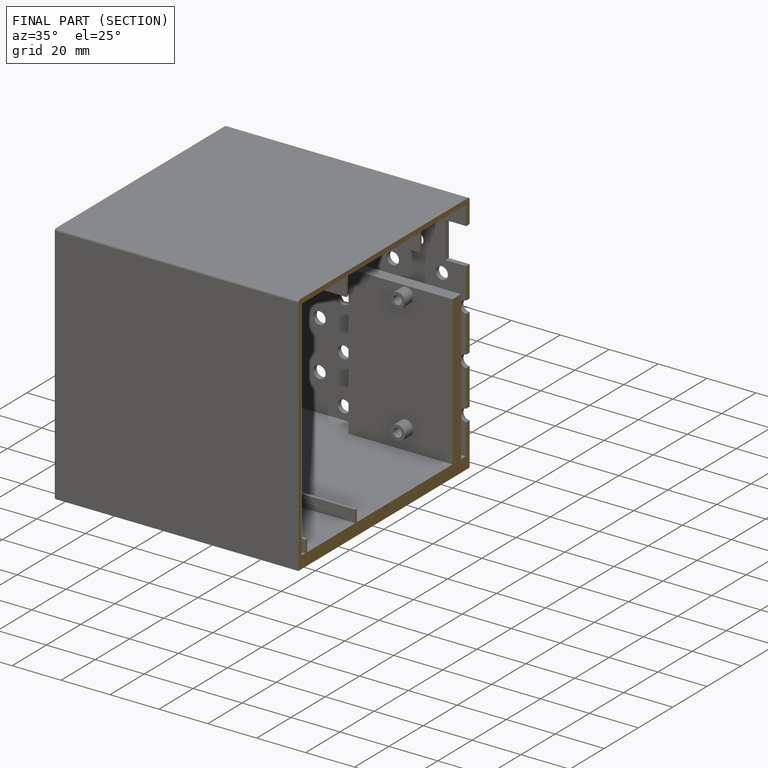
[diagram: finished part — half-section view (interior)]
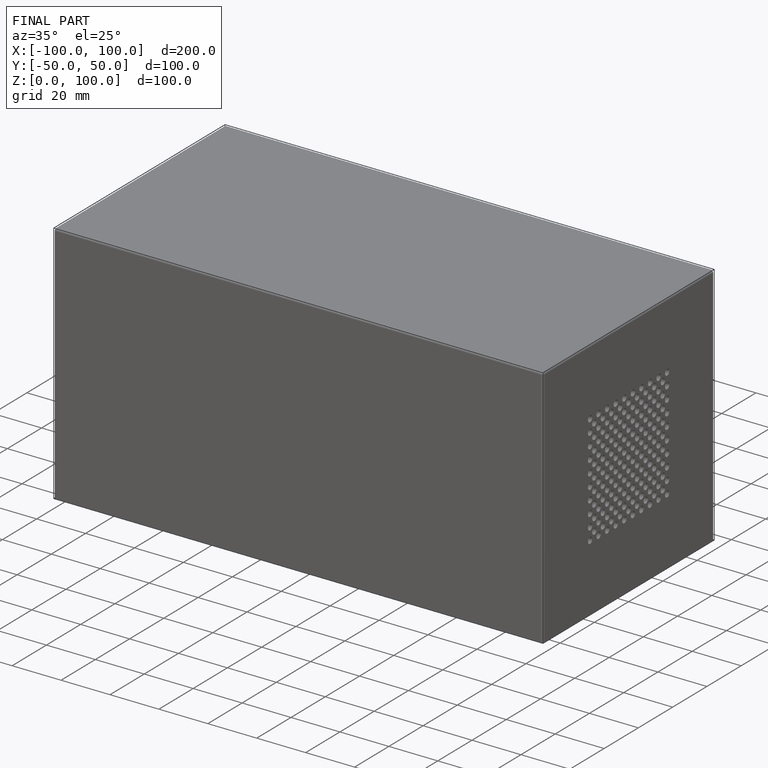
[diagram: finished part — iso view with bounding-box wireframe]
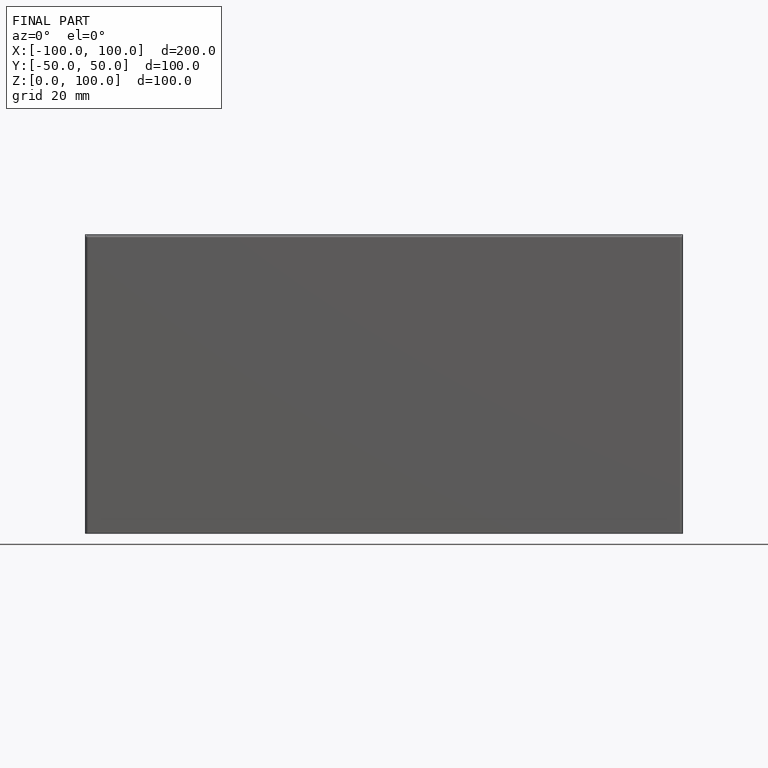
[diagram: finished part — front view with bounding-box wireframe]
